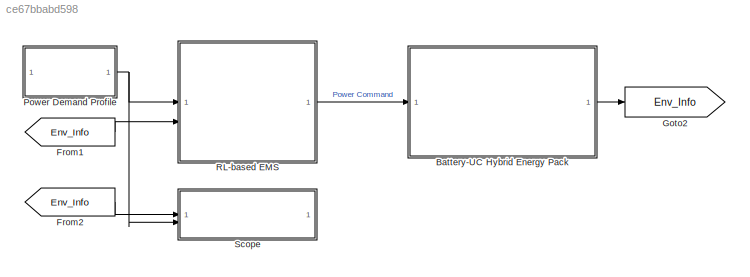
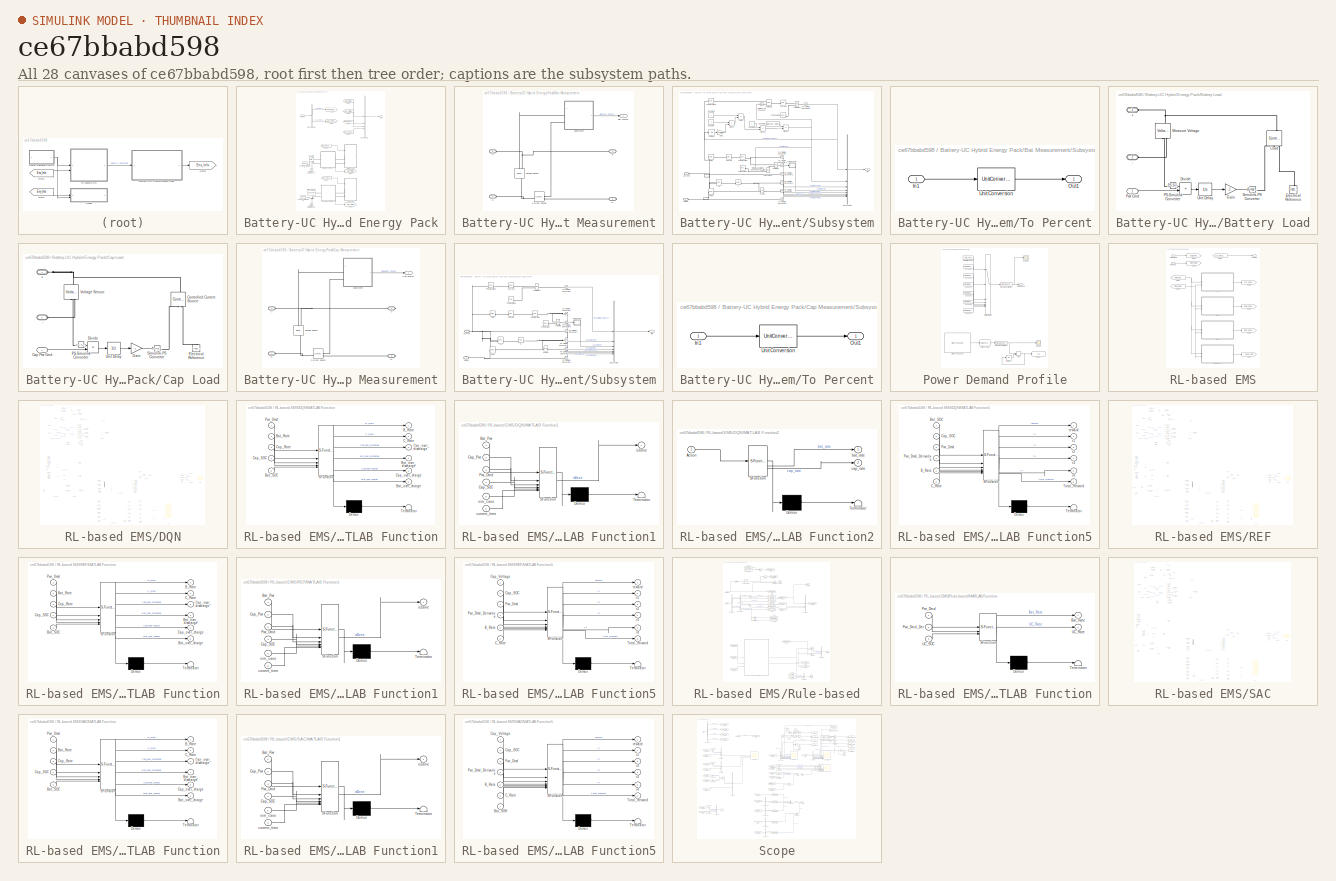
[diagram: thumbnail index - all 28 canvases of the model, root first then tree order]
MODEL slx_ce67bbabd598
KIND model
CONFIG AbsTol = auto
CONFIG EnableMultiTasking = off
CONFIG FixedStep = auto
CONFIG MaxStep = 0.1
CONFIG MinStep = auto
CONFIG RelTol = 1e-3
CONFIG SampleTimeConstraint = Unconstrained
CONFIG SolverName = daessc
CONFIG StartTime = 0.0
CONFIG StopTime = 1800
BLOCK [SubSystem] Battery-UC Hybrid Energy Pack
BLOCK [SubSystem] Battery-UC Hybrid Energy Pack/Bat Measurement
  NameLocation = top
  PortSchema = {"entries":[{"content":{"sides":[{"content":{"connectorIds":["LConn1","LConn2"]},"type":"ConnectorPlacement.EquallySpacedRectSide","uuid":"d922d1f1-019d-451f-8be4-16b01e818775"},{"content":{"connectorIds":["RConn1","RConn2"],"side":"RIGHT"},"type":"ConnectorPlacement.EquallySpacedRectSide","uuid":"6462d40f-4676-4bff-8e25-5b847feb4e24"},{"content":{"side":"TOP"},"type":"ConnectorPlacement.EquallySp...<+395ch>
BLOCK [PMIOPort] Battery-UC Hybrid Energy Pack/Bat Measurement/+1
  Side = Left
BLOCK [PMIOPort] Battery-UC Hybrid Energy Pack/Bat Measurement/+2
  Port = 3
  Side = Right
BLOCK [PMIOPort] Battery-UC Hybrid Energy Pack/Bat Measurement/-1
  Port = 2
  Side = Left
BLOCK [PMIOPort] Battery-UC Hybrid Energy Pack/Bat Measurement/-2
  Port = 4
  Side = Right
BLOCK [Outport] Battery-UC Hybrid Energy Pack/Bat Measurement/Bat Status
BLOCK [Reference] Battery-UC Hybrid Energy Pack/Bat Measurement/Current Sensor  REF=fl_lib/Electrical/Electrical Sensors/Current Sensor
  SourceBlock = fl_lib/Electrical/Electrical Sensors/Current Sensor
  SourceType = Current Sensor
BLOCK [SubSystem] Battery-UC Hybrid Energy Pack/Bat Measurement/Subsystem
BLOCK [BusCreator] Battery-UC Hybrid Energy Pack/Bat Measurement/Subsystem/Bus Creator
  DisplayOption = bar
  InheritFromInputs = on
  Inputs = 8
BLOCK [Reference] Battery-UC Hybrid Energy Pack/Bat Measurement/Subsystem/Charge  REF=fl_lib/Physical Signals/Linear Operators/PS Integrator
  AttributesFormatString = %<x0> [%<x0_unit>]
  SourceBlock = fl_lib/Physical Signals/Linear Operators/PS Integrator
  SourceType = PS Integrator
BLOCK [Reference] Battery-UC Hybrid Energy Pack/Bat Measurement/Subsystem/Charge1  REF=fl_lib/Physical Signals/Linear Operators/PS Integrator
  AttributesFormatString = %<x0> [%<x0_unit>]
  SourceBlock = fl_lib/Physical Signals/Linear Operators/PS Integrator
  SourceType = PS Integrator
BLOCK [Constant] Battery-UC Hybrid Energy Pack/Bat Measurement/Subsystem/Constant
BLOCK [Constant] Battery-UC Hybrid Energy Pack/Bat Measurement/Subsystem/Constant1
BLOCK [Constant] Battery-UC Hybrid Energy Pack/Bat Measurement/Subsystem/Constant2
  Value = Battery.SOH
BLOCK [Constant] Battery-UC Hybrid Energy Pack/Bat Measurement/Subsystem/Constant3
BLOCK [PMIOPort] Battery-UC Hybrid Energy Pack/Bat Measurement/Subsystem/Current
  Port = 2
  Side = Left
BLOCK [Product] Battery-UC Hybrid Energy Pack/Bat Measurement/Subsystem/Divide
  Inputs = */
BLOCK [Reference] Battery-UC Hybrid Energy Pack/Bat Measurement/Subsystem/Gain  REF=fl_lib/Physical Signals/Functions/PS Gain
  AttributesFormatString = %<gain>
  SourceBlock = fl_lib/Physical Signals/Functions/PS Gain
  SourceType = PS Gain
BLOCK [Gain] Battery-UC Hybrid Energy Pack/Bat Measurement/Subsystem/Gain1
  Gain = 0.0005
BLOCK [Reference] Battery-UC Hybrid Energy Pack/Bat Measurement/Subsystem/I^2  REF=fl_lib/Physical Signals/Functions/PS Product
  SourceBlock = fl_lib/Physical Signals/Functions/PS Product
  SourceType = PS Product
BLOCK [Outport] Battery-UC Hybrid Energy Pack/Bat Measurement/Subsystem/Info
BLOCK [Sum] Battery-UC Hybrid Energy Pack/Bat Measurement/Subsystem/Minus
  IconShape = rectangular
BLOCK [Sum] Battery-UC Hybrid Energy Pack/Bat Measurement/Subsystem/Minus1
  IconShape = rectangular
  Inputs = +-
BLOCK [Sum] Battery-UC Hybrid Energy Pack/Bat Measurement/Subsystem/Minus2
  IconShape = rectangular
  Inputs = +-
BLOCK [Reference] Battery-UC Hybrid Energy Pack/Bat Measurement/Subsystem/PS Add  REF=fl_lib/Physical Signals/Functions/PS Add
  SourceBlock = fl_lib/Physical Signals/Functions/PS Add
  SourceType = PS Add
BLOCK [Reference] Battery-UC Hybrid Energy Pack/Bat Measurement/Subsystem/PS Constant  REF=fl_lib/Physical Signals/Sources/PS Constant
  AttributesFormatString = %<constant> [%<constant_unit>]
  NameLocation = left
  SourceBlock = fl_lib/Physical Signals/Sources/PS Constant
  SourceType = PS Constant
BLOCK [Reference] Battery-UC Hybrid Energy Pack/Bat Measurement/Subsystem/PS Constant1  REF=fl_lib/Physical Signals/Sources/PS Constant
  SourceBlock = fl_lib/Physical Signals/Sources/PS Constant
  SourceType = PS Constant
BLOCK [Reference] Battery-UC Hybrid Energy Pack/Bat Measurement/Subsystem/PS Divide  REF=fl_lib/Physical Signals/Functions/PS Divide
  SourceBlock = fl_lib/Physical Signals/Functions/PS Divide
  SourceType = PS Divide
BLOCK [Reference] Battery-UC Hybrid Energy Pack/Bat Measurement/Subsystem/PS Divide1  REF=fl_lib/Physical Signals/Functions/PS Divide
  SourceBlock = fl_lib/Physical Signals/Functions/PS Divide
  SourceType = PS Divide
BLOCK [Reference] Battery-UC Hybrid Energy Pack/Bat Measurement/Subsystem/PS Divide2  REF=fl_lib/Physical Signals/Functions/PS Divide
  SourceBlock = fl_lib/Physical Signals/Functions/PS Divide
  SourceType = PS Divide
BLOCK [Reference] Battery-UC Hybrid Energy Pack/Bat Measurement/Subsystem/PS Product  REF=fl_lib/Physical Signals/Functions/PS Product
  SourceBlock = fl_lib/Physical Signals/Functions/PS Product
  SourceType = PS Product
BLOCK [Reference] Battery-UC Hybrid Energy Pack/Bat Measurement/Subsystem/PS Saturation  REF=fl_lib/Physical Signals/Nonlinear Operators/PS Saturation
  AttributesFormatString = Upper: %<upper_limit>\nLower: %<lower_limit>
  NameLocation = top
  SourceBlock = fl_lib/Physical Signals/Nonlinear Operators/PS Saturation
  SourceType = PS Saturation
BLOCK [Reference] Battery-UC Hybrid Energy Pack/Bat Measurement/Subsystem/PS Saturation2  REF=fl_lib/Physical Signals/Nonlinear Operators/PS Saturation
  SourceBlock = fl_lib/Physical Signals/Nonlinear Operators/PS Saturation
  SourceType = PS Saturation
BLOCK [Reference] Battery-UC Hybrid Energy Pack/Bat Measurement/Subsystem/PS-Simulink Converter  REF=nesl_utility/PS-Simulink
Converter
  AttributesFormatString = %<Unit>
  SourceBlock = nesl_utility/PS-Simulink\nConverter
  SourceType = PS-Simulink\nConverter
BLOCK [Reference] Battery-UC Hybrid Energy Pack/Bat Measurement/Subsystem/PS-Simulink Converter1  REF=nesl_utility/PS-Simulink
Converter
  AttributesFormatString = %<Unit>
  SourceBlock = nesl_utility/PS-Simulink\nConverter
  SourceType = PS-Simulink\nConverter
BLOCK [Reference] Battery-UC Hybrid Energy Pack/Bat Measurement/Subsystem/PS-Simulink Converter2  REF=nesl_utility/PS-Simulink
Converter
  AttributesFormatString = %<Unit>
  SourceBlock = nesl_utility/PS-Simulink\nConverter
  SourceType = PS-Simulink\nConverter
BLOCK [Reference] Battery-UC Hybrid Energy Pack/Bat Measurement/Subsystem/PS-Simulink Converter3  REF=nesl_utility/PS-Simulink
Converter
  AttributesFormatString = %<Unit>
  SourceBlock = nesl_utility/PS-Simulink\nConverter
  SourceType = PS-Simulink\nConverter
BLOCK [Reference] Battery-UC Hybrid Energy Pack/Bat Measurement/Subsystem/PS-Simulink Converter4  REF=nesl_utility/PS-Simulink
Converter
  AttributesFormatString = %<Unit>
  SourceBlock = nesl_utility/PS-Simulink\nConverter
  SourceType = PS-Simulink\nConverter
BLOCK [Reference] Battery-UC Hybrid Energy Pack/Bat Measurement/Subsystem/PS-Simulink Converter5  REF=nesl_utility/PS-Simulink
Converter
  SourceBlock = nesl_utility/PS-Simulink\nConverter
  SourceType = PS-Simulink\nConverter
BLOCK [Reference] Battery-UC Hybrid Energy Pack/Bat Measurement/Subsystem/PS-Simulink Converter6  REF=nesl_utility/PS-Simulink
Converter
  AttributesFormatString = %<Unit>
  SourceBlock = nesl_utility/PS-Simulink\nConverter
  SourceType = PS-Simulink\nConverter
BLOCK [Reference] Battery-UC Hybrid Energy Pack/Bat Measurement/Subsystem/Power  REF=fl_lib/Physical Signals/Functions/PS Product
  SourceBlock = fl_lib/Physical Signals/Functions/PS Product
  SourceType = PS Product
BLOCK [Reference] Battery-UC Hybrid Energy Pack/Bat Measurement/Subsystem/R  REF=fl_lib/Physical Signals/Functions/PS Gain
  AttributesFormatString = %<gain> [%<gain_unit>]
  SourceBlock = fl_lib/Physical Signals/Functions/PS Gain
  SourceType = PS Gain
BLOCK [Reference] Battery-UC Hybrid Energy Pack/Bat Measurement/Subsystem/Simulink-PS Converter  REF=nesl_utility/Simulink-PS
Converter
  SourceBlock = nesl_utility/Simulink-PS\nConverter
  SourceType = Simulink-PS\nConverter
BLOCK [Reference] Battery-UC Hybrid Energy Pack/Bat Measurement/Subsystem/Simulink-PS Converter1  REF=nesl_utility/Simulink-PS
Converter
  SourceBlock = nesl_utility/Simulink-PS\nConverter
  SourceType = Simulink-PS\nConverter
BLOCK [SubSystem] Battery-UC Hybrid Energy Pack/Bat Measurement/Subsystem/To Percent
  ShowPortLabels = none
BLOCK [Inport] Battery-UC Hybrid Energy Pack/Bat Measurement/Subsystem/To Percent/In1
BLOCK [Outport] Battery-UC Hybrid Energy Pack/Bat Measurement/Subsystem/To Percent/Out1
  AttributesFormatString = %<Unit>
  Unit = %
BLOCK [UnitConversion] Battery-UC Hybrid Energy Pack/Bat Measurement/Subsystem/To Percent/Unit Conversion
BLOCK [UnitDelay] Battery-UC Hybrid Energy Pack/Bat Measurement/Subsystem/Unit Delay
  HasFrameUpgradeWarning = on
  SampleTime = -1
BLOCK [PMIOPort] Battery-UC Hybrid Energy Pack/Bat Measurement/Subsystem/Voltage
  Side = Left
BLOCK [Reference] Battery-UC Hybrid Energy Pack/Bat Measurement/Voltage Sensor  REF=fl_lib/Electrical/Electrical Sensors/Voltage Sensor
  NameLocation = right
  SourceBlock = fl_lib/Electrical/Electrical Sensors/Voltage Sensor
  SourceType = Voltage Sensor
BLOCK [SubSystem] Battery-UC Hybrid Energy Pack/Battery Load
  NameLocation = top
BLOCK [PMIOPort] Battery-UC Hybrid Energy Pack/Battery Load/+
  Side = Left
BLOCK [PMIOPort] Battery-UC Hybrid Energy Pack/Battery Load/-
  Port = 2
  Side = Left
BLOCK [Product] Battery-UC Hybrid Energy Pack/Battery Load/Divide
  Inputs = /*
BLOCK [Reference] Battery-UC Hybrid Energy Pack/Battery Load/Electrical Reference  REF=fl_lib/Electrical/Electrical Elements/Electrical Reference
  NameLocation = right
  SourceBlock = fl_lib/Electrical/Electrical Elements/Electrical Reference
  SourceType = Electrical Reference
BLOCK [Gain] Battery-UC Hybrid Energy Pack/Battery Load/Gain
  Gain = -1
BLOCK [Reference] Battery-UC Hybrid Energy Pack/Battery Load/Load  REF=fl_lib/Electrical/Electrical Sources/Controlled Current
Source
  NameLocation = right
  SourceBlock = fl_lib/Electrical/Electrical Sources/Controlled Current\nSource
  SourceType = Controlled Current\nSource
BLOCK [Reference] Battery-UC Hybrid Energy Pack/Battery Load/Measure Voltage  REF=fl_lib/Electrical/Electrical Sensors/Voltage Sensor
  NameLocation = right
  SourceBlock = fl_lib/Electrical/Electrical Sensors/Voltage Sensor
  SourceType = Voltage Sensor
BLOCK [Reference] Battery-UC Hybrid Energy Pack/Battery Load/PS-Simulink Converter  REF=nesl_utility/PS-Simulink
Converter
  SourceBlock = nesl_utility/PS-Simulink\nConverter
  SourceType = PS-Simulink\nConverter
BLOCK [Inport] Battery-UC Hybrid Energy Pack/Battery Load/Pwr Cmd
BLOCK [Reference] Battery-UC Hybrid Energy Pack/Battery Load/Simulink-PS Converter  REF=nesl_utility/Simulink-PS
Converter
  SourceBlock = nesl_utility/Simulink-PS\nConverter
  SourceType = Simulink-PS\nConverter
BLOCK [UnitDelay] Battery-UC Hybrid Energy Pack/Battery Load/Unit Delay
  HasFrameUpgradeWarning = on
  SampleTime = -1
BLOCK [BusCreator] Battery-UC Hybrid Energy Pack/Bus Creator
  DisplayOption = bar
  InheritFromInputs = on
  Inputs = 4
BLOCK [BusSelector] Battery-UC Hybrid Energy Pack/Bus Selector
  OutputSignals = Bat Pwr Cmd,Cap Pwr Cmd
BLOCK [SubSystem] Battery-UC Hybrid Energy Pack/Cap Load
  NameLocation = top
BLOCK [PMIOPort] Battery-UC Hybrid Energy Pack/Cap Load/+
  Side = Left
BLOCK [PMIOPort] Battery-UC Hybrid Energy Pack/Cap Load/-
  Port = 2
  Side = Left
BLOCK [Inport] Battery-UC Hybrid Energy Pack/Cap Load/Cap Pwr Cmd
BLOCK [Reference] Battery-UC Hybrid Energy Pack/Cap Load/Controlled Current Source  REF=fl_lib/Electrical/Electrical Sources/Controlled Current
Source
  NameLocation = right
  SourceBlock = fl_lib/Electrical/Electrical Sources/Controlled Current\nSource
  SourceType = Controlled Current\nSource
BLOCK [Product] Battery-UC Hybrid Energy Pack/Cap Load/Divide
  Inputs = /*
BLOCK [Reference] Battery-UC Hybrid Energy Pack/Cap Load/Electrical Reference  REF=fl_lib/Electrical/Electrical Elements/Electrical Reference
  NameLocation = right
  SourceBlock = fl_lib/Electrical/Electrical Elements/Electrical Reference
  SourceType = Electrical Reference
BLOCK [Gain] Battery-UC Hybrid Energy Pack/Cap Load/Gain
  Gain = -1
BLOCK [Reference] Battery-UC Hybrid Energy Pack/Cap Load/PS-Simulink Converter  REF=nesl_utility/PS-Simulink
Converter
  SourceBlock = nesl_utility/PS-Simulink\nConverter
  SourceType = PS-Simulink\nConverter
BLOCK [Reference] Battery-UC Hybrid Energy Pack/Cap Load/Simulink-PS Converter  REF=nesl_utility/Simulink-PS
Converter
  SourceBlock = nesl_utility/Simulink-PS\nConverter
  SourceType = Simulink-PS\nConverter
BLOCK [UnitDelay] Battery-UC Hybrid Energy Pack/Cap Load/Unit Delay
  HasFrameUpgradeWarning = on
  SampleTime = -1
BLOCK [Reference] Battery-UC Hybrid Energy Pack/Cap Load/Voltage Sensor  REF=fl_lib/Electrical/Electrical Sensors/Voltage Sensor
  NameLocation = right
  SourceBlock = fl_lib/Electrical/Electrical Sensors/Voltage Sensor
  SourceType = Voltage Sensor
BLOCK [SubSystem] Battery-UC Hybrid Energy Pack/Cap Measurement
  NameLocation = top
  PortSchema = {"entries":[{"content":{"sides":[{"content":{"connectorIds":["LConn1","LConn2"]},"type":"ConnectorPlacement.EquallySpacedRectSide","uuid":"d922d1f1-019d-451f-8be4-16b01e818775"},{"content":{"connectorIds":["RConn1","RConn2"],"side":"RIGHT"},"type":"ConnectorPlacement.EquallySpacedRectSide","uuid":"6462d40f-4676-4bff-8e25-5b847feb4e24"},{"content":{"side":"TOP"},"type":"ConnectorPlacement.EquallySp...<+395ch>
BLOCK [PMIOPort] Battery-UC Hybrid Energy Pack/Cap Measurement/+1
  Side = Left
BLOCK [PMIOPort] Battery-UC Hybrid Energy Pack/Cap Measurement/+2
  Port = 3
  Side = Right
BLOCK [PMIOPort] Battery-UC Hybrid Energy Pack/Cap Measurement/-1
  Port = 2
  Side = Left
BLOCK [PMIOPort] Battery-UC Hybrid Energy Pack/Cap Measurement/-2
  Port = 4
  Side = Right
BLOCK [Outport] Battery-UC Hybrid Energy Pack/Cap Measurement/Cap Status
BLOCK [Reference] Battery-UC Hybrid Energy Pack/Cap Measurement/Current Sensor  REF=fl_lib/Electrical/Electrical Sensors/Current Sensor
  SourceBlock = fl_lib/Electrical/Electrical Sensors/Current Sensor
  SourceType = Current Sensor
BLOCK [SubSystem] Battery-UC Hybrid Energy Pack/Cap Measurement/Subsystem
BLOCK [BusCreator] Battery-UC Hybrid Energy Pack/Cap Measurement/Subsystem/Bus Creator
  DisplayOption = bar
  InheritFromInputs = on
  Inputs = 7
BLOCK [Reference] Battery-UC Hybrid Energy Pack/Cap Measurement/Subsystem/Charge  REF=fl_lib/Physical Signals/Linear Operators/PS Integrator
  AttributesFormatString = %<x0> [%<x0_unit>]
  SourceBlock = fl_lib/Physical Signals/Linear Operators/PS Integrator
  SourceType = PS Integrator
BLOCK [Reference] Battery-UC Hybrid Energy Pack/Cap Measurement/Subsystem/Charge1  REF=fl_lib/Physical Signals/Linear Operators/PS Integrator
  AttributesFormatString = %<x0> [%<x0_unit>]
  SourceBlock = fl_lib/Physical Signals/Linear Operators/PS Integrator
  SourceType = PS Integrator
BLOCK [PMIOPort] Battery-UC Hybrid Energy Pack/Cap Measurement/Subsystem/Current
  Port = 2
  Side = Left
BLOCK [Reference] Battery-UC Hybrid Energy Pack/Cap Measurement/Subsystem/Gain  REF=fl_lib/Physical Signals/Functions/PS Gain
  AttributesFormatString = %<gain>
  SourceBlock = fl_lib/Physical Signals/Functions/PS Gain
  SourceType = PS Gain
BLOCK [Reference] Battery-UC Hybrid Energy Pack/Cap Measurement/Subsystem/I^2  REF=fl_lib/Physical Signals/Functions/PS Product
  SourceBlock = fl_lib/Physical Signals/Functions/PS Product
  SourceType = PS Product
BLOCK [Outport] Battery-UC Hybrid Energy Pack/Cap Measurement/Subsystem/Info
BLOCK [Reference] Battery-UC Hybrid Energy Pack/Cap Measurement/Subsystem/PS Add  REF=fl_lib/Physical Signals/Functions/PS Add
  SourceBlock = fl_lib/Physical Signals/Functions/PS Add
  SourceType = PS Add
BLOCK [Reference] Battery-UC Hybrid Energy Pack/Cap Measurement/Subsystem/PS Constant  REF=fl_lib/Physical Signals/Sources/PS Constant
  AttributesFormatString = %<constant> [%<constant_unit>]
  NameLocation = left
  SourceBlock = fl_lib/Physical Signals/Sources/PS Constant
  SourceType = PS Constant
BLOCK [Reference] Battery-UC Hybrid Energy Pack/Cap Measurement/Subsystem/PS Constant1  REF=fl_lib/Physical Signals/Sources/PS Constant
  AttributesFormatString = %<constant> [%<constant_unit>]
  NameLocation = left
  SourceBlock = fl_lib/Physical Signals/Sources/PS Constant
  SourceType = PS Constant
BLOCK [Reference] Battery-UC Hybrid Energy Pack/Cap Measurement/Subsystem/PS Divide  REF=fl_lib/Physical Signals/Functions/PS Divide
  SourceBlock = fl_lib/Physical Signals/Functions/PS Divide
  SourceType = PS Divide
BLOCK [Reference] Battery-UC Hybrid Energy Pack/Cap Measurement/Subsystem/PS Divide2  REF=fl_lib/Physical Signals/Functions/PS Divide
  SourceBlock = fl_lib/Physical Signals/Functions/PS Divide
  SourceType = PS Divide
BLOCK [Reference] Battery-UC Hybrid Energy Pack/Cap Measurement/Subsystem/PS Saturation  REF=fl_lib/Physical Signals/Nonlinear Operators/PS Saturation
  AttributesFormatString = Upper: %<upper_limit>\nLower: %<lower_limit>
  NameLocation = top
  SourceBlock = fl_lib/Physical Signals/Nonlinear Operators/PS Saturation
  SourceType = PS Saturation
BLOCK [Reference] Battery-UC Hybrid Energy Pack/Cap Measurement/Subsystem/PS Saturation2  REF=fl_lib/Physical Signals/Nonlinear Operators/PS Saturation
  SourceBlock = fl_lib/Physical Signals/Nonlinear Operators/PS Saturation
  SourceType = PS Saturation
BLOCK [Reference] Battery-UC Hybrid Energy Pack/Cap Measurement/Subsystem/PS-Simulink Converter  REF=nesl_utility/PS-Simulink
Converter
  AttributesFormatString = %<Unit>
  SourceBlock = nesl_utility/PS-Simulink\nConverter
  SourceType = PS-Simulink\nConverter
BLOCK [Reference] Battery-UC Hybrid Energy Pack/Cap Measurement/Subsystem/PS-Simulink Converter1  REF=nesl_utility/PS-Simulink
Converter
  AttributesFormatString = %<Unit>
  SourceBlock = nesl_utility/PS-Simulink\nConverter
  SourceType = PS-Simulink\nConverter
BLOCK [Reference] Battery-UC Hybrid Energy Pack/Cap Measurement/Subsystem/PS-Simulink Converter2  REF=nesl_utility/PS-Simulink
Converter
  AttributesFormatString = %<Unit>
  SourceBlock = nesl_utility/PS-Simulink\nConverter
  SourceType = PS-Simulink\nConverter
BLOCK [Reference] Battery-UC Hybrid Energy Pack/Cap Measurement/Subsystem/PS-Simulink Converter3  REF=nesl_utility/PS-Simulink
Converter
  AttributesFormatString = %<Unit>
  SourceBlock = nesl_utility/PS-Simulink\nConverter
  SourceType = PS-Simulink\nConverter
BLOCK [Reference] Battery-UC Hybrid Energy Pack/Cap Measurement/Subsystem/PS-Simulink Converter4  REF=nesl_utility/PS-Simulink
Converter
  AttributesFormatString = %<Unit>
  SourceBlock = nesl_utility/PS-Simulink\nConverter
  SourceType = PS-Simulink\nConverter
BLOCK [Reference] Battery-UC Hybrid Energy Pack/Cap Measurement/Subsystem/PS-Simulink Converter5  REF=nesl_utility/PS-Simulink
Converter
  SourceBlock = nesl_utility/PS-Simulink\nConverter
  SourceType = PS-Simulink\nConverter
BLOCK [Reference] Battery-UC Hybrid Energy Pack/Cap Measurement/Subsystem/PS-Simulink Converter6  REF=nesl_utility/PS-Simulink
Converter
  AttributesFormatString = %<Unit>
  SourceBlock = nesl_utility/PS-Simulink\nConverter
  SourceType = PS-Simulink\nConverter
BLOCK [Reference] Battery-UC Hybrid Energy Pack/Cap Measurement/Subsystem/Power  REF=fl_lib/Physical Signals/Functions/PS Product
  SourceBlock = fl_lib/Physical Signals/Functions/PS Product
  SourceType = PS Product
BLOCK [Reference] Battery-UC Hybrid Energy Pack/Cap Measurement/Subsystem/R  REF=fl_lib/Physical Signals/Functions/PS Gain
  AttributesFormatString = %<gain> [%<gain_unit>]
  SourceBlock = fl_lib/Physical Signals/Functions/PS Gain
  SourceType = PS Gain
BLOCK [SubSystem] Battery-UC Hybrid Energy Pack/Cap Measurement/Subsystem/To Percent
  ShowPortLabels = none
BLOCK [Inport] Battery-UC Hybrid Energy Pack/Cap Measurement/Subsystem/To Percent/In1
BLOCK [Outport] Battery-UC Hybrid Energy Pack/Cap Measurement/Subsystem/To Percent/Out1
  AttributesFormatString = %<Unit>
  Unit = %
BLOCK [UnitConversion] Battery-UC Hybrid Energy Pack/Cap Measurement/Subsystem/To Percent/Unit Conversion
BLOCK [PMIOPort] Battery-UC Hybrid Energy Pack/Cap Measurement/Subsystem/Voltage
  Side = Left
BLOCK [Reference] Battery-UC Hybrid Energy Pack/Cap Measurement/Voltage Sensor  REF=fl_lib/Electrical/Electrical Sensors/Voltage Sensor
  NameLocation = right
  SourceBlock = fl_lib/Electrical/Electrical Sensors/Voltage Sensor
  SourceType = Voltage Sensor
BLOCK [Reference] Battery-UC Hybrid Energy Pack/Electrical Reference1  REF=fl_lib/Electrical/Electrical Elements/Electrical Reference
  NameLocation = right
  SourceBlock = fl_lib/Electrical/Electrical Elements/Electrical Reference
  SourceType = Electrical Reference
BLOCK [Reference] Battery-UC Hybrid Energy Pack/Electrical Reference2  REF=fl_lib/Electrical/Electrical Elements/Electrical Reference
  NameLocation = right
  SourceBlock = fl_lib/Electrical/Electrical Elements/Electrical Reference
  SourceType = Electrical Reference
BLOCK [From] Battery-UC Hybrid Energy Pack/From1
  GotoTag = Cap_Pwr_Cmd
BLOCK [From] Battery-UC Hybrid Energy Pack/From2
  GotoTag = Bat_Status
BLOCK [From] Battery-UC Hybrid Energy Pack/From3
  GotoTag = Bat_Pwr_Cmd
BLOCK [From] Battery-UC Hybrid Energy Pack/From4
  GotoTag = Bat_Pwr_Cmd
BLOCK [From] Battery-UC Hybrid Energy Pack/From5
  GotoTag = Cap_Pwr_Cmd
BLOCK [From] Battery-UC Hybrid Energy Pack/From6
  GotoTag = Cap_Status
BLOCK [Goto] Battery-UC Hybrid Energy Pack/Goto
  GotoTag = Bat_Pwr_Cmd
BLOCK [Goto] Battery-UC Hybrid Energy Pack/Goto1
  GotoTag = Cap_Pwr_Cmd
BLOCK [Goto] Battery-UC Hybrid Energy Pack/Goto2
  GotoTag = Bat_Status
BLOCK [Goto] Battery-UC Hybrid Energy Pack/Goto3
  GotoTag = Cap_Status
BLOCK [Reference] Battery-UC Hybrid Energy Pack/HV Battery  REF=batteryecm_lib/Battery
  NameLocation = left
  SourceBlock = batteryecm_lib/Battery
  SourceType = Battery
BLOCK [Outport] Battery-UC Hybrid Energy Pack/Info
BLOCK [Inport] Battery-UC Hybrid Energy Pack/Pwr Cmd
BLOCK [Reference] Battery-UC Hybrid Energy Pack/Solver Configuration  REF=nesl_utility/Solver
Configuration
  SourceBlock = nesl_utility/Solver\nConfiguration
  SourceType = Solver\nConfiguration
BLOCK [Reference] Battery-UC Hybrid Energy Pack/Solver Configuration1  REF=nesl_utility/Solver
Configuration
  SourceBlock = nesl_utility/Solver\nConfiguration
  SourceType = Solver\nConfiguration
BLOCK [Reference] Battery-UC Hybrid Energy Pack/Ultracapacitor  REF=fl_lib/Electrical/Electrical Elements/Capacitor
  NameLocation = left
  SourceBlock = fl_lib/Electrical/Electrical Elements/Capacitor
  SourceType = Capacitor
BLOCK [From] From1
  GotoTag = Env_Info
BLOCK [From] From2
  GotoTag = Env_Info
BLOCK [Goto] Goto2
  GotoTag = Env_Info
BLOCK [SubSystem] Power Demand Profile
BLOCK [FromWorkspace] Power Demand Profile/1022 sec
  Interpolate = off
  OutputAfterFinalValue = Setting to zero
  VariableName = WLTP_Class_1
  ZeroCross = off
BLOCK [FromWorkspace] Power Demand Profile/1369 sec
  Interpolate = off
  OutputAfterFinalValue = Setting to zero
  VariableName = HUDDS
  ZeroCross = off
BLOCK [FromWorkspace] Power Demand Profile/1372 sec
  Interpolate = off
  OutputAfterFinalValue = Setting to zero
  VariableName = FTP72
  ZeroCross = off
BLOCK [FromWorkspace] Power Demand Profile/1477 sec
  Interpolate = off
  OutputAfterFinalValue = Setting to zero
  VariableName = WLTP_Class_2
  ZeroCross = off
BLOCK [FromWorkspace] Power Demand Profile/1800 sec
  Interpolate = off
  OutputAfterFinalValue = Setting to zero
  VariableName = WLTP_Class_3
  ZeroCross = off
BLOCK [FromWorkspace] Power Demand Profile/2474 sec
  Interpolate = off
  OutputAfterFinalValue = Setting to zero
  VariableName = FTP75
  ZeroCross = off
BLOCK [Display] Power Demand Profile/Display
  Decimation = 1
BLOCK [Reference] Power Demand Profile/Drive Cycle Source  REF=autolibshared/Drive Cycle Source
  AttributesFormatString = %<cycleVar> (%<tfinal>)
  LibrarySourceBlock = autolibscenario/Drive Cycle Source
  SourceBlock = autolibshared/Drive Cycle Source
  SourceType = Drive Cycle Source
BLOCK [MinMax] Power Demand Profile/Max
  Function = max
  Inputs = 2
BLOCK [MultiPortSwitch] Power Demand Profile/Multiport Switch
  InputSameDT = off
  Inputs = 6
  SaturateOnIntegerOverflow = off
BLOCK [Outport] Power Demand Profile/Pwr Demand
BLOCK [Scope] Power Demand Profile/Scope
  Floating = off
  NumInputPorts = 1
  ScopeSpecificationString = Simulink.scopes.TimeScopeBlockCfg('CurrentConfiguration', extmgr.ConfigurationSet(extmgr.Configuration('Core','General UI',true),extmgr.Configuration('Core','Source UI',true),extmgr.Configuration('Sources','WiredSimulink',true,'DataLoggingVariableName','Speed_Profile','DataLogging',true,'DataLoggingSaveFormat','StructureWithTime'),extmgr.Configuration('Visuals','Time Domain',true,'SerializedDispla...<+1463ch>
BLOCK [Scope] Power Demand Profile/Scope1
  Floating = off
  NumInputPorts = 1
  ScopeSpecificationString = Simulink.scopes.TimeScopeBlockCfg('CurrentConfiguration', extmgr.ConfigurationSet(extmgr.Configuration('Core','General UI',true),extmgr.Configuration('Core','Source UI',true),extmgr.Configuration('Sources','WiredSimulink',true,'DataLoggingVariableName','Pwr_Dmd','DataLogging',true,'DataLoggingSaveFormat','StructureWithTime'),extmgr.Configuration('Visuals','Time Domain',true,'SerializedDisplays',{s...<+1465ch>
BLOCK [SignalSpecification] Power Demand Profile/Signal Specification
  Unit = W
BLOCK [SignalSpecification] Power Demand Profile/Signal Specification1
  Unit = km/h
BLOCK [Constant] Power Demand Profile/Simulation Case
  Value = sim_case
BLOCK [UnitConversion] Power Demand Profile/Unit Conversion
BLOCK [UnitDelay] Power Demand Profile/Unit Delay
  HasFrameUpgradeWarning = on
  SampleTime = -1
BLOCK [SubSystem] RL-based EMS
BLOCK [SubSystem] RL-based EMS/DQN
  Commented = on
BLOCK [Reference] RL-based EMS/DQN/Agent  REF=rllib/RL Agent
  SourceBlock = rllib/RL Agent
  SourceType = RL Agent
BLOCK [BusCreator] RL-based EMS/DQN/Bus Creator
  DisplayOption = bar
  InheritFromInputs = on
  Inputs = 3
BLOCK [BusCreator] RL-based EMS/DQN/Bus Creator1
  DisplayOption = bar
  InheritFromInputs = on
  Inputs = 2
BLOCK [BusCreator] RL-based EMS/DQN/Bus Creator2
  DisplayOption = bar
  InheritFromInputs = on
  Inputs = 2
BLOCK [BusCreator] RL-based EMS/DQN/Bus Creator3
  DisplayOption = bar
  InheritFromInputs = on
  Inputs = 2
BLOCK [BusCreator] RL-based EMS/DQN/Bus Creator4
  DisplayOption = bar
  InheritFromInputs = on
  Inputs = 2
BLOCK [BusCreator] RL-based EMS/DQN/Bus Creator6
  DisplayOption = bar
  InheritFromInputs = on
  Inputs = 2
BLOCK [BusSelector] RL-based EMS/DQN/Bus Selector
  OutputSignals = Battery Status,Capacitor Status
BLOCK [BusSelector] RL-based EMS/DQN/Bus Selector1
  OutputSignals = HV Battery SOC,HV Battery Power,HV Battery SOH
BLOCK [BusSelector] RL-based EMS/DQN/Bus Selector2
  OutputSignals = Capacitor SOC,Capacitor Power,Capacitor Discharge Cycle
BLOCK [Clock] RL-based EMS/DQN/Clock
BLOCK [Constant] RL-based EMS/DQN/Constant1
  Value = sim_case
BLOCK [Constant] RL-based EMS/DQN/Constant2
  Value = Max_Power
BLOCK [Demux] RL-based EMS/DQN/Demux
  Outputs = 2
BLOCK [Derivative] RL-based EMS/DQN/Derivative
BLOCK [Product] RL-based EMS/DQN/Divide
  Inputs = */
BLOCK [From] RL-based EMS/DQN/From
  GotoTag = Power_Demand
BLOCK [Inport] RL-based EMS/DQN/From Plant
  Port = 2
BLOCK [From] RL-based EMS/DQN/From1
  GotoTag = B_Rate
BLOCK [From] RL-based EMS/DQN/From10
  GotoTag = Bat_Pwr
BLOCK [From] RL-based EMS/DQN/From11
  GotoTag = Cap_Pwr
BLOCK [From] RL-based EMS/DQN/From12
  GotoTag = Power_Demand
BLOCK [From] RL-based EMS/DQN/From13
  GotoTag = isDone
BLOCK [From] RL-based EMS/DQN/From14
  GotoTag = Action
BLOCK [From] RL-based EMS/DQN/From15
  GotoTag = Reward
BLOCK [From] RL-based EMS/DQN/From16
  GotoTag = C_Rate
BLOCK [From] RL-based EMS/DQN/From17
  GotoTag = Bat_SOC
BLOCK [From] RL-based EMS/DQN/From18
  GotoTag = Observation
BLOCK [From] RL-based EMS/DQN/From19
  GotoTag = RL_Pwr_Split
BLOCK [From] RL-based EMS/DQN/From2
  GotoTag = Cap_SOC
BLOCK [From] RL-based EMS/DQN/From20
  GotoTag = Bat_SOC
BLOCK [From] RL-based EMS/DQN/From21
  GotoTag = Pwr_Dmd_Norm
BLOCK [From] RL-based EMS/DQN/From22
  GotoTag = r1
BLOCK [From] RL-based EMS/DQN/From23
  GotoTag = r5
BLOCK [From] RL-based EMS/DQN/From24
  GotoTag = r2
BLOCK [From] RL-based EMS/DQN/From25
  GotoTag = r3
BLOCK [From] RL-based EMS/DQN/From26
  GotoTag = r4
BLOCK [From] RL-based EMS/DQN/From27
  GotoTag = Pwr_Derivative
BLOCK [From] RL-based EMS/DQN/From3
  GotoTag = Power_Demand
BLOCK [From] RL-based EMS/DQN/From31
  GotoTag = B_Rate
BLOCK [From] RL-based EMS/DQN/From32
  GotoTag = C_Rate
BLOCK [From] RL-based EMS/DQN/From4
  GotoTag = RL_Cap_Rate
BLOCK [From] RL-based EMS/DQN/From5
  GotoTag = RL_Bat_Rate
BLOCK [From] RL-based EMS/DQN/From59
  GotoTag = Cap_SOC
BLOCK [From] RL-based EMS/DQN/From6
  GotoTag = Bat_SOC
BLOCK [From] RL-based EMS/DQN/From61
  GotoTag = Power_Demand
BLOCK [From] RL-based EMS/DQN/From7
  GotoTag = Cap_SOC
BLOCK [From] RL-based EMS/DQN/From8
  GotoTag = Cap_SOC
BLOCK [From] RL-based EMS/DQN/From9
  GotoTag = Reward
BLOCK [Gain] RL-based EMS/DQN/Gain
  Gain = 0.01
BLOCK [Gain] RL-based EMS/DQN/Gain1
  Gain = 0.01
BLOCK [Goto] RL-based EMS/DQN/Goto
  GotoTag = Power_Demand
BLOCK [Goto] RL-based EMS/DQN/Goto1
  GotoTag = Bat_SOC
BLOCK [Goto] RL-based EMS/DQN/Goto10
  GotoTag = Bat_over_discharge
BLOCK [Goto] RL-based EMS/DQN/Goto11
  GotoTag = Cap_over_charge
BLOCK [Goto] RL-based EMS/DQN/Goto12
  GotoTag = Bat_over_charge
BLOCK [Goto] RL-based EMS/DQN/Goto13
  GotoTag = Cap_Discharge_Avg
BLOCK [Goto] RL-based EMS/DQN/Goto14
  GotoTag = Bat_SOH
BLOCK [Goto] RL-based EMS/DQN/Goto15
  GotoTag = Cap_Cycle
BLOCK [Goto] RL-based EMS/DQN/Goto16
  GotoTag = Cap_Charge_Avg
BLOCK [Goto] RL-based EMS/DQN/Goto17
  GotoTag = r3
BLOCK [Goto] RL-based EMS/DQN/Goto18
  GotoTag = r4
BLOCK [Goto] RL-based EMS/DQN/Goto19
  GotoTag = Pwr_Dmd_Norm
BLOCK [Goto] RL-based EMS/DQN/Goto2
  GotoTag = Cap_SOC
BLOCK [Goto] RL-based EMS/DQN/Goto20
  GotoTag = r5
BLOCK [Goto] RL-based EMS/DQN/Goto21
  GotoTag = Pwr_Derivative
BLOCK [Goto] RL-based EMS/DQN/Goto24
  GotoTag = r2
BLOCK [Goto] RL-based EMS/DQN/Goto25
  GotoTag = B_Rate
BLOCK [Goto] RL-based EMS/DQN/Goto26
  GotoTag = C_Rate
BLOCK [Goto] RL-based EMS/DQN/Goto28
  GotoTag = Reward
BLOCK [Goto] RL-based EMS/DQN/Goto29
  GotoTag = r1
BLOCK [Goto] RL-based EMS/DQN/Goto3
  GotoTag = Observation
BLOCK [Goto] RL-based EMS/DQN/Goto30
  GotoTag = RL_Bat_Rate
BLOCK [Goto] RL-based EMS/DQN/Goto31
  GotoTag = RL_Cap_Rate
BLOCK [Goto] RL-based EMS/DQN/Goto4
  GotoTag = Bat_Pwr
BLOCK [Goto] RL-based EMS/DQN/Goto5
  GotoTag = Cap_Pwr
BLOCK [Goto] RL-based EMS/DQN/Goto6
  GotoTag = RL_Pwr_Split
BLOCK [Goto] RL-based EMS/DQN/Goto7
  GotoTag = isDone
BLOCK [Goto] RL-based EMS/DQN/Goto8
  GotoTag = Action
BLOCK [Goto] RL-based EMS/DQN/Goto9
  GotoTag = Cap_over_discharge
BLOCK [SubSystem] RL-based EMS/DQN/MATLAB Function
  ErrorFcn = Stateflow.Translate.translate
  LibrarySourceBlock = simulink/User-Defined\nFunctions/MATLAB Function
  PermitHierarchicalResolution = ExplicitOnly
  SFBlockType = MATLAB Function
  TreatAsAtomicUnit = on
BLOCK [Demux] RL-based EMS/DQN/MATLAB Function/ Demux 
  Outputs = 1
BLOCK [S-Function] RL-based EMS/DQN/MATLAB Function/ SFunction 
  EnableBusSupport = on
  FunctionName = sf_sfun
  PortCounts = [5 7]
  SFcnIsStateOwnerBlock = off
  SFunctionDeploymentMode = off
  Tag = Stateflow S-Function 1
BLOCK [Terminator] RL-based EMS/DQN/MATLAB Function/ Terminator 
BLOCK [Outport] RL-based EMS/DQN/MATLAB Function/B_Rate
BLOCK [Inport] RL-based EMS/DQN/MATLAB Function/Bat_Rate
  Port = 2
BLOCK [Inport] RL-based EMS/DQN/MATLAB Function/Bat_SOC
  Port = 5
BLOCK [Outport] RL-based EMS/DQN/MATLAB Function/Bat_over_charge
  Port = 6
BLOCK [Outport] RL-based EMS/DQN/MATLAB Function/Bat_over_discharge
  Port = 4
BLOCK [Outport] RL-based EMS/DQN/MATLAB Function/C_Rate
  Port = 2
BLOCK [Inport] RL-based EMS/DQN/MATLAB Function/Cap_Rate
  Port = 3
BLOCK [Inport] RL-based EMS/DQN/MATLAB Function/Cap_SOC
  Port = 4
BLOCK [Outport] RL-based EMS/DQN/MATLAB Function/Cap_over_charge
  Port = 5
BLOCK [Outport] RL-based EMS/DQN/MATLAB Function/Cap_over_discharge
  Port = 3
BLOCK [Inport] RL-based EMS/DQN/MATLAB Function/Pwr_Dmd
BLOCK [SubSystem] RL-based EMS/DQN/MATLAB Function1
  ErrorFcn = Stateflow.Translate.translate
  LibrarySourceBlock = simulink/User-Defined\nFunctions/MATLAB Function
  PermitHierarchicalResolution = ExplicitOnly
  SFBlockType = MATLAB Function
  TreatAsAtomicUnit = on
BLOCK [Demux] RL-based EMS/DQN/MATLAB Function1/ Demux 
  Outputs = 1
BLOCK [S-Function] RL-based EMS/DQN/MATLAB Function1/ SFunction 
  EnableBusSupport = on
  FunctionName = sf_sfun
  PortCounts = [6 2]
  SFcnIsStateOwnerBlock = off
  SFunctionDeploymentMode = off
  Tag = Stateflow S-Function 2
BLOCK [Terminator] RL-based EMS/DQN/MATLAB Function1/ Terminator 
BLOCK [Inport] RL-based EMS/DQN/MATLAB Function1/Bat_Pwr
BLOCK [Inport] RL-based EMS/DQN/MATLAB Function1/Cap_Pwr
  Port = 2
BLOCK [Inport] RL-based EMS/DQN/MATLAB Function1/Cap_SOC
  Port = 4
BLOCK [Inport] RL-based EMS/DQN/MATLAB Function1/Pwr_Dmd
  Port = 3
BLOCK [Inport] RL-based EMS/DQN/MATLAB Function1/current_time
  Port = 6
BLOCK [Outport] RL-based EMS/DQN/MATLAB Function1/isDone
BLOCK [Inport] RL-based EMS/DQN/MATLAB Function1/sim_case
  Port = 5
BLOCK [SubSystem] RL-based EMS/DQN/MATLAB Function2
  ErrorFcn = Stateflow.Translate.translate
  LibrarySourceBlock = simulink/User-Defined\nFunctions/MATLAB Function
  PermitHierarchicalResolution = ExplicitOnly
  SFBlockType = MATLAB Function
  TreatAsAtomicUnit = on
BLOCK [Demux] RL-based EMS/DQN/MATLAB Function2/ Demux 
  Outputs = 1
BLOCK [S-Function] RL-based EMS/DQN/MATLAB Function2/ SFunction 
  EnableBusSupport = on
  FunctionName = sf_sfun
  PortCounts = [1 3]
  SFcnIsStateOwnerBlock = off
  SFunctionDeploymentMode = off
  Tag = Stateflow S-Function 4
BLOCK [Terminator] RL-based EMS/DQN/MATLAB Function2/ Terminator 
BLOCK [Inport] RL-based EMS/DQN/MATLAB Function2/Action
BLOCK [Outport] RL-based EMS/DQN/MATLAB Function2/bat_rate
BLOCK [Outport] RL-based EMS/DQN/MATLAB Function2/cap_rate
  Port = 2
BLOCK [SubSystem] RL-based EMS/DQN/MATLAB Function5
  ErrorFcn = Stateflow.Translate.translate
  LibrarySourceBlock = simulink/User-Defined\nFunctions/MATLAB Function
  PermitHierarchicalResolution = ExplicitOnly
  SFBlockType = MATLAB Function
  TreatAsAtomicUnit = on
BLOCK [Demux] RL-based EMS/DQN/MATLAB Function5/ Demux 
  Outputs = 1
BLOCK [S-Function] RL-based EMS/DQN/MATLAB Function5/ SFunction 
  EnableBusSupport = on
  FunctionName = sf_sfun
  PortCounts = [6 7]
  SFcnIsStateOwnerBlock = off
  SFunctionDeploymentMode = off
  Tag = Stateflow S-Function 3
BLOCK [Terminator] RL-based EMS/DQN/MATLAB Function5/ Terminator 
BLOCK [Inport] RL-based EMS/DQN/MATLAB Function5/B_Rate
  Port = 5
BLOCK [Inport] RL-based EMS/DQN/MATLAB Function5/Bat_SOC
BLOCK [Inport] RL-based EMS/DQN/MATLAB Function5/C_Rate
  Port = 6
BLOCK [Inport] RL-based EMS/DQN/MATLAB Function5/Cap_SOC
  Port = 2
BLOCK [Inport] RL-based EMS/DQN/MATLAB Function5/Pwr_Dmd
  Port = 3
BLOCK [Inport] RL-based EMS/DQN/MATLAB Function5/Pwr_Dmd_Derivative
  Port = 4
BLOCK [Outport] RL-based EMS/DQN/MATLAB Function5/Total_Reward
  Port = 6
BLOCK [Outport] RL-based EMS/DQN/MATLAB Function5/r1
  Port = 2
BLOCK [Outport] RL-based EMS/DQN/MATLAB Function5/r2
  Port = 3
BLOCK [Outport] RL-based EMS/DQN/MATLAB Function5/r3
  Port = 4
BLOCK [Outport] RL-based EMS/DQN/MATLAB Function5/r4
  Port = 5
BLOCK [Outport] RL-based EMS/DQN/MATLAB Function5/reward
BLOCK [Reference] RL-based EMS/DQN/Moving Average1  REF=dspstat3/Moving
Average
  SourceBlock = dspstat3/Moving\nAverage
  SourceType = dsp.simulink.MovingAverage
BLOCK [Product] RL-based EMS/DQN/Product
BLOCK [Product] RL-based EMS/DQN/Product1
BLOCK [Outport] RL-based EMS/DQN/Pwr Cmd
BLOCK [Scope] RL-based EMS/DQN/Pwr Split
  Floating = off
  NumInputPorts = 2
  ScopeSpecificationString = Simulink.scopes.TimeScopeBlockCfg('CurrentConfiguration', extmgr.ConfigurationSet(extmgr.Configuration('Core','General UI',true),extmgr.Configuration('Core','Source UI',true),extmgr.Configuration('Sources','WiredSimulink',true,'DataLoggingVariableName','ScopeData2'),extmgr.Configuration('Visuals','Time Domain',true,'SerializedDisplays',{struct('MinYLimReal','-0.125','MaxYLimReal','1.125','YLabelRe...<+2101ch>
BLOCK [Saturate] RL-based EMS/DQN/Saturation1
  LowerLimit = 0
  UpperLimit = 200000
BLOCK [Saturate] RL-based EMS/DQN/Saturation2
  LowerLimit = 0
  UpperLimit = 200000
BLOCK [Saturate] RL-based EMS/DQN/Saturation3
  LowerLimit = -200000
  UpperLimit = 0
BLOCK [Scope] RL-based EMS/DQN/Scope
  Floating = off
  NumInputPorts = 1
  ScopeSpecificationString = Simulink.scopes.TimeScopeBlockCfg('CurrentConfiguration', extmgr.ConfigurationSet(extmgr.Configuration('Core','General UI',true),extmgr.Configuration('Core','Source UI',true),extmgr.Configuration('Sources','WiredSimulink',true,'DataLoggingVariableName','ScopeData1'),extmgr.Configuration('Visuals','Time Domain',true,'SerializedDisplays',{struct('MinYLimReal','-75227.23587','MaxYLimReal','84712.6885...<+1447ch>
BLOCK [Scope] RL-based EMS/DQN/Scope1
  Floating = off
  NumInputPorts = 6
  ScopeSpecificationString = Simulink.scopes.TimeScopeBlockCfg('CurrentConfiguration', extmgr.ConfigurationSet(extmgr.Configuration('Core','General UI',true),extmgr.Configuration('Core','Source UI',true),extmgr.Configuration('Sources','WiredSimulink',true,'DataLoggingVariableName','ScopeData1'),extmgr.Configuration('Visuals','Time Domain',true,'SerializedDisplays',{struct('MinYLimReal','0.92694','MaxYLimReal','1.00812','YLabe...<+4908ch>
BLOCK [Scope] RL-based EMS/DQN/Scope4
  Floating = off
  NumInputPorts = 1
  ScopeSpecificationString = Simulink.scopes.TimeScopeBlockCfg('CurrentConfiguration', extmgr.ConfigurationSet(extmgr.Configuration('Core','General UI',true),extmgr.Configuration('Core','Source UI',true),extmgr.Configuration('Sources','WiredSimulink',true,'DataLoggingVariableName','ScopeData4'),extmgr.Configuration('Visuals','Time Domain',true,'SerializedDisplays',{struct('MinYLimReal','-0.75227','MaxYLimReal','0.84713','YLab...<+1420ch>  <repeated x3 — deduplicated; at blocks: Scope4>
BLOCK [Inport] RL-based EMS/DQN/Total Pwr Cmd
BLOCK [UnitDelay] RL-based EMS/DQN/Unit Delay1
  HasFrameUpgradeWarning = on
  SampleTime = -1
BLOCK [Inport] RL-based EMS/From Plant
  Port = 2
BLOCK [From] RL-based EMS/From1
  GotoTag = From_Plant
BLOCK [From] RL-based EMS/From2
  GotoTag = Total_Pwr_Cmd
BLOCK [From] RL-based EMS/From3
  GotoTag = SAC_Pwr_Cmd
BLOCK [Goto] RL-based EMS/Goto1
  GotoTag = From_Plant
BLOCK [Goto] RL-based EMS/Goto2
  Commented = on
  GotoTag = DQN_Pwr_Cmd
BLOCK [Goto] RL-based EMS/Goto3
  Commented = on
  GotoTag = REF_Pwr_Cmd
BLOCK [Goto] RL-based EMS/Goto4
  Commented = on
  GotoTag = RULE_Cmd
BLOCK [Goto] RL-based EMS/Goto5
  GotoTag = SAC_Pwr_Cmd
BLOCK [Goto] RL-based EMS/Goto7
  GotoTag = Total_Pwr_Cmd
BLOCK [Outport] RL-based EMS/Pwr Cmd
BLOCK [SubSystem] RL-based EMS/REF
  Commented = on
BLOCK [Reference] RL-based EMS/REF/Agent  REF=rllib/RL Agent
  SourceBlock = rllib/RL Agent
  SourceType = RL Agent
BLOCK [BusCreator] RL-based EMS/REF/Bus Creator
  DisplayOption = bar
  InheritFromInputs = on
  Inputs = 3
BLOCK [BusCreator] RL-based EMS/REF/Bus Creator1
  DisplayOption = bar
  InheritFromInputs = on
  Inputs = 2
BLOCK [BusCreator] RL-based EMS/REF/Bus Creator2
  DisplayOption = bar
  InheritFromInputs = on
  Inputs = 2
BLOCK [BusCreator] RL-based EMS/REF/Bus Creator3
  DisplayOption = bar
  InheritFromInputs = on
  Inputs = 2
BLOCK [BusCreator] RL-based EMS/REF/Bus Creator4
  DisplayOption = bar
  InheritFromInputs = on
  Inputs = 2
BLOCK [BusCreator] RL-based EMS/REF/Bus Creator6
  DisplayOption = bar
  InheritFromInputs = on
  Inputs = 2
BLOCK [BusSelector] RL-based EMS/REF/Bus Selector
  OutputSignals = Battery Status,Capacitor Status
BLOCK [BusSelector] RL-based EMS/REF/Bus Selector1
  OutputSignals = HV Battery SOC,HV Battery Power,HV Battery SOH
BLOCK [BusSelector] RL-based EMS/REF/Bus Selector2
  OutputSignals = Capacitor SOC,Capacitor Power,Capacitor Discharge Cycle,Capacitor Voltage
BLOCK [Clock] RL-based EMS/REF/Clock
BLOCK [Constant] RL-based EMS/REF/Constant
BLOCK [Constant] RL-based EMS/REF/Constant1
  Value = sim_case
BLOCK [Constant] RL-based EMS/REF/Constant2
  Value = Max_Power
BLOCK [Demux] RL-based EMS/REF/Demux
  Outputs = 2
BLOCK [Derivative] RL-based EMS/REF/Derivative
BLOCK [Product] RL-based EMS/REF/Divide
  Inputs = */
BLOCK [From] RL-based EMS/REF/From
  GotoTag = Power_Demand
BLOCK [Inport] RL-based EMS/REF/From Plant
  Port = 2
BLOCK [From] RL-based EMS/REF/From1
  GotoTag = B_Rate
BLOCK [From] RL-based EMS/REF/From10
  GotoTag = Bat_Pwr
BLOCK [From] RL-based EMS/REF/From11
  GotoTag = Cap_Pwr
BLOCK [From] RL-based EMS/REF/From12
  GotoTag = Power_Demand
BLOCK [From] RL-based EMS/REF/From13
  GotoTag = isDone
BLOCK [From] RL-based EMS/REF/From14
  GotoTag = Action
BLOCK [From] RL-based EMS/REF/From15
  GotoTag = Reward
BLOCK [From] RL-based EMS/REF/From16
  GotoTag = C_Rate
BLOCK [From] RL-based EMS/REF/From17
  GotoTag = Bat_SOC
BLOCK [From] RL-based EMS/REF/From18
  GotoTag = Observation
BLOCK [From] RL-based EMS/REF/From19
  GotoTag = RL_Pwr_Split
BLOCK [From] RL-based EMS/REF/From2
  GotoTag = Cap_SOC
BLOCK [From] RL-based EMS/REF/From21
  GotoTag = Pwr_Dmd_Norm
BLOCK [From] RL-based EMS/REF/From22
  GotoTag = r1
BLOCK [From] RL-based EMS/REF/From23
  GotoTag = r5
BLOCK [From] RL-based EMS/REF/From24
  GotoTag = r2
BLOCK [From] RL-based EMS/REF/From25
  GotoTag = r3
BLOCK [From] RL-based EMS/REF/From26
  GotoTag = r4
BLOCK [From] RL-based EMS/REF/From27
  GotoTag = Pwr_Derivative
BLOCK [From] RL-based EMS/REF/From28
  GotoTag = Cap_Voltage
BLOCK [From] RL-based EMS/REF/From3
  GotoTag = Power_Demand
BLOCK [From] RL-based EMS/REF/From31
  GotoTag = B_Rate
BLOCK [From] RL-based EMS/REF/From32
  GotoTag = C_Rate
BLOCK [From] RL-based EMS/REF/From4
  GotoTag = RL_Cap_Rate
BLOCK [From] RL-based EMS/REF/From5
  GotoTag = RL_Bat_Rate
BLOCK [From] RL-based EMS/REF/From59
  GotoTag = Cap_SOC
BLOCK [From] RL-based EMS/REF/From6
  GotoTag = Bat_SOC
BLOCK [From] RL-based EMS/REF/From61
  GotoTag = Power_Demand
BLOCK [From] RL-based EMS/REF/From7
  GotoTag = Cap_SOC
BLOCK [From] RL-based EMS/REF/From8
  GotoTag = Cap_SOC
BLOCK [From] RL-based EMS/REF/From9
  GotoTag = Reward
BLOCK [Gain] RL-based EMS/REF/Gain
  Gain = 0.01
BLOCK [Gain] RL-based EMS/REF/Gain1
  Gain = 0.01
BLOCK [Goto] RL-based EMS/REF/Goto
  GotoTag = Power_Demand
BLOCK [Goto] RL-based EMS/REF/Goto1
  GotoTag = Bat_SOC
BLOCK [Goto] RL-based EMS/REF/Goto10
  GotoTag = Bat_over_discharge
BLOCK [Goto] RL-based EMS/REF/Goto11
  GotoTag = Cap_over_charge
BLOCK [Goto] RL-based EMS/REF/Goto12
  GotoTag = Bat_over_charge
BLOCK [Goto] RL-based EMS/REF/Goto13
  GotoTag = Cap_Discharge_Avg
BLOCK [Goto] RL-based EMS/REF/Goto14
  GotoTag = Bat_SOH
BLOCK [Goto] RL-based EMS/REF/Goto15
  GotoTag = Cap_Cycle
BLOCK [Goto] RL-based EMS/REF/Goto16
  GotoTag = Cap_Charge_Avg
BLOCK [Goto] RL-based EMS/REF/Goto17
  GotoTag = r3
BLOCK [Goto] RL-based EMS/REF/Goto18
  GotoTag = r4
BLOCK [Goto] RL-based EMS/REF/Goto19
  GotoTag = Pwr_Dmd_Norm
BLOCK [Goto] RL-based EMS/REF/Goto2
  GotoTag = Cap_SOC
BLOCK [Goto] RL-based EMS/REF/Goto20
  GotoTag = r5
BLOCK [Goto] RL-based EMS/REF/Goto21
  GotoTag = Pwr_Derivative
BLOCK [Goto] RL-based EMS/REF/Goto22
  GotoTag = Cap_Voltage
BLOCK [Goto] RL-based EMS/REF/Goto24
  GotoTag = r2
BLOCK [Goto] RL-based EMS/REF/Goto25
  GotoTag = B_Rate
BLOCK [Goto] RL-based EMS/REF/Goto26
  GotoTag = C_Rate
BLOCK [Goto] RL-based EMS/REF/Goto28
  GotoTag = Reward
BLOCK [Goto] RL-based EMS/REF/Goto29
  GotoTag = r1
BLOCK [Goto] RL-based EMS/REF/Goto3
  GotoTag = Observation
BLOCK [Goto] RL-based EMS/REF/Goto30
  GotoTag = RL_Bat_Rate
BLOCK [Goto] RL-based EMS/REF/Goto31
  GotoTag = RL_Cap_Rate
BLOCK [Goto] RL-based EMS/REF/Goto4
  GotoTag = Bat_Pwr
BLOCK [Goto] RL-based EMS/REF/Goto5
  GotoTag = Cap_Pwr
BLOCK [Goto] RL-based EMS/REF/Goto6
  GotoTag = RL_Pwr_Split
BLOCK [Goto] RL-based EMS/REF/Goto7
  GotoTag = isDone
BLOCK [Goto] RL-based EMS/REF/Goto8
  GotoTag = Action
BLOCK [Goto] RL-based EMS/REF/Goto9
  GotoTag = Cap_over_discharge
BLOCK [SubSystem] RL-based EMS/REF/MATLAB Function
  ErrorFcn = Stateflow.Translate.translate
  LibrarySourceBlock = simulink/User-Defined\nFunctions/MATLAB Function
  PermitHierarchicalResolution = ExplicitOnly
  SFBlockType = MATLAB Function
  TreatAsAtomicUnit = on
BLOCK [Demux] RL-based EMS/REF/MATLAB Function/ Demux 
  Outputs = 1
BLOCK [S-Function] RL-based EMS/REF/MATLAB Function/ SFunction 
  EnableBusSupport = on
  FunctionName = sf_sfun
  PortCounts = [5 7]
  SFcnIsStateOwnerBlock = off
  SFunctionDeploymentMode = off
  Tag = Stateflow S-Function 5
BLOCK [Terminator] RL-based EMS/REF/MATLAB Function/ Terminator 
BLOCK [Outport] RL-based EMS/REF/MATLAB Function/B_Rate
BLOCK [Inport] RL-based EMS/REF/MATLAB Function/Bat_Rate
  Port = 2
BLOCK [Inport] RL-based EMS/REF/MATLAB Function/Bat_SOC
  Port = 5
BLOCK [Outport] RL-based EMS/REF/MATLAB Function/Bat_over_charge
  Port = 6
BLOCK [Outport] RL-based EMS/REF/MATLAB Function/Bat_over_discharge
  Port = 4
BLOCK [Outport] RL-based EMS/REF/MATLAB Function/C_Rate
  Port = 2
BLOCK [Inport] RL-based EMS/REF/MATLAB Function/Cap_Rate
  Port = 3
BLOCK [Inport] RL-based EMS/REF/MATLAB Function/Cap_SOC
  Port = 4
BLOCK [Outport] RL-based EMS/REF/MATLAB Function/Cap_over_charge
  Port = 5
BLOCK [Outport] RL-based EMS/REF/MATLAB Function/Cap_over_discharge
  Port = 3
BLOCK [Inport] RL-based EMS/REF/MATLAB Function/Pwr_Dmd
BLOCK [SubSystem] RL-based EMS/REF/MATLAB Function1
  ErrorFcn = Stateflow.Translate.translate
  LibrarySourceBlock = simulink/User-Defined\nFunctions/MATLAB Function
  PermitHierarchicalResolution = ExplicitOnly
  SFBlockType = MATLAB Function
  TreatAsAtomicUnit = on
BLOCK [Demux] RL-based EMS/REF/MATLAB Function1/ Demux 
  Outputs = 1
BLOCK [S-Function] RL-based EMS/REF/MATLAB Function1/ SFunction 
  EnableBusSupport = on
  FunctionName = sf_sfun
  PortCounts = [6 2]
  SFcnIsStateOwnerBlock = off
  SFunctionDeploymentMode = off
  Tag = Stateflow S-Function 7
BLOCK [Terminator] RL-based EMS/REF/MATLAB Function1/ Terminator 
BLOCK [Inport] RL-based EMS/REF/MATLAB Function1/Bat_Pwr
BLOCK [Inport] RL-based EMS/REF/MATLAB Function1/Cap_Pwr
  Port = 2
BLOCK [Inport] RL-based EMS/REF/MATLAB Function1/Cap_SOC
  Port = 4
BLOCK [Inport] RL-based EMS/REF/MATLAB Function1/Pwr_Dmd
  Port = 3
BLOCK [Inport] RL-based EMS/REF/MATLAB Function1/current_time
  Port = 6
BLOCK [Outport] RL-based EMS/REF/MATLAB Function1/isDone
BLOCK [Inport] RL-based EMS/REF/MATLAB Function1/sim_case
  Port = 5
BLOCK [SubSystem] RL-based EMS/REF/MATLAB Function5
  ErrorFcn = Stateflow.Translate.translate
  LibrarySourceBlock = simulink/User-Defined\nFunctions/MATLAB Function
  PermitHierarchicalResolution = ExplicitOnly
  SFBlockType = MATLAB Function
  TreatAsAtomicUnit = on
BLOCK [Demux] RL-based EMS/REF/MATLAB Function5/ Demux 
  Outputs = 1
BLOCK [S-Function] RL-based EMS/REF/MATLAB Function5/ SFunction 
  EnableBusSupport = on
  FunctionName = sf_sfun
  PortCounts = [6 7]
  SFcnIsStateOwnerBlock = off
  SFunctionDeploymentMode = off
  Tag = Stateflow S-Function 8
BLOCK [Terminator] RL-based EMS/REF/MATLAB Function5/ Terminator 
BLOCK [Inport] RL-based EMS/REF/MATLAB Function5/B_Rate
  Port = 5
BLOCK [Inport] RL-based EMS/REF/MATLAB Function5/C_Rate
  Port = 6
BLOCK [Inport] RL-based EMS/REF/MATLAB Function5/Cap_SOC
  Port = 2
BLOCK [Inport] RL-based EMS/REF/MATLAB Function5/Cap_Voltage
BLOCK [Inport] RL-based EMS/REF/MATLAB Function5/Pwr_Dmd
  Port = 3
BLOCK [Inport] RL-based EMS/REF/MATLAB Function5/Pwr_Dmd_Derivative
  Port = 4
BLOCK [Outport] RL-based EMS/REF/MATLAB Function5/Total_Reward
  Port = 6
BLOCK [Outport] RL-based EMS/REF/MATLAB Function5/r1
  Port = 2
BLOCK [Outport] RL-based EMS/REF/MATLAB Function5/r2
  Port = 3
BLOCK [Outport] RL-based EMS/REF/MATLAB Function5/r3
  Port = 4
BLOCK [Outport] RL-based EMS/REF/MATLAB Function5/r4
  Port = 5
BLOCK [Outport] RL-based EMS/REF/MATLAB Function5/reward
BLOCK [Sum] RL-based EMS/REF/Minus
  IconShape = rectangular
  Inputs = +-
BLOCK [Reference] RL-based EMS/REF/Moving Average1  REF=dspstat3/Moving
Average
  SourceBlock = dspstat3/Moving\nAverage
  SourceType = dsp.simulink.MovingAverage
BLOCK [Product] RL-based EMS/REF/Product
BLOCK [Product] RL-based EMS/REF/Product1
BLOCK [Outport] RL-based EMS/REF/Pwr Cmd
BLOCK [Scope] RL-based EMS/REF/Pwr Split
  Floating = off
  NumInputPorts = 2
  ScopeSpecificationString = Simulink.scopes.TimeScopeBlockCfg('CurrentConfiguration', extmgr.ConfigurationSet(extmgr.Configuration('Core','General UI',true),extmgr.Configuration('Core','Source UI',true),extmgr.Configuration('Sources','WiredSimulink',true,'DataLoggingVariableName','ScopeData2'),extmgr.Configuration('Visuals','Time Domain',true,'SerializedDisplays',{struct('MinYLimReal','-0.123','MaxYLimReal','1.123','YLabelRe...<+2097ch>
BLOCK [Saturate] RL-based EMS/REF/Saturation1
  LowerLimit = 0
  UpperLimit = 200000
BLOCK [Saturate] RL-based EMS/REF/Saturation2
  LowerLimit = 0
  UpperLimit = 200000
BLOCK [Saturate] RL-based EMS/REF/Saturation3
  LowerLimit = -200000
  UpperLimit = 0
BLOCK [Scope] RL-based EMS/REF/Scope
  Floating = off
  NumInputPorts = 1
  ScopeSpecificationString = Simulink.scopes.TimeScopeBlockCfg('CurrentConfiguration', extmgr.ConfigurationSet(extmgr.Configuration('Core','General UI',true),extmgr.Configuration('Core','Source UI',true),extmgr.Configuration('Sources','WiredSimulink',true,'DataLoggingVariableName','ScopeData1'),extmgr.Configuration('Visuals','Time Domain',true,'SerializedDisplays',{struct('MinYLimReal','-75227.23587','MaxYLimReal','84712.6885...<+1418ch>
BLOCK [Scope] RL-based EMS/REF/Scope1
  Floating = off
  NumInputPorts = 6
  ScopeSpecificationString = Simulink.scopes.TimeScopeBlockCfg('CurrentConfiguration', extmgr.ConfigurationSet(extmgr.Configuration('Core','General UI',true),extmgr.Configuration('Core','Source UI',true),extmgr.Configuration('Sources','WiredSimulink',true,'DataLoggingVariableName','ScopeData1'),extmgr.Configuration('Visuals','Time Domain',true,'SerializedDisplays',{struct('MinYLimReal','0.73813','MaxYLimReal','1.0291','YLabel...<+4906ch>
BLOCK [Scope] RL-based EMS/REF/Scope4
  Floating = off
  NumInputPorts = 1
BLOCK [Inport] RL-based EMS/REF/Total Pwr Cmd
BLOCK [UnitDelay] RL-based EMS/REF/Unit Delay1
  HasFrameUpgradeWarning = on
  SampleTime = -1
BLOCK [SubSystem] RL-based EMS/Rule-based
  Commented = on
BLOCK [BusCreator] RL-based EMS/Rule-based/Bus Creator
  DisplayOption = bar
  InheritFromInputs = on
  Inputs = 3
BLOCK [BusCreator] RL-based EMS/Rule-based/Bus Creator1
  DisplayOption = bar
  InheritFromInputs = on
  Inputs = 2
BLOCK [BusCreator] RL-based EMS/Rule-based/Bus Creator2
  DisplayOption = bar
  InheritFromInputs = on
  Inputs = 2
BLOCK [BusCreator] RL-based EMS/Rule-based/Bus Creator3
  DisplayOption = bar
  InheritFromInputs = on
  Inputs = 2
BLOCK [BusSelector] RL-based EMS/Rule-based/Bus Selector
  OutputSignals = Battery Status,Capacitor Status
BLOCK [BusSelector] RL-based EMS/Rule-based/Bus Selector1
  OutputSignals = HV Battery SOC,HV Battery Power,HV Battery SOH
BLOCK [BusSelector] RL-based EMS/Rule-based/Bus Selector2
  OutputSignals = Capacitor SOC,Capacitor Power,Capacitor Discharge Cycle
BLOCK [Constant] RL-based EMS/Rule-based/Constant2
  Value = Max_Power
BLOCK [Derivative] RL-based EMS/Rule-based/Derivative
BLOCK [Product] RL-based EMS/Rule-based/Divide
  Inputs = */
BLOCK [From] RL-based EMS/Rule-based/From
  GotoTag = Power_Demand
BLOCK [Inport] RL-based EMS/Rule-based/From Plant
  Port = 2
BLOCK [From] RL-based EMS/Rule-based/From1
  GotoTag = Power_Demand
BLOCK [From] RL-based EMS/Rule-based/From17
  GotoTag = Bat_SOC
BLOCK [From] RL-based EMS/Rule-based/From2
  GotoTag = Cap_SOC
BLOCK [From] RL-based EMS/Rule-based/From21
  GotoTag = Pwr_Dmd_Norm
BLOCK [From] RL-based EMS/Rule-based/From3
  GotoTag = Power_Demand
BLOCK [From] RL-based EMS/Rule-based/From4
  GotoTag = Pwr_Derivative
BLOCK [From] RL-based EMS/Rule-based/From5
  GotoTag = Cap_SOC
BLOCK [From] RL-based EMS/Rule-based/From6
  GotoTag = B_Rate
BLOCK [From] RL-based EMS/Rule-based/From7
  GotoTag = C_Rate
BLOCK [Gain] RL-based EMS/Rule-based/Gain
  Gain = 0.01
BLOCK [Gain] RL-based EMS/Rule-based/Gain1
  Gain = 0.01
BLOCK [Goto] RL-based EMS/Rule-based/Goto
  GotoTag = Power_Demand
BLOCK [Goto] RL-based EMS/Rule-based/Goto1
  GotoTag = Bat_SOC
BLOCK [Goto] RL-based EMS/Rule-based/Goto13
  GotoTag = Cap_Discharge_Avg
BLOCK [Goto] RL-based EMS/Rule-based/Goto14
  GotoTag = Bat_SOH
BLOCK [Goto] RL-based EMS/Rule-based/Goto15
  GotoTag = Cap_Cycle
BLOCK [Goto] RL-based EMS/Rule-based/Goto16
  GotoTag = Cap_Charge_Avg
BLOCK [Goto] RL-based EMS/Rule-based/Goto19
  GotoTag = Pwr_Dmd_Norm
BLOCK [Goto] RL-based EMS/Rule-based/Goto2
  GotoTag = Cap_SOC
BLOCK [Goto] RL-based EMS/Rule-based/Goto21
  GotoTag = Pwr_Derivative
BLOCK [Goto] RL-based EMS/Rule-based/Goto25
  GotoTag = B_Rate
BLOCK [Goto] RL-based EMS/Rule-based/Goto26
  GotoTag = C_Rate
BLOCK [Goto] RL-based EMS/Rule-based/Goto3
  GotoTag = Observation
BLOCK [Goto] RL-based EMS/Rule-based/Goto4
  GotoTag = Bat_Pwr
BLOCK [Goto] RL-based EMS/Rule-based/Goto5
  GotoTag = Cap_Pwr
BLOCK [SubSystem] RL-based EMS/Rule-based/MATLAB Function
  ErrorFcn = Stateflow.Translate.translate
  LibrarySourceBlock = simulink/User-Defined\nFunctions/MATLAB Function
  PermitHierarchicalResolution = ExplicitOnly
  SFBlockType = MATLAB Function
  TreatAsAtomicUnit = on
BLOCK [Demux] RL-based EMS/Rule-based/MATLAB Function/ Demux 
  Outputs = 1
BLOCK [S-Function] RL-based EMS/Rule-based/MATLAB Function/ SFunction 
  EnableBusSupport = on
  FunctionName = sf_sfun
  PortCounts = [3 3]
  SFcnIsStateOwnerBlock = off
  SFunctionDeploymentMode = off
  Tag = Stateflow S-Function 9
BLOCK [Terminator] RL-based EMS/Rule-based/MATLAB Function/ Terminator 
BLOCK [Outport] RL-based EMS/Rule-based/MATLAB Function/Bat_Rate
BLOCK [Inport] RL-based EMS/Rule-based/MATLAB Function/Pwr_Dmd
BLOCK [Inport] RL-based EMS/Rule-based/MATLAB Function/Pwr_Dmd_Der
  Port = 2
BLOCK [Outport] RL-based EMS/Rule-based/MATLAB Function/UC_Rate
  Port = 2
BLOCK [Inport] RL-based EMS/Rule-based/MATLAB Function/UC_SOC
  Port = 3
BLOCK [Reference] RL-based EMS/Rule-based/Moving Average1  REF=dspstat3/Moving
Average
  SourceBlock = dspstat3/Moving\nAverage
  SourceType = dsp.simulink.MovingAverage
BLOCK [Product] RL-based EMS/Rule-based/Product
BLOCK [Product] RL-based EMS/Rule-based/Product1
BLOCK [Outport] RL-based EMS/Rule-based/Pwr Cmd
BLOCK [Saturate] RL-based EMS/Rule-based/Saturation1
  LowerLimit = 0
  UpperLimit = 200000
BLOCK [Saturate] RL-based EMS/Rule-based/Saturation2
  LowerLimit = 0
  UpperLimit = 200000
BLOCK [Saturate] RL-based EMS/Rule-based/Saturation3
  LowerLimit = -200000
  UpperLimit = 0
BLOCK [Scope] RL-based EMS/Rule-based/Scope
  Floating = off
  NumInputPorts = 1
  ScopeSpecificationString = Simulink.scopes.TimeScopeBlockCfg('CurrentConfiguration', extmgr.ConfigurationSet(extmgr.Configuration('Core','General UI',true),extmgr.Configuration('Core','Source UI',true),extmgr.Configuration('Sources','WiredSimulink',true,'DataLoggingVariableName','ScopeData1'),extmgr.Configuration('Visuals','Time Domain',true,'SerializedDisplays',{struct('MinYLimReal','-75227.23587','MaxYLimReal','84712.6885...<+1418ch>
BLOCK [Scope] RL-based EMS/Rule-based/Scope1
  Floating = off
  NumInputPorts = 1
  ScopeSpecificationString = Simulink.scopes.TimeScopeBlockCfg('CurrentConfiguration', extmgr.ConfigurationSet(extmgr.Configuration('Core','General UI',true),extmgr.Configuration('Core','Source UI',true),extmgr.Configuration('Sources','WiredSimulink',true,'DataLoggingVariableName','ScopeData1'),extmgr.Configuration('Visuals','Time Domain',true,'SerializedDisplays',{struct('MinYLimReal','-0.125','MaxYLimReal','1.125','YLabelRe...<+1396ch>
BLOCK [Scope] RL-based EMS/Rule-based/Scope4
  Floating = off
  NumInputPorts = 1
BLOCK [Inport] RL-based EMS/Rule-based/Total Pwr Cmd
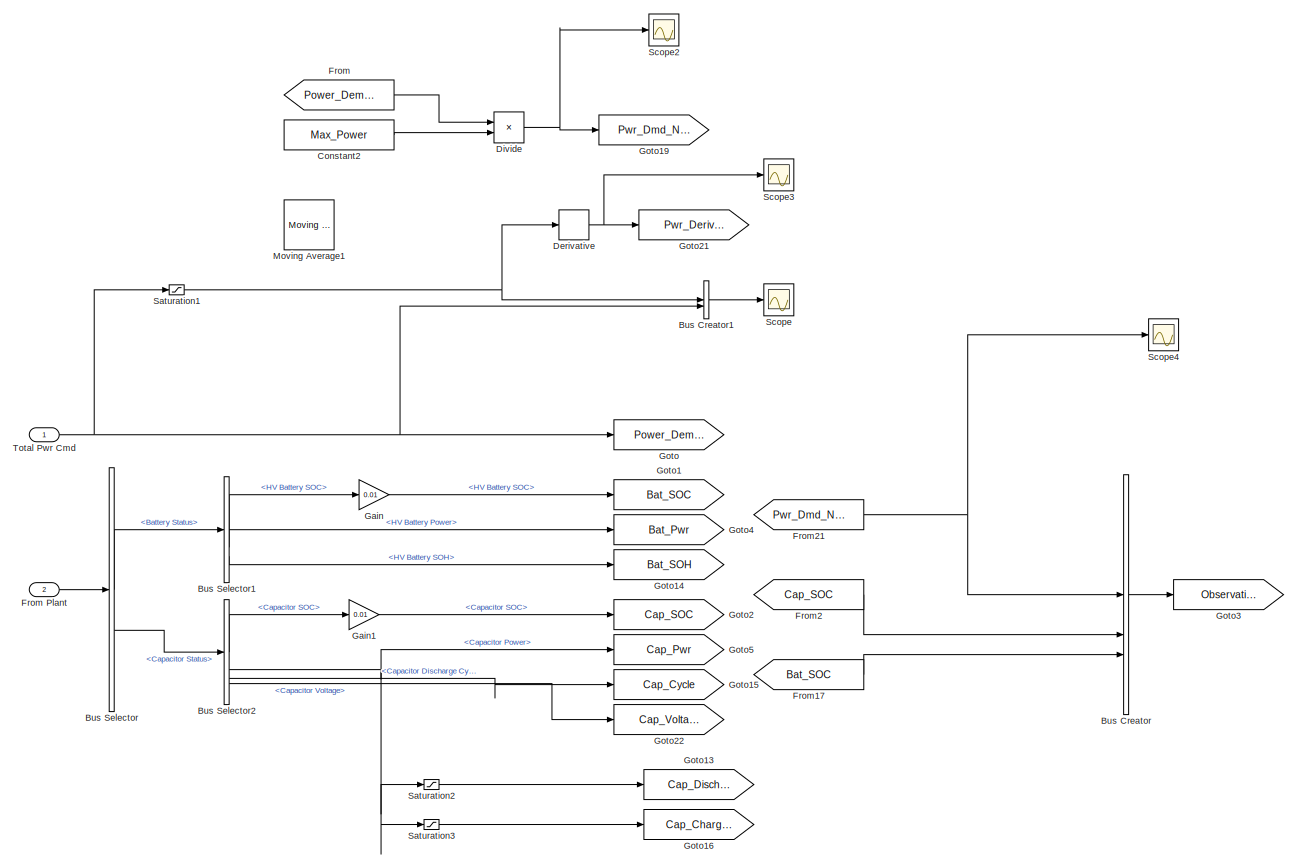
[diagram: RL-based EMS/SAC - part 1/6, top left region]
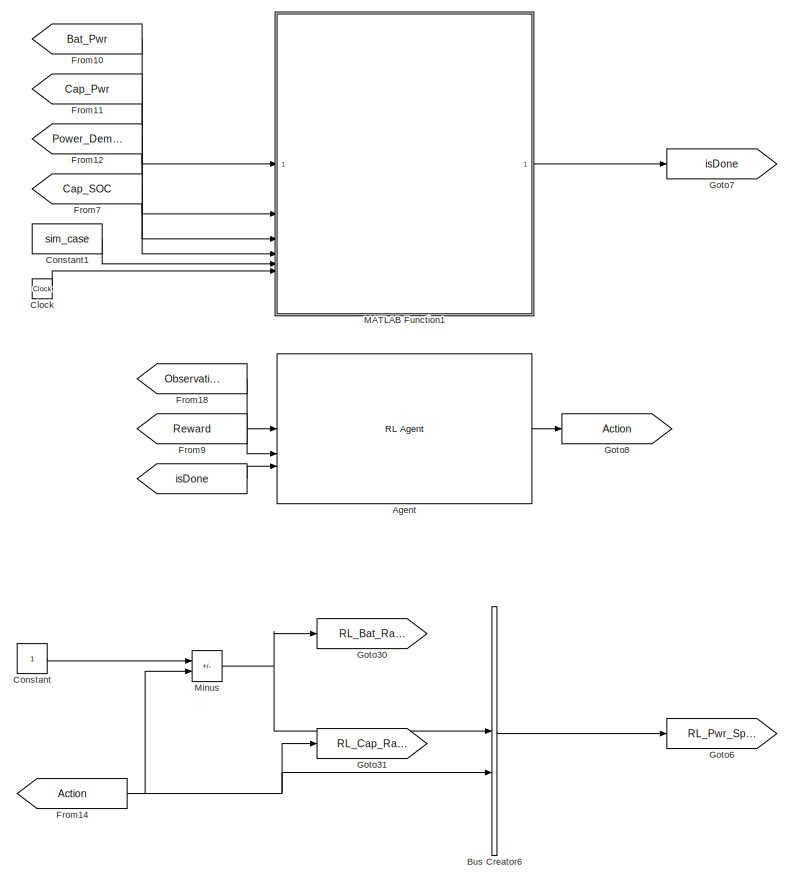
[diagram: RL-based EMS/SAC - part 2/6, middle left region]
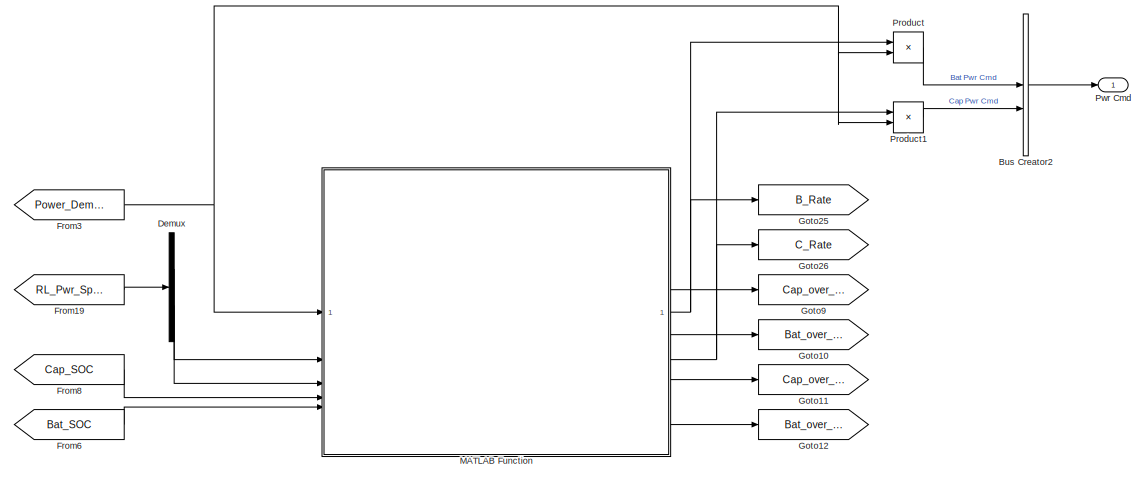
[diagram: RL-based EMS/SAC - part 3/6, central region]
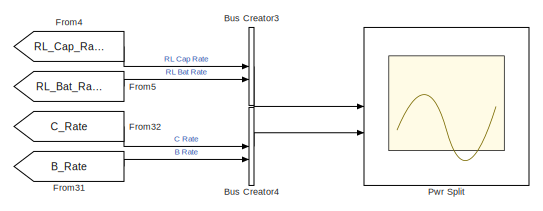
[diagram: RL-based EMS/SAC - part 4/6, middle right region]
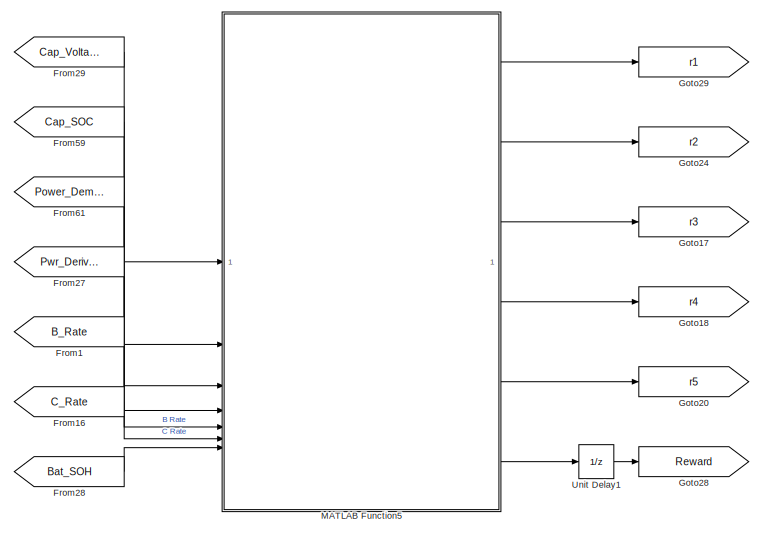
[diagram: RL-based EMS/SAC - part 5/6, bottom center region]
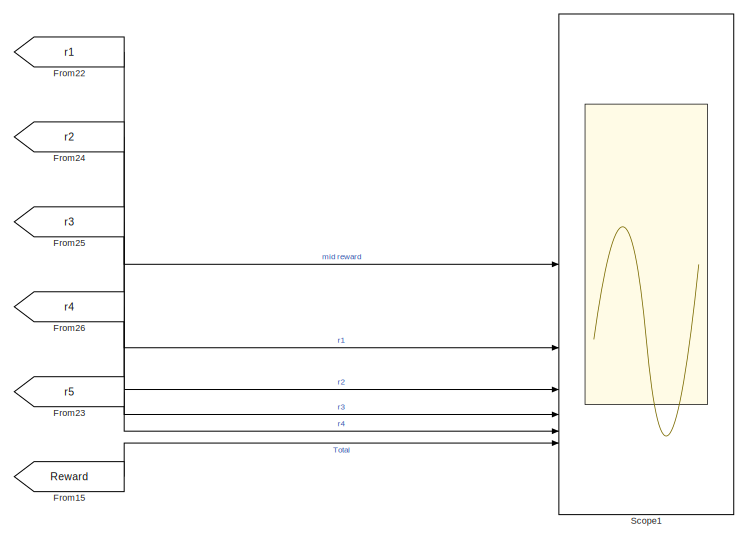
[diagram: RL-based EMS/SAC - part 6/6, bottom right region]
BLOCK [SubSystem] RL-based EMS/SAC
BLOCK [From] RL-based EMS/SAC/ 
  GotoTag = isDone
BLOCK [Reference] RL-based EMS/SAC/Agent  REF=rllib/RL Agent
  SourceBlock = rllib/RL Agent
  SourceType = RL Agent
BLOCK [BusCreator] RL-based EMS/SAC/Bus Creator
  DisplayOption = bar
  InheritFromInputs = on
  Inputs = 3
BLOCK [BusCreator] RL-based EMS/SAC/Bus Creator1
  DisplayOption = bar
  InheritFromInputs = on
  Inputs = 2
BLOCK [BusCreator] RL-based EMS/SAC/Bus Creator2
  DisplayOption = bar
  InheritFromInputs = on
  Inputs = 2
BLOCK [BusCreator] RL-based EMS/SAC/Bus Creator3
  DisplayOption = bar
  InheritFromInputs = on
  Inputs = 2
BLOCK [BusCreator] RL-based EMS/SAC/Bus Creator4
  DisplayOption = bar
  InheritFromInputs = on
  Inputs = 2
BLOCK [BusCreator] RL-based EMS/SAC/Bus Creator6
  DisplayOption = bar
  InheritFromInputs = on
  Inputs = 2
BLOCK [BusSelector] RL-based EMS/SAC/Bus Selector
  OutputSignals = Battery Status,Capacitor Status
BLOCK [BusSelector] RL-based EMS/SAC/Bus Selector1
  OutputSignals = HV Battery SOC,HV Battery Power,HV Battery SOH
BLOCK [BusSelector] RL-based EMS/SAC/Bus Selector2
  OutputSignals = Capacitor SOC,Capacitor Power,Capacitor Discharge Cycle,Capacitor Voltage
BLOCK [Clock] RL-based EMS/SAC/Clock
BLOCK [Constant] RL-based EMS/SAC/Constant
BLOCK [Constant] RL-based EMS/SAC/Constant1
  Value = sim_case
BLOCK [Constant] RL-based EMS/SAC/Constant2
  Value = Max_Power
BLOCK [Demux] RL-based EMS/SAC/Demux
  Outputs = 2
BLOCK [Derivative] RL-based EMS/SAC/Derivative
BLOCK [Product] RL-based EMS/SAC/Divide
  Inputs = */
BLOCK [From] RL-based EMS/SAC/From
  GotoTag = Power_Demand
BLOCK [Inport] RL-based EMS/SAC/From Plant
  Port = 2
BLOCK [From] RL-based EMS/SAC/From1
  GotoTag = B_Rate
BLOCK [From] RL-based EMS/SAC/From10
  GotoTag = Bat_Pwr
BLOCK [From] RL-based EMS/SAC/From11
  GotoTag = Cap_Pwr
BLOCK [From] RL-based EMS/SAC/From12
  GotoTag = Power_Demand
BLOCK [From] RL-based EMS/SAC/From14
  GotoTag = Action
BLOCK [From] RL-based EMS/SAC/From15
  GotoTag = Reward
BLOCK [From] RL-based EMS/SAC/From16
  GotoTag = C_Rate
BLOCK [From] RL-based EMS/SAC/From17
  GotoTag = Bat_SOC
BLOCK [From] RL-based EMS/SAC/From18
  GotoTag = Observation
BLOCK [From] RL-based EMS/SAC/From19
  GotoTag = RL_Pwr_Split
BLOCK [From] RL-based EMS/SAC/From2
  GotoTag = Cap_SOC
BLOCK [From] RL-based EMS/SAC/From21
  GotoTag = Pwr_Dmd_Norm
BLOCK [From] RL-based EMS/SAC/From22
  GotoTag = r1
BLOCK [From] RL-based EMS/SAC/From23
  GotoTag = r5
BLOCK [From] RL-based EMS/SAC/From24
  GotoTag = r2
BLOCK [From] RL-based EMS/SAC/From25
  GotoTag = r3
BLOCK [From] RL-based EMS/SAC/From26
  GotoTag = r4
BLOCK [From] RL-based EMS/SAC/From27
  GotoTag = Pwr_Derivative
BLOCK [From] RL-based EMS/SAC/From28
  GotoTag = Bat_SOH
BLOCK [From] RL-based EMS/SAC/From29
  GotoTag = Cap_Voltage
BLOCK [From] RL-based EMS/SAC/From3
  GotoTag = Power_Demand
BLOCK [From] RL-based EMS/SAC/From31
  GotoTag = B_Rate
BLOCK [From] RL-based EMS/SAC/From32
  GotoTag = C_Rate
BLOCK [From] RL-based EMS/SAC/From4
  GotoTag = RL_Cap_Rate
BLOCK [From] RL-based EMS/SAC/From5
  GotoTag = RL_Bat_Rate
BLOCK [From] RL-based EMS/SAC/From59
  GotoTag = Cap_SOC
BLOCK [From] RL-based EMS/SAC/From6
  GotoTag = Bat_SOC
BLOCK [From] RL-based EMS/SAC/From61
  GotoTag = Power_Demand
BLOCK [From] RL-based EMS/SAC/From7
  GotoTag = Cap_SOC
BLOCK [From] RL-based EMS/SAC/From8
  GotoTag = Cap_SOC
BLOCK [From] RL-based EMS/SAC/From9
  GotoTag = Reward
BLOCK [Gain] RL-based EMS/SAC/Gain
  Gain = 0.01
BLOCK [Gain] RL-based EMS/SAC/Gain1
  Gain = 0.01
BLOCK [Goto] RL-based EMS/SAC/Goto
  GotoTag = Power_Demand
BLOCK [Goto] RL-based EMS/SAC/Goto1
  GotoTag = Bat_SOC
BLOCK [Goto] RL-based EMS/SAC/Goto10
  GotoTag = Bat_over_discharge
BLOCK [Goto] RL-based EMS/SAC/Goto11
  GotoTag = Cap_over_charge
BLOCK [Goto] RL-based EMS/SAC/Goto12
  GotoTag = Bat_over_charge
BLOCK [Goto] RL-based EMS/SAC/Goto13
  GotoTag = Cap_Discharge_Avg
BLOCK [Goto] RL-based EMS/SAC/Goto14
  GotoTag = Bat_SOH
BLOCK [Goto] RL-based EMS/SAC/Goto15
  GotoTag = Cap_Cycle
BLOCK [Goto] RL-based EMS/SAC/Goto16
  GotoTag = Cap_Charge_Avg
BLOCK [Goto] RL-based EMS/SAC/Goto17
  GotoTag = r3
BLOCK [Goto] RL-based EMS/SAC/Goto18
  GotoTag = r4
BLOCK [Goto] RL-based EMS/SAC/Goto19
  GotoTag = Pwr_Dmd_Norm
BLOCK [Goto] RL-based EMS/SAC/Goto2
  GotoTag = Cap_SOC
BLOCK [Goto] RL-based EMS/SAC/Goto20
  GotoTag = r5
BLOCK [Goto] RL-based EMS/SAC/Goto21
  GotoTag = Pwr_Derivative
BLOCK [Goto] RL-based EMS/SAC/Goto22
  GotoTag = Cap_Voltage
BLOCK [Goto] RL-based EMS/SAC/Goto24
  GotoTag = r2
BLOCK [Goto] RL-based EMS/SAC/Goto25
  GotoTag = B_Rate
BLOCK [Goto] RL-based EMS/SAC/Goto26
  GotoTag = C_Rate
BLOCK [Goto] RL-based EMS/SAC/Goto28
  GotoTag = Reward
BLOCK [Goto] RL-based EMS/SAC/Goto29
  GotoTag = r1
BLOCK [Goto] RL-based EMS/SAC/Goto3
  GotoTag = Observation
BLOCK [Goto] RL-based EMS/SAC/Goto30
  GotoTag = RL_Bat_Rate
BLOCK [Goto] RL-based EMS/SAC/Goto31
  GotoTag = RL_Cap_Rate
BLOCK [Goto] RL-based EMS/SAC/Goto4
  GotoTag = Bat_Pwr
BLOCK [Goto] RL-based EMS/SAC/Goto5
  GotoTag = Cap_Pwr
BLOCK [Goto] RL-based EMS/SAC/Goto6
  GotoTag = RL_Pwr_Split
BLOCK [Goto] RL-based EMS/SAC/Goto7
  GotoTag = isDone
BLOCK [Goto] RL-based EMS/SAC/Goto8
  GotoTag = Action
BLOCK [Goto] RL-based EMS/SAC/Goto9
  GotoTag = Cap_over_discharge
BLOCK [SubSystem] RL-based EMS/SAC/MATLAB Function
  ErrorFcn = Stateflow.Translate.translate
  LibrarySourceBlock = simulink/User-Defined\nFunctions/MATLAB Function
  PermitHierarchicalResolution = ExplicitOnly
  SFBlockType = MATLAB Function
  TreatAsAtomicUnit = on
BLOCK [Demux] RL-based EMS/SAC/MATLAB Function/ Demux 
  Outputs = 1
BLOCK [S-Function] RL-based EMS/SAC/MATLAB Function/ SFunction 
  EnableBusSupport = on
  FunctionName = sf_sfun
  PortCounts = [5 7]
  SFcnIsStateOwnerBlock = off
  SFunctionDeploymentMode = off
  Tag = Stateflow S-Function 6
BLOCK [Terminator] RL-based EMS/SAC/MATLAB Function/ Terminator 
BLOCK [Outport] RL-based EMS/SAC/MATLAB Function/B_Rate
BLOCK [Inport] RL-based EMS/SAC/MATLAB Function/Bat_Rate
  Port = 2
BLOCK [Inport] RL-based EMS/SAC/MATLAB Function/Bat_SOC
  Port = 5
BLOCK [Outport] RL-based EMS/SAC/MATLAB Function/Bat_over_charge
  Port = 6
BLOCK [Outport] RL-based EMS/SAC/MATLAB Function/Bat_over_discharge
  Port = 4
BLOCK [Outport] RL-based EMS/SAC/MATLAB Function/C_Rate
  Port = 2
BLOCK [Inport] RL-based EMS/SAC/MATLAB Function/Cap_Rate
  Port = 3
BLOCK [Inport] RL-based EMS/SAC/MATLAB Function/Cap_SOC
  Port = 4
BLOCK [Outport] RL-based EMS/SAC/MATLAB Function/Cap_over_charge
  Port = 5
BLOCK [Outport] RL-based EMS/SAC/MATLAB Function/Cap_over_discharge
  Port = 3
BLOCK [Inport] RL-based EMS/SAC/MATLAB Function/Pwr_Dmd
BLOCK [SubSystem] RL-based EMS/SAC/MATLAB Function1
  ErrorFcn = Stateflow.Translate.translate
  LibrarySourceBlock = simulink/User-Defined\nFunctions/MATLAB Function
  PermitHierarchicalResolution = ExplicitOnly
  SFBlockType = MATLAB Function
  TreatAsAtomicUnit = on
BLOCK [Demux] RL-based EMS/SAC/MATLAB Function1/ Demux 
  Outputs = 1
BLOCK [S-Function] RL-based EMS/SAC/MATLAB Function1/ SFunction 
  EnableBusSupport = on
  FunctionName = sf_sfun
  PortCounts = [6 2]
  SFcnIsStateOwnerBlock = off
  SFunctionDeploymentMode = off
  Tag = Stateflow S-Function 12
BLOCK [Terminator] RL-based EMS/SAC/MATLAB Function1/ Terminator 
BLOCK [Inport] RL-based EMS/SAC/MATLAB Function1/Bat_Pwr
BLOCK [Inport] RL-based EMS/SAC/MATLAB Function1/Cap_Pwr
  Port = 2
BLOCK [Inport] RL-based EMS/SAC/MATLAB Function1/Cap_SOC
  Port = 4
BLOCK [Inport] RL-based EMS/SAC/MATLAB Function1/Pwr_Dmd
  Port = 3
BLOCK [Inport] RL-based EMS/SAC/MATLAB Function1/current_time
  Port = 6
BLOCK [Outport] RL-based EMS/SAC/MATLAB Function1/isDone
BLOCK [Inport] RL-based EMS/SAC/MATLAB Function1/sim_case
  Port = 5
BLOCK [SubSystem] RL-based EMS/SAC/MATLAB Function5
  ErrorFcn = Stateflow.Translate.translate
  LibrarySourceBlock = simulink/User-Defined\nFunctions/MATLAB Function
  PermitHierarchicalResolution = ExplicitOnly
  SFBlockType = MATLAB Function
  TreatAsAtomicUnit = on
BLOCK [Demux] RL-based EMS/SAC/MATLAB Function5/ Demux 
  Outputs = 1
BLOCK [S-Function] RL-based EMS/SAC/MATLAB Function5/ SFunction 
  EnableBusSupport = on
  FunctionName = sf_sfun
  PortCounts = [7 7]
  SFcnIsStateOwnerBlock = off
  SFunctionDeploymentMode = off
  Tag = Stateflow S-Function 13
BLOCK [Terminator] RL-based EMS/SAC/MATLAB Function5/ Terminator 
BLOCK [Inport] RL-based EMS/SAC/MATLAB Function5/B_Rate
  Port = 5
BLOCK [Inport] RL-based EMS/SAC/MATLAB Function5/Bat_SOH
  Port = 7
BLOCK [Inport] RL-based EMS/SAC/MATLAB Function5/C_Rate
  Port = 6
BLOCK [Inport] RL-based EMS/SAC/MATLAB Function5/Cap_SOC
  Port = 2
BLOCK [Inport] RL-based EMS/SAC/MATLAB Function5/Cap_Voltage
BLOCK [Inport] RL-based EMS/SAC/MATLAB Function5/Pwr_Dmd
  Port = 3
BLOCK [Inport] RL-based EMS/SAC/MATLAB Function5/Pwr_Dmd_Derivative
  Port = 4
BLOCK [Outport] RL-based EMS/SAC/MATLAB Function5/Total_Reward
  Port = 6
BLOCK [Outport] RL-based EMS/SAC/MATLAB Function5/r1
  Port = 2
BLOCK [Outport] RL-based EMS/SAC/MATLAB Function5/r2
  Port = 3
BLOCK [Outport] RL-based EMS/SAC/MATLAB Function5/r3
  Port = 4
BLOCK [Outport] RL-based EMS/SAC/MATLAB Function5/r4
  Port = 5
BLOCK [Outport] RL-based EMS/SAC/MATLAB Function5/reward
BLOCK [Sum] RL-based EMS/SAC/Minus
  IconShape = rectangular
  Inputs = +-
BLOCK [Reference] RL-based EMS/SAC/Moving Average1  REF=dspstat3/Moving
Average
  Commented = on
  SourceBlock = dspstat3/Moving\nAverage
  SourceType = dsp.simulink.MovingAverage
BLOCK [Product] RL-based EMS/SAC/Product
BLOCK [Product] RL-based EMS/SAC/Product1
BLOCK [Outport] RL-based EMS/SAC/Pwr Cmd
BLOCK [Scope] RL-based EMS/SAC/Pwr Split
  Floating = off
  NumInputPorts = 2
  ScopeSpecificationString = Simulink.scopes.TimeScopeBlockCfg('CurrentConfiguration', extmgr.ConfigurationSet(extmgr.Configuration('Core','General UI',true),extmgr.Configuration('Core','Source UI',true),extmgr.Configuration('Sources','WiredSimulink',true,'DataLoggingVariableName','ScopeData2'),extmgr.Configuration('Visuals','Time Domain',true,'SerializedDisplays',{struct('MinYLimReal','-0.12394','MaxYLimReal','1.12394','YLab...<+2113ch>
BLOCK [Saturate] RL-based EMS/SAC/Saturation1
  LowerLimit = 0
  UpperLimit = 200000
BLOCK [Saturate] RL-based EMS/SAC/Saturation2
  LowerLimit = 0
  UpperLimit = 200000
BLOCK [Saturate] RL-based EMS/SAC/Saturation3
  LowerLimit = -200000
  UpperLimit = 0
BLOCK [Scope] RL-based EMS/SAC/Scope
  Floating = off
  NumInputPorts = 1
  ScopeSpecificationString = Simulink.scopes.TimeScopeBlockCfg('CurrentConfiguration', extmgr.ConfigurationSet(extmgr.Configuration('Core','General UI',true),extmgr.Configuration('Core','Source UI',true),extmgr.Configuration('Sources','WiredSimulink',true,'DataLoggingVariableName','ScopeData1'),extmgr.Configuration('Visuals','Time Domain',true,'SerializedDisplays',{struct('MinYLimReal','-64050.79358','MaxYLimReal','73857.4384...<+1490ch>
BLOCK [Scope] RL-based EMS/SAC/Scope1
  Floating = off
  NumInputPorts = 6
  ScopeSpecificationString = Simulink.scopes.TimeScopeBlockCfg('CurrentConfiguration', extmgr.ConfigurationSet(extmgr.Configuration('Core','General UI',true),extmgr.Configuration('Core','Source UI',true),extmgr.Configuration('Sources','WiredSimulink',true,'DataLoggingVariableName','ScopeData1'),extmgr.Configuration('Visuals','Time Domain',true,'SerializedDisplays',{struct('MinYLimReal','0.73734','MaxYLimReal','1.02918','YLabe...<+4908ch>
BLOCK [Scope] RL-based EMS/SAC/Scope2
  Floating = off
  NumInputPorts = 1
  ScopeSpecificationString = Simulink.scopes.TimeScopeBlockCfg('CurrentConfiguration', extmgr.ConfigurationSet(extmgr.Configuration('Core','General UI',true),extmgr.Configuration('Core','Source UI',true),extmgr.Configuration('Sources','WiredSimulink',true,'DataLoggingVariableName','ScopeData1'),extmgr.Configuration('Visuals','Time Domain',true,'SerializedDisplays',{struct('MinYLimReal','-0.64051','MaxYLimReal','0.73857','YLab...<+1420ch>
BLOCK [Scope] RL-based EMS/SAC/Scope3
  Floating = off
  NumInputPorts = 1
  ScopeSpecificationString = Simulink.scopes.TimeScopeBlockCfg('CurrentConfiguration', extmgr.ConfigurationSet(extmgr.Configuration('Core','General UI',true),extmgr.Configuration('Core','Source UI',true),extmgr.Configuration('Sources','WiredSimulink',true,'DataLoggingVariableName','ScopeData2'),extmgr.Configuration('Visuals','Time Domain',true,'SerializedDisplays',{struct('MinYLimReal','-754542010050400.25','MaxYLimReal','348...<+1521ch>
BLOCK [Scope] RL-based EMS/SAC/Scope4
  Floating = off
  NumInputPorts = 1
  ScopeSpecificationString = Simulink.scopes.TimeScopeBlockCfg('CurrentConfiguration', extmgr.ConfigurationSet(extmgr.Configuration('Core','General UI',true),extmgr.Configuration('Core','Source UI',true),extmgr.Configuration('Sources','WiredSimulink',true,'DataLoggingVariableName','ScopeData4'),extmgr.Configuration('Visuals','Time Domain',true,'SerializedDisplays',{struct('MinYLimReal','-0.64051','MaxYLimReal','0.73857','YLab...<+1420ch>
BLOCK [Inport] RL-based EMS/SAC/Total Pwr Cmd
BLOCK [UnitDelay] RL-based EMS/SAC/Unit Delay1
  HasFrameUpgradeWarning = on
  SampleTime = -1
BLOCK [Inport] RL-based EMS/Total Pwr Cmd
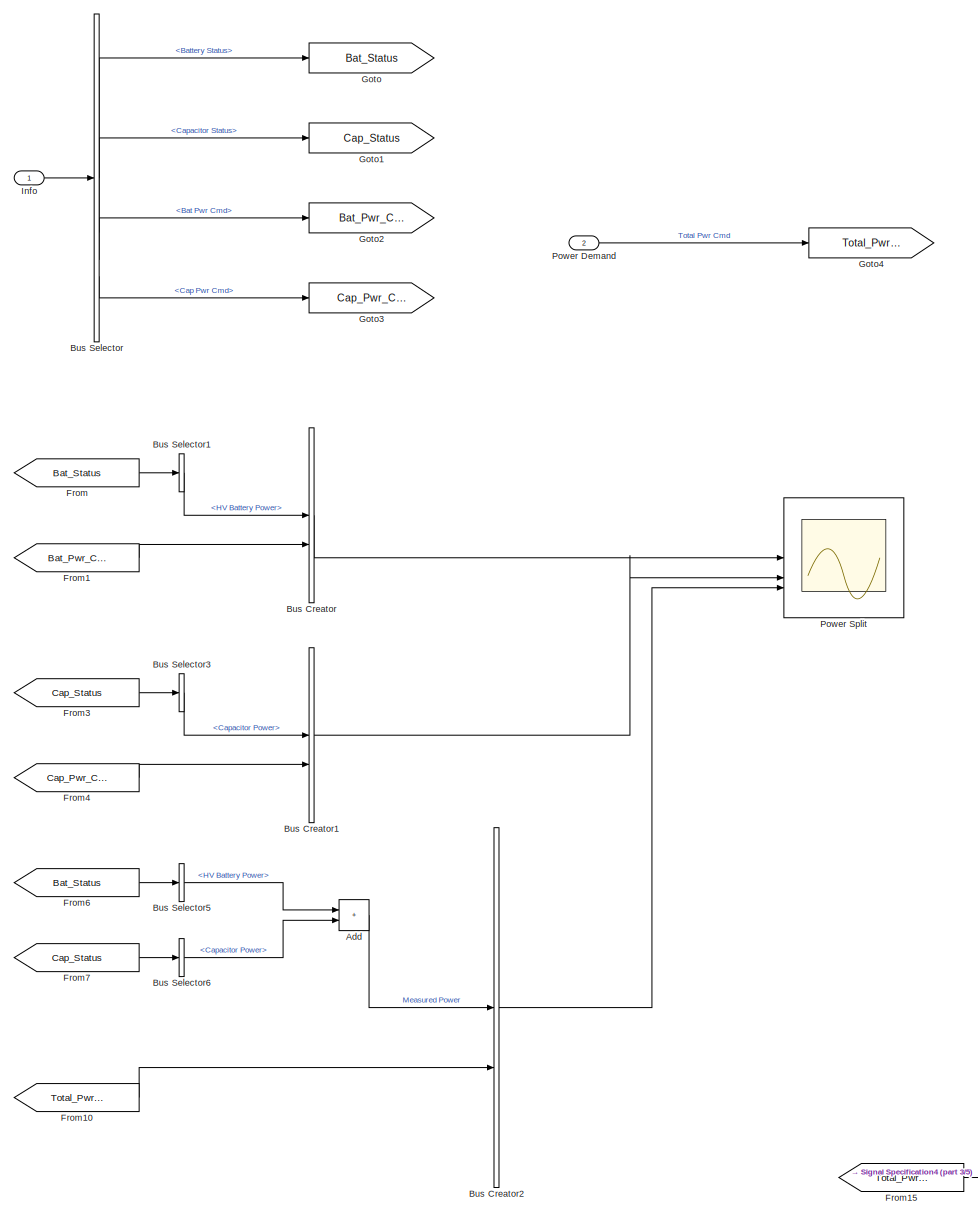
[diagram: Scope - part 1/5, top left region]
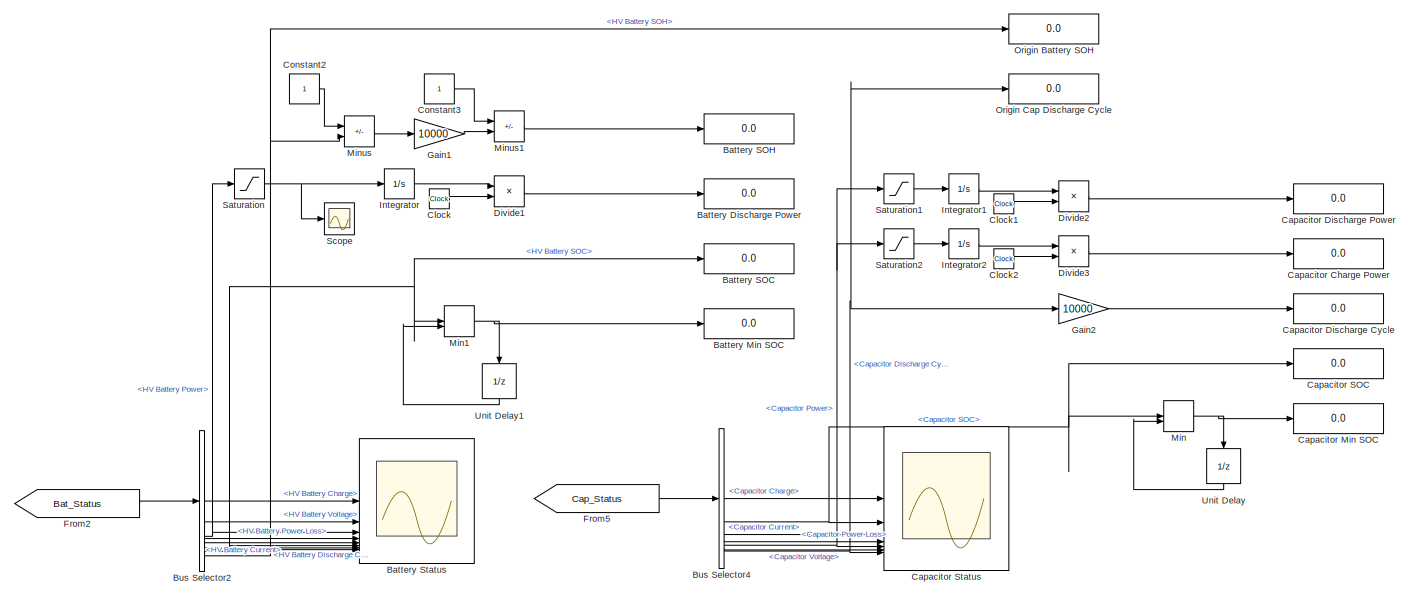
[diagram: Scope - part 2/5, top right region]
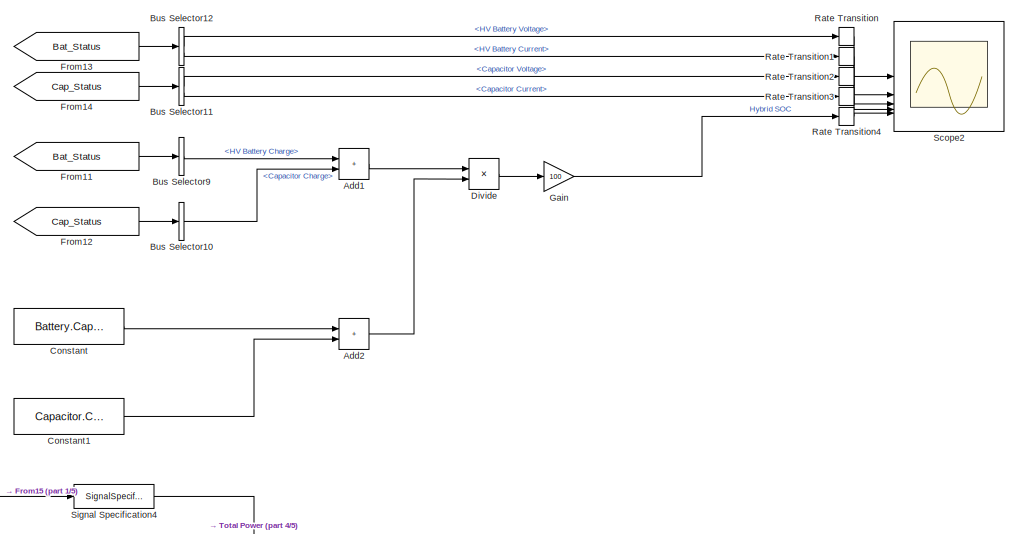
[diagram: Scope - part 3/5, central region]
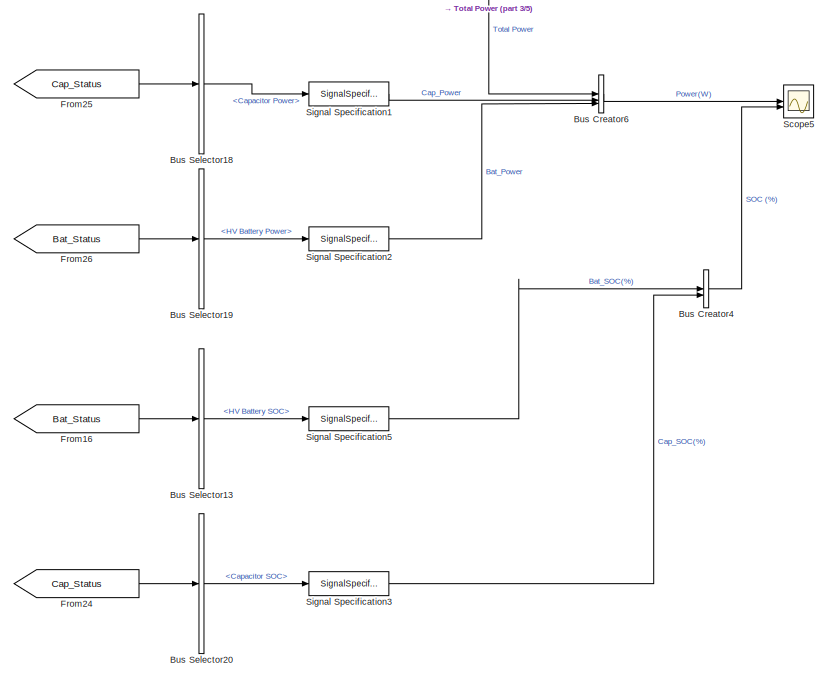
[diagram: Scope - part 4/5, bottom center region]
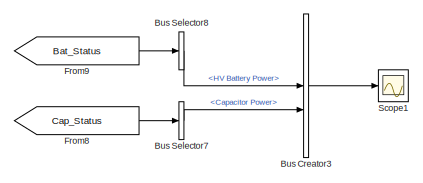
[diagram: Scope - part 5/5, bottom left region]
BLOCK [SubSystem] Scope
BLOCK [Sum] Scope/Add
  IconShape = rectangular
BLOCK [Sum] Scope/Add1
  IconShape = rectangular
BLOCK [Sum] Scope/Add2
  IconShape = rectangular
BLOCK [Display] Scope/Battery Discharge Power
  Decimation = 1
BLOCK [Display] Scope/Battery Min SOC
  Decimation = 1
BLOCK [Display] Scope/Battery SOC
  Decimation = 1
BLOCK [Display] Scope/Battery SOH
  Decimation = 1
BLOCK [Scope] Scope/Battery Status
  Floating = off
  NumInputPorts = 8
  ScopeSpecificationString = Simulink.scopes.TimeScopeBlockCfg('CurrentConfiguration', extmgr.ConfigurationSet(extmgr.Configuration('Core','General UI',true),extmgr.Configuration('Core','Source UI',true),extmgr.Configuration('Sources','WiredSimulink',true,'DataLoggingVariableName','bat_info','DataLogging',true,'DataLoggingSaveFormat','StructureWithTime'),extmgr.Configuration('Visuals','Time Domain',true,'SerializedDisplays',{...<+6374ch>
BLOCK [BusCreator] Scope/Bus Creator
  DisplayOption = bar
  InheritFromInputs = on
  Inputs = 2
BLOCK [BusCreator] Scope/Bus Creator1
  DisplayOption = bar
  InheritFromInputs = on
  Inputs = 2
BLOCK [BusCreator] Scope/Bus Creator2
  DisplayOption = bar
  InheritFromInputs = on
  Inputs = 2
BLOCK [BusCreator] Scope/Bus Creator3
  DisplayOption = bar
  InheritFromInputs = on
  Inputs = 2
BLOCK [BusCreator] Scope/Bus Creator4
  DisplayOption = bar
  InheritFromInputs = on
  Inputs = 2
BLOCK [BusCreator] Scope/Bus Creator6
  DisplayOption = bar
  InheritFromInputs = on
  Inputs = 3
BLOCK [BusSelector] Scope/Bus Selector
  OutputSignals = Battery Status,Capacitor Status,Bat Pwr Cmd,Cap Pwr Cmd
BLOCK [BusSelector] Scope/Bus Selector1
  OutputSignals = HV Battery Power
BLOCK [BusSelector] Scope/Bus Selector10
  OutputSignals = Capacitor Charge
BLOCK [BusSelector] Scope/Bus Selector11
  OutputSignals = Capacitor Voltage,Capacitor Current
BLOCK [BusSelector] Scope/Bus Selector12
  OutputSignals = HV Battery Voltage,HV Battery Current
BLOCK [BusSelector] Scope/Bus Selector13
  OutputSignals = HV Battery SOC
BLOCK [BusSelector] Scope/Bus Selector18
  OutputSignals = Capacitor Power
BLOCK [BusSelector] Scope/Bus Selector19
  OutputSignals = HV Battery Power
BLOCK [BusSelector] Scope/Bus Selector2
  OutputSignals = HV Battery Charge,HV Battery Voltage,HV Battery Power,HV Battery Power Loss,HV Battery Current,HV Battery SOC,HV Battery Discharge Cycle,HV Battery SOH
BLOCK [BusSelector] Scope/Bus Selector20
  OutputSignals = Capacitor SOC
BLOCK [BusSelector] Scope/Bus Selector3
  OutputSignals = Capacitor Power
BLOCK [BusSelector] Scope/Bus Selector4
  OutputSignals = Capacitor Charge,Capacitor SOC,Capacitor Current,Capacitor Power Loss,Capacitor Power,Capacitor Voltage,Capacitor Discharge Cycle
BLOCK [BusSelector] Scope/Bus Selector5
  OutputSignals = HV Battery Power
BLOCK [BusSelector] Scope/Bus Selector6
  OutputSignals = Capacitor Power
BLOCK [BusSelector] Scope/Bus Selector7
  OutputSignals = Capacitor Power
BLOCK [BusSelector] Scope/Bus Selector8
  OutputSignals = HV Battery Power
BLOCK [BusSelector] Scope/Bus Selector9
  OutputSignals = HV Battery Charge
BLOCK [Display] Scope/Capacitor Charge Power
  Decimation = 1
BLOCK [Display] Scope/Capacitor Discharge Cycle
  Decimation = 1
BLOCK [Display] Scope/Capacitor Discharge Power
  Decimation = 1
BLOCK [Display] Scope/Capacitor Min SOC
  Decimation = 1
BLOCK [Display] Scope/Capacitor SOC
  Decimation = 1
BLOCK [Scope] Scope/Capacitor Status
  Floating = off
  NumInputPorts = 7
  ScopeSpecificationString = Simulink.scopes.TimeScopeBlockCfg('CurrentConfiguration', extmgr.ConfigurationSet(extmgr.Configuration('Core','General UI',true),extmgr.Configuration('Core','Source UI',true),extmgr.Configuration('Sources','WiredSimulink',true,'DataLoggingVariableName','cap_info','DataLogging',true,'DataLoggingSaveFormat','StructureWithTime'),extmgr.Configuration('Visuals','Time Domain',true,'SerializedDisplays',{...<+6360ch>
BLOCK [Clock] Scope/Clock
BLOCK [Clock] Scope/Clock1
BLOCK [Clock] Scope/Clock2
BLOCK [Constant] Scope/Constant
  Value = Battery.Capacity
BLOCK [Constant] Scope/Constant1
  Value = Capacitor.Capacity
BLOCK [Constant] Scope/Constant2
BLOCK [Constant] Scope/Constant3
BLOCK [Product] Scope/Divide
  Inputs = */
BLOCK [Product] Scope/Divide1
  Inputs = */
BLOCK [Product] Scope/Divide2
  Inputs = */
BLOCK [Product] Scope/Divide3
  Inputs = */
BLOCK [From] Scope/From
  GotoTag = Bat_Status
BLOCK [From] Scope/From1
  GotoTag = Bat_Pwr_Cmd
BLOCK [From] Scope/From10
  GotoTag = Total_Pwr_Cmd
BLOCK [From] Scope/From11
  GotoTag = Bat_Status
BLOCK [From] Scope/From12
  GotoTag = Cap_Status
BLOCK [From] Scope/From13
  GotoTag = Bat_Status
BLOCK [From] Scope/From14
  GotoTag = Cap_Status
BLOCK [From] Scope/From15
  GotoTag = Total_Pwr_Cmd
BLOCK [From] Scope/From16
  GotoTag = Bat_Status
BLOCK [From] Scope/From2
  GotoTag = Bat_Status
BLOCK [From] Scope/From24
  GotoTag = Cap_Status
BLOCK [From] Scope/From25
  GotoTag = Cap_Status
BLOCK [From] Scope/From26
  GotoTag = Bat_Status
BLOCK [From] Scope/From3
  GotoTag = Cap_Status
BLOCK [From] Scope/From4
  GotoTag = Cap_Pwr_Cmd
BLOCK [From] Scope/From5
  GotoTag = Cap_Status
BLOCK [From] Scope/From6
  GotoTag = Bat_Status
BLOCK [From] Scope/From7
  GotoTag = Cap_Status
BLOCK [From] Scope/From8
  GotoTag = Cap_Status
BLOCK [From] Scope/From9
  GotoTag = Bat_Status
BLOCK [Gain] Scope/Gain
  Gain = 100
BLOCK [Gain] Scope/Gain1
  Gain = 10000
BLOCK [Gain] Scope/Gain2
  Gain = 10000
BLOCK [Goto] Scope/Goto
  GotoTag = Bat_Status
BLOCK [Goto] Scope/Goto1
  GotoTag = Cap_Status
BLOCK [Goto] Scope/Goto2
  GotoTag = Bat_Pwr_Cmd
BLOCK [Goto] Scope/Goto3
  GotoTag = Cap_Pwr_Cmd
BLOCK [Goto] Scope/Goto4
  GotoTag = Total_Pwr_Cmd
BLOCK [Inport] Scope/Info
BLOCK [Integrator] Scope/Integrator
BLOCK [Integrator] Scope/Integrator1
BLOCK [Integrator] Scope/Integrator2
BLOCK [MinMax] Scope/Min
  Inputs = 2
BLOCK [MinMax] Scope/Min1
  Inputs = 2
BLOCK [Sum] Scope/Minus
  IconShape = rectangular
  Inputs = +-
BLOCK [Sum] Scope/Minus1
  IconShape = rectangular
  Inputs = +-
BLOCK [Display] Scope/Origin Battery SOH
  Decimation = 1
BLOCK [Display] Scope/Origin Cap Discharge Cycle
  Decimation = 1
BLOCK [Inport] Scope/Power Demand
  Port = 2
BLOCK [Scope] Scope/Power Split
  Floating = off
  NumInputPorts = 3
  ScopeSpecificationString = Simulink.scopes.TimeScopeBlockCfg('CurrentConfiguration', extmgr.ConfigurationSet(extmgr.Configuration('Core','General UI',true),extmgr.Configuration('Core','Source UI',true),extmgr.Configuration('Sources','WiredSimulink',true),extmgr.Configuration('Visuals','Time Domain',true,'SerializedDisplays',{struct('MinYLimReal','-41965.35545','MaxYLimReal','43531.45748','YLabelReal','','MinYLimMag','   0.0...<+2949ch>
BLOCK [RateTransition] Scope/Rate Transition
  OutPortSampleTime = 0.5
BLOCK [RateTransition] Scope/Rate Transition1
  OutPortSampleTime = 0.5
BLOCK [RateTransition] Scope/Rate Transition2
  OutPortSampleTime = 0.5
BLOCK [RateTransition] Scope/Rate Transition3
  OutPortSampleTime = 0.5
BLOCK [RateTransition] Scope/Rate Transition4
  OutPortSampleTime = 0.5
BLOCK [Saturate] Scope/Saturation
  LowerLimit = 0
  UpperLimit = 200000
BLOCK [Saturate] Scope/Saturation1
  LowerLimit = 0
  UpperLimit = 200000
BLOCK [Saturate] Scope/Saturation2
  LowerLimit = -200000
  UpperLimit = 0
BLOCK [Scope] Scope/Scope
  Floating = off
  NumInputPorts = 1
  ScopeSpecificationString = Simulink.scopes.TimeScopeBlockCfg('CurrentConfiguration', extmgr.ConfigurationSet(extmgr.Configuration('Core','General UI',true),extmgr.Configuration('Core','Source UI',true),extmgr.Configuration('Sources','WiredSimulink',true,'DataLoggingVariableName','Bat_Power','DataLogging',true,'DataLoggingSaveFormat','StructureWithTime'),extmgr.Configuration('Visuals','Time Domain',true,'SerializedDisplays',...<+1512ch>
BLOCK [Scope] Scope/Scope1
  Floating = off
  NumInputPorts = 1
  ScopeSpecificationString = Simulink.scopes.TimeScopeBlockCfg('CurrentConfiguration', extmgr.ConfigurationSet(extmgr.Configuration('Core','General UI',true),extmgr.Configuration('Core','Source UI',true),extmgr.Configuration('Sources','WiredSimulink',true,'DataLoggingVariableName','ScopeData1'),extmgr.Configuration('Visuals','Time Domain',true,'SerializedDisplays',{struct('MinYLimReal','-45649.16718','MaxYLimReal','42845.5692...<+1526ch>
BLOCK [Scope] Scope/Scope2
  Floating = off
  NumInputPorts = 5
  ScopeSpecificationString = Simulink.scopes.TimeScopeBlockCfg('CurrentConfiguration', extmgr.ConfigurationSet(extmgr.Configuration('Core','General UI',true),extmgr.Configuration('Core','Source UI',true),extmgr.Configuration('Sources','WiredSimulink',true,'DataLoggingVariableName','HSOC','DataLogging',true,'DataLoggingSaveFormat','StructureWithTime'),extmgr.Configuration('Visuals','Time Domain',true,'SerializedDisplays',{stru...<+4903ch>
BLOCK [Scope] Scope/Scope5
  Floating = off
  NumInputPorts = 2
  ScopeSpecificationString = Simulink.scopes.TimeScopeBlockCfg('CurrentConfiguration', extmgr.ConfigurationSet(extmgr.Configuration('Core','General UI',true),extmgr.Configuration('Core','Source UI',true),extmgr.Configuration('Sources','WiredSimulink',true,'DataLoggingVariableName','pwr_compair','DataLogging',true,'DataLoggingSaveFormat','StructureWithTime'),extmgr.Configuration('Visuals','Time Domain',true,'SerializedDisplays...<+2176ch>
BLOCK [SignalSpecification] Scope/Signal Specification1
  Unit = W
BLOCK [SignalSpecification] Scope/Signal Specification2
  Unit = W
BLOCK [SignalSpecification] Scope/Signal Specification3
  Unit = %
BLOCK [SignalSpecification] Scope/Signal Specification4
  Unit = W
BLOCK [SignalSpecification] Scope/Signal Specification5
  Unit = %
BLOCK [UnitDelay] Scope/Unit Delay
  HasFrameUpgradeWarning = on
  InitialCondition = 100
  NameLocation = left
  SampleTime = -1
BLOCK [UnitDelay] Scope/Unit Delay1
  HasFrameUpgradeWarning = on
  InitialCondition = 100
  NameLocation = left
  SampleTime = -1
LINE Battery-UC Hybrid Energy Pack/Bat Measurement/Subsystem/Bus Creator:1 -> Battery-UC Hybrid Energy Pack/Bat Measurement/Subsystem/Info:1
LINE Battery-UC Hybrid Energy Pack/Bat Measurement/Subsystem/Constant1:1 -> Battery-UC Hybrid Energy Pack/Bat Measurement/Subsystem/Divide:1
LINE Battery-UC Hybrid Energy Pack/Bat Measurement/Subsystem/Constant2:1 -> Battery-UC Hybrid Energy Pack/Bat Measurement/Subsystem/Minus2:1
LINE Battery-UC Hybrid Energy Pack/Bat Measurement/Subsystem/Constant3:1 -> Battery-UC Hybrid Energy Pack/Bat Measurement/Subsystem/Minus1:1
LINE Battery-UC Hybrid Energy Pack/Bat Measurement/Subsystem/Constant:1 -> Battery-UC Hybrid Energy Pack/Bat Measurement/Subsystem/Minus:1
LINE Battery-UC Hybrid Energy Pack/Bat Measurement/Subsystem/Divide:1 -> Battery-UC Hybrid Energy Pack/Bat Measurement/Subsystem/Minus1:2
LINE Battery-UC Hybrid Energy Pack/Bat Measurement/Subsystem/Gain1:1 -> Battery-UC Hybrid Energy Pack/Bat Measurement/Subsystem/Minus:2
LINE Battery-UC Hybrid Energy Pack/Bat Measurement/Subsystem/Minus1:1 -> Battery-UC Hybrid Energy Pack/Bat Measurement/Subsystem/Minus2:2
NET Battery-UC Hybrid Energy Pack/Bat Measurement/Subsystem/Minus2:1 -> Battery-UC Hybrid Energy Pack/Bat Measurement/Subsystem/Bus Creator:2, Battery-UC Hybrid Energy Pack/Bat Measurement/Subsystem/Simulink-PS Converter1:1, Battery-UC Hybrid Energy Pack/Bat Measurement/Subsystem/Simulink-PS Converter:1
LINE Battery-UC Hybrid Energy Pack/Bat Measurement/Subsystem/Minus:1 -> Battery-UC Hybrid Energy Pack/Bat Measurement/Subsystem/Divide:2
LINE Battery-UC Hybrid Energy Pack/Bat Measurement/Subsystem/PS-Simulink Converter1:1 -> Battery-UC Hybrid Energy Pack/Bat Measurement/Subsystem/Bus Creator:3
LINE Battery-UC Hybrid Energy Pack/Bat Measurement/Subsystem/PS-Simulink Converter2:1 -> Battery-UC Hybrid Energy Pack/Bat Measurement/Subsystem/Bus Creator:5
LINE Battery-UC Hybrid Energy Pack/Bat Measurement/Subsystem/PS-Simulink Converter3:1 -> Battery-UC Hybrid Energy Pack/Bat Measurement/Subsystem/Bus Creator:8
LINE Battery-UC Hybrid Energy Pack/Bat Measurement/Subsystem/PS-Simulink Converter4:1 -> Battery-UC Hybrid Energy Pack/Bat Measurement/Subsystem/Bus Creator:6
NET Battery-UC Hybrid Energy Pack/Bat Measurement/Subsystem/PS-Simulink Converter5:1 -> Battery-UC Hybrid Energy Pack/Bat Measurement/Subsystem/Bus Creator:1, Battery-UC Hybrid Energy Pack/Bat Measurement/Subsystem/Unit Delay:1
LINE Battery-UC Hybrid Energy Pack/Bat Measurement/Subsystem/PS-Simulink Converter6:1 -> Battery-UC Hybrid Energy Pack/Bat Measurement/Subsystem/To Percent:1
LINE Battery-UC Hybrid Energy Pack/Bat Measurement/Subsystem/PS-Simulink Converter:1 -> Battery-UC Hybrid Energy Pack/Bat Measurement/Subsystem/Bus Creator:7
LINE Battery-UC Hybrid Energy Pack/Bat Measurement/Subsystem/To Percent/In1:1 -> Battery-UC Hybrid Energy Pack/Bat Measurement/Subsystem/To Percent/Unit Conversion:1
LINE Battery-UC Hybrid Energy Pack/Bat Measurement/Subsystem/To Percent/Unit Conversion:1 -> Battery-UC Hybrid Energy Pack/Bat Measurement/Subsystem/To Percent/Out1:1
LINE Battery-UC Hybrid Energy Pack/Bat Measurement/Subsystem/To Percent:1 -> Battery-UC Hybrid Energy Pack/Bat Measurement/Subsystem/Bus Creator:4
LINE Battery-UC Hybrid Energy Pack/Bat Measurement/Subsystem/Unit Delay:1 -> Battery-UC Hybrid Energy Pack/Bat Measurement/Subsystem/Gain1:1
LINE Battery-UC Hybrid Energy Pack/Bat Measurement/Subsystem:1 -> Battery-UC Hybrid Energy Pack/Bat Measurement/Bat Status:1
LINE Battery-UC Hybrid Energy Pack/Bat Measurement:1 -> Battery-UC Hybrid Energy Pack/Goto2:1
LINE Battery-UC Hybrid Energy Pack/Battery Load/Divide:1 -> Battery-UC Hybrid Energy Pack/Battery Load/Unit Delay:1
LINE Battery-UC Hybrid Energy Pack/Battery Load/Gain:1 -> Battery-UC Hybrid Energy Pack/Battery Load/Simulink-PS Converter:1
LINE Battery-UC Hybrid Energy Pack/Battery Load/PS-Simulink Converter:1 -> Battery-UC Hybrid Energy Pack/Battery Load/Divide:1
LINE Battery-UC Hybrid Energy Pack/Battery Load/Pwr Cmd:1 -> Battery-UC Hybrid Energy Pack/Battery Load/Divide:2
LINE Battery-UC Hybrid Energy Pack/Battery Load/Unit Delay:1 -> Battery-UC Hybrid Energy Pack/Battery Load/Gain:1
LINE Battery-UC Hybrid Energy Pack/Bus Creator:1 -> Battery-UC Hybrid Energy Pack/Info:1
LINE Battery-UC Hybrid Energy Pack/Bus Selector:1 -> Battery-UC Hybrid Energy Pack/Goto:1
LINE Battery-UC Hybrid Energy Pack/Bus Selector:2 -> Battery-UC Hybrid Energy Pack/Goto1:1
LINE Battery-UC Hybrid Energy Pack/Cap Load/Cap Pwr Cmd:1 -> Battery-UC Hybrid Energy Pack/Cap Load/Divide:2
LINE Battery-UC Hybrid Energy Pack/Cap Load/Divide:1 -> Battery-UC Hybrid Energy Pack/Cap Load/Unit Delay:1
LINE Battery-UC Hybrid Energy Pack/Cap Load/Gain:1 -> Battery-UC Hybrid Energy Pack/Cap Load/Simulink-PS Converter:1
LINE Battery-UC Hybrid Energy Pack/Cap Load/PS-Simulink Converter:1 -> Battery-UC Hybrid Energy Pack/Cap Load/Divide:1
LINE Battery-UC Hybrid Energy Pack/Cap Load/Unit Delay:1 -> Battery-UC Hybrid Energy Pack/Cap Load/Gain:1
LINE Battery-UC Hybrid Energy Pack/Cap Measurement/Subsystem/Bus Creator:1 -> Battery-UC Hybrid Energy Pack/Cap Measurement/Subsystem/Info:1
LINE Battery-UC Hybrid Energy Pack/Cap Measurement/Subsystem/PS-Simulink Converter1:1 -> Battery-UC Hybrid Energy Pack/Cap Measurement/Subsystem/Bus Creator:2
LINE Battery-UC Hybrid Energy Pack/Cap Measurement/Subsystem/PS-Simulink Converter2:1 -> Battery-UC Hybrid Energy Pack/Cap Measurement/Subsystem/Bus Creator:4
LINE Battery-UC Hybrid Energy Pack/Cap Measurement/Subsystem/PS-Simulink Converter3:1 -> Battery-UC Hybrid Energy Pack/Cap Measurement/Subsystem/Bus Creator:7
LINE Battery-UC Hybrid Energy Pack/Cap Measurement/Subsystem/PS-Simulink Converter4:1 -> Battery-UC Hybrid Energy Pack/Cap Measurement/Subsystem/Bus Creator:5
LINE Battery-UC Hybrid Energy Pack/Cap Measurement/Subsystem/PS-Simulink Converter5:1 -> Battery-UC Hybrid Energy Pack/Cap Measurement/Subsystem/Bus Creator:1
LINE Battery-UC Hybrid Energy Pack/Cap Measurement/Subsystem/PS-Simulink Converter6:1 -> Battery-UC Hybrid Energy Pack/Cap Measurement/Subsystem/To Percent:1
LINE Battery-UC Hybrid Energy Pack/Cap Measurement/Subsystem/PS-Simulink Converter:1 -> Battery-UC Hybrid Energy Pack/Cap Measurement/Subsystem/Bus Creator:6
LINE Battery-UC Hybrid Energy Pack/Cap Measurement/Subsystem/To Percent/In1:1 -> Battery-UC Hybrid Energy Pack/Cap Measurement/Subsystem/To Percent/Unit Conversion:1
LINE Battery-UC Hybrid Energy Pack/Cap Measurement/Subsystem/To Percent/Unit Conversion:1 -> Battery-UC Hybrid Energy Pack/Cap Measurement/Subsystem/To Percent/Out1:1
LINE Battery-UC Hybrid Energy Pack/Cap Measurement/Subsystem/To Percent:1 -> Battery-UC Hybrid Energy Pack/Cap Measurement/Subsystem/Bus Creator:3
LINE Battery-UC Hybrid Energy Pack/Cap Measurement/Subsystem:1 -> Battery-UC Hybrid Energy Pack/Cap Measurement/Cap Status:1
LINE Battery-UC Hybrid Energy Pack/Cap Measurement:1 -> Battery-UC Hybrid Energy Pack/Goto3:1
LINE Battery-UC Hybrid Energy Pack/From1:1 -> Battery-UC Hybrid Energy Pack/Cap Load:1
LINE Battery-UC Hybrid Energy Pack/From2:1 -> Battery-UC Hybrid Energy Pack/Bus Creator:1
LINE Battery-UC Hybrid Energy Pack/From3:1 -> Battery-UC Hybrid Energy Pack/Battery Load:1
LINE Battery-UC Hybrid Energy Pack/From4:1 -> Battery-UC Hybrid Energy Pack/Bus Creator:3
LINE Battery-UC Hybrid Energy Pack/From5:1 -> Battery-UC Hybrid Energy Pack/Bus Creator:4
LINE Battery-UC Hybrid Energy Pack/From6:1 -> Battery-UC Hybrid Energy Pack/Bus Creator:2
LINE Battery-UC Hybrid Energy Pack/Pwr Cmd:1 -> Battery-UC Hybrid Energy Pack/Bus Selector:1
LINE Battery-UC Hybrid Energy Pack:1 -> Goto2:1
LINE From1:1 -> RL-based EMS:2
LINE From2:1 -> Scope:1
LINE Power Demand Profile/1022 sec:1 -> Power Demand Profile/Multiport Switch:5
LINE Power Demand Profile/1369 sec:1 -> Power Demand Profile/Multiport Switch:4
LINE Power Demand Profile/1372 sec:1 -> Power Demand Profile/Multiport Switch:3
LINE Power Demand Profile/1477 sec:1 -> Power Demand Profile/Multiport Switch:6
LINE Power Demand Profile/1800 sec:1 -> Power Demand Profile/Multiport Switch:7
LINE Power Demand Profile/2474 sec:1 -> Power Demand Profile/Multiport Switch:2
LINE Power Demand Profile/Drive Cycle Source:1 -> Power Demand Profile/Unit Conversion:1
NET Power Demand Profile/Max:1 -> Power Demand Profile/Display:1, Power Demand Profile/Unit Delay:1
LINE Power Demand Profile/Multiport Switch:1 -> Power Demand Profile/Signal Specification:1
NET Power Demand Profile/Signal Specification1:1 -> Power Demand Profile/Max:1, Power Demand Profile/Scope:1
NET Power Demand Profile/Signal Specification:1 -> Power Demand Profile/Pwr Demand:1, Power Demand Profile/Scope1:1
LINE Power Demand Profile/Simulation Case:1 -> Power Demand Profile/Multiport Switch:1
LINE Power Demand Profile/Unit Conversion:1 -> Power Demand Profile/Signal Specification1:1
LINE Power Demand Profile/Unit Delay:1 -> Power Demand Profile/Max:2
NET Power Demand Profile:1 -> RL-based EMS:1, Scope:2
LINE RL-based EMS/DQN/Agent:1 -> RL-based EMS/DQN/Goto8:1
LINE RL-based EMS/DQN/Bus Creator1:1 -> RL-based EMS/DQN/Scope:1
LINE RL-based EMS/DQN/Bus Creator2:1 -> RL-based EMS/DQN/Pwr Cmd:1
LINE RL-based EMS/DQN/Bus Creator3:1 -> RL-based EMS/DQN/Pwr Split:1
LINE RL-based EMS/DQN/Bus Creator4:1 -> RL-based EMS/DQN/Pwr Split:2
LINE RL-based EMS/DQN/Bus Creator6:1 -> RL-based EMS/DQN/Goto6:1
LINE RL-based EMS/DQN/Bus Creator:1 -> RL-based EMS/DQN/Goto3:1
LINE RL-based EMS/DQN/Bus Selector1:1 -> RL-based EMS/DQN/Gain:1
LINE RL-based EMS/DQN/Bus Selector1:2 -> RL-based EMS/DQN/Goto4:1
LINE RL-based EMS/DQN/Bus Selector1:3 -> RL-based EMS/DQN/Goto14:1
LINE RL-based EMS/DQN/Bus Selector2:1 -> RL-based EMS/DQN/Gain1:1
NET RL-based EMS/DQN/Bus Selector2:2 -> RL-based EMS/DQN/Goto5:1, RL-based EMS/DQN/Saturation2:1, RL-based EMS/DQN/Saturation3:1
LINE RL-based EMS/DQN/Bus Selector2:3 -> RL-based EMS/DQN/Goto15:1
LINE RL-based EMS/DQN/Bus Selector:1 -> RL-based EMS/DQN/Bus Selector1:1
LINE RL-based EMS/DQN/Bus Selector:2 -> RL-based EMS/DQN/Bus Selector2:1
LINE RL-based EMS/DQN/Clock:1 -> RL-based EMS/DQN/MATLAB Function1:6
LINE RL-based EMS/DQN/Constant1:1 -> RL-based EMS/DQN/MATLAB Function1:5
LINE RL-based EMS/DQN/Constant2:1 -> RL-based EMS/DQN/Divide:2
LINE RL-based EMS/DQN/Demux:1 -> RL-based EMS/DQN/MATLAB Function:2
LINE RL-based EMS/DQN/Demux:2 -> RL-based EMS/DQN/MATLAB Function:3
LINE RL-based EMS/DQN/Derivative:1 -> RL-based EMS/DQN/Goto21:1
LINE RL-based EMS/DQN/Divide:1 -> RL-based EMS/DQN/Goto19:1
LINE RL-based EMS/DQN/From Plant:1 -> RL-based EMS/DQN/Bus Selector:1
LINE RL-based EMS/DQN/From10:1 -> RL-based EMS/DQN/MATLAB Function1:1
LINE RL-based EMS/DQN/From11:1 -> RL-based EMS/DQN/MATLAB Function1:2
LINE RL-based EMS/DQN/From12:1 -> RL-based EMS/DQN/MATLAB Function1:3
LINE RL-based EMS/DQN/From13:1 -> RL-based EMS/DQN/Agent:3
LINE RL-based EMS/DQN/From14:1 -> RL-based EMS/DQN/MATLAB Function2:1
LINE RL-based EMS/DQN/From15:1 -> RL-based EMS/DQN/Scope1:6
LINE RL-based EMS/DQN/From16:1 -> RL-based EMS/DQN/MATLAB Function5:6
LINE RL-based EMS/DQN/From17:1 -> RL-based EMS/DQN/Bus Creator:3
LINE RL-based EMS/DQN/From18:1 -> RL-based EMS/DQN/Agent:1
LINE RL-based EMS/DQN/From19:1 -> RL-based EMS/DQN/Demux:1
LINE RL-based EMS/DQN/From1:1 -> RL-based EMS/DQN/MATLAB Function5:5
LINE RL-based EMS/DQN/From20:1 -> RL-based EMS/DQN/MATLAB Function5:1
NET RL-based EMS/DQN/From21:1 -> RL-based EMS/DQN/Bus Creator:1, RL-based EMS/DQN/Scope4:1
LINE RL-based EMS/DQN/From22:1 -> RL-based EMS/DQN/Scope1:1
LINE RL-based EMS/DQN/From23:1 -> RL-based EMS/DQN/Scope1:5
LINE RL-based EMS/DQN/From24:1 -> RL-based EMS/DQN/Scope1:2
LINE RL-based EMS/DQN/From25:1 -> RL-based EMS/DQN/Scope1:3
LINE RL-based EMS/DQN/From26:1 -> RL-based EMS/DQN/Scope1:4
LINE RL-based EMS/DQN/From27:1 -> RL-based EMS/DQN/MATLAB Function5:4
LINE RL-based EMS/DQN/From2:1 -> RL-based EMS/DQN/Bus Creator:2
LINE RL-based EMS/DQN/From31:1 -> RL-based EMS/DQN/Bus Creator4:2
LINE RL-based EMS/DQN/From32:1 -> RL-based EMS/DQN/Bus Creator4:1
NET RL-based EMS/DQN/From3:1 -> RL-based EMS/DQN/MATLAB Function:1, RL-based EMS/DQN/Product1:2, RL-based EMS/DQN/Product:2
LINE RL-based EMS/DQN/From4:1 -> RL-based EMS/DQN/Bus Creator3:1
LINE RL-based EMS/DQN/From59:1 -> RL-based EMS/DQN/MATLAB Function5:2
LINE RL-based EMS/DQN/From5:1 -> RL-based EMS/DQN/Bus Creator3:2
LINE RL-based EMS/DQN/From61:1 -> RL-based EMS/DQN/MATLAB Function5:3
LINE RL-based EMS/DQN/From6:1 -> RL-based EMS/DQN/MATLAB Function:5
LINE RL-based EMS/DQN/From7:1 -> RL-based EMS/DQN/MATLAB Function1:4
LINE RL-based EMS/DQN/From8:1 -> RL-based EMS/DQN/MATLAB Function:4
LINE RL-based EMS/DQN/From9:1 -> RL-based EMS/DQN/Agent:2
LINE RL-based EMS/DQN/From:1 -> RL-based EMS/DQN/Divide:1
LINE RL-based EMS/DQN/Gain1:1 -> RL-based EMS/DQN/Goto2:1
LINE RL-based EMS/DQN/Gain:1 -> RL-based EMS/DQN/Goto1:1
LINE RL-based EMS/DQN/MATLAB Function1:1 -> RL-based EMS/DQN/Goto7:1
NET RL-based EMS/DQN/MATLAB Function2:1 -> RL-based EMS/DQN/Bus Creator6:1, RL-based EMS/DQN/Goto30:1
NET RL-based EMS/DQN/MATLAB Function2:2 -> RL-based EMS/DQN/Bus Creator6:2, RL-based EMS/DQN/Goto31:1
LINE RL-based EMS/DQN/MATLAB Function5:1 -> RL-based EMS/DQN/Goto29:1
LINE RL-based EMS/DQN/MATLAB Function5:2 -> RL-based EMS/DQN/Goto24:1
LINE RL-based EMS/DQN/MATLAB Function5:3 -> RL-based EMS/DQN/Goto17:1
LINE RL-based EMS/DQN/MATLAB Function5:4 -> RL-based EMS/DQN/Goto18:1
LINE RL-based EMS/DQN/MATLAB Function5:5 -> RL-based EMS/DQN/Goto20:1
LINE RL-based EMS/DQN/MATLAB Function5:6 -> RL-based EMS/DQN/Unit Delay1:1
NET RL-based EMS/DQN/MATLAB Function:1 -> RL-based EMS/DQN/Goto25:1, RL-based EMS/DQN/Product:1
NET RL-based EMS/DQN/MATLAB Function:2 -> RL-based EMS/DQN/Goto26:1, RL-based EMS/DQN/Product1:1
LINE RL-based EMS/DQN/MATLAB Function:3 -> RL-based EMS/DQN/Goto9:1
LINE RL-based EMS/DQN/MATLAB Function:4 -> RL-based EMS/DQN/Goto10:1
LINE RL-based EMS/DQN/MATLAB Function:5 -> RL-based EMS/DQN/Goto11:1
LINE RL-based EMS/DQN/MATLAB Function:6 -> RL-based EMS/DQN/Goto12:1
NET RL-based EMS/DQN/Moving Average1:1 -> RL-based EMS/DQN/Bus Creator1:1, RL-based EMS/DQN/Derivative:1
LINE RL-based EMS/DQN/Product1:1 -> RL-based EMS/DQN/Bus Creator2:2
LINE RL-based EMS/DQN/Product:1 -> RL-based EMS/DQN/Bus Creator2:1
LINE RL-based EMS/DQN/Saturation1:1 -> RL-based EMS/DQN/Moving Average1:1
LINE RL-based EMS/DQN/Saturation2:1 -> RL-based EMS/DQN/Goto13:1
LINE RL-based EMS/DQN/Saturation3:1 -> RL-based EMS/DQN/Goto16:1
NET RL-based EMS/DQN/Total Pwr Cmd:1 -> RL-based EMS/DQN/Bus Creator1:2, RL-based EMS/DQN/Goto:1, RL-based EMS/DQN/Saturation1:1
LINE RL-based EMS/DQN/Unit Delay1:1 -> RL-based EMS/DQN/Goto28:1
LINE RL-based EMS/DQN:1 -> RL-based EMS/Goto2:1
LINE RL-based EMS/From Plant:1 -> RL-based EMS/Goto1:1
NET RL-based EMS/From1:1 -> RL-based EMS/DQN:2, RL-based EMS/REF:2, RL-based EMS/Rule-based:2, RL-based EMS/SAC:2
NET RL-based EMS/From2:1 -> RL-based EMS/DQN:1, RL-based EMS/REF:1, RL-based EMS/Rule-based:1, RL-based EMS/SAC:1
LINE RL-based EMS/From3:1 -> RL-based EMS/Pwr Cmd:1
LINE RL-based EMS/REF/Agent:1 -> RL-based EMS/REF/Goto8:1
LINE RL-based EMS/REF/Bus Creator1:1 -> RL-based EMS/REF/Scope:1
LINE RL-based EMS/REF/Bus Creator2:1 -> RL-based EMS/REF/Pwr Cmd:1
LINE RL-based EMS/REF/Bus Creator3:1 -> RL-based EMS/REF/Pwr Split:1
LINE RL-based EMS/REF/Bus Creator4:1 -> RL-based EMS/REF/Pwr Split:2
LINE RL-based EMS/REF/Bus Creator6:1 -> RL-based EMS/REF/Goto6:1
LINE RL-based EMS/REF/Bus Creator:1 -> RL-based EMS/REF/Goto3:1
LINE RL-based EMS/REF/Bus Selector1:1 -> RL-based EMS/REF/Gain:1
LINE RL-based EMS/REF/Bus Selector1:2 -> RL-based EMS/REF/Goto4:1
LINE RL-based EMS/REF/Bus Selector1:3 -> RL-based EMS/REF/Goto14:1
LINE RL-based EMS/REF/Bus Selector2:1 -> RL-based EMS/REF/Gain1:1
NET RL-based EMS/REF/Bus Selector2:2 -> RL-based EMS/REF/Goto5:1, RL-based EMS/REF/Saturation2:1, RL-based EMS/REF/Saturation3:1
LINE RL-based EMS/REF/Bus Selector2:3 -> RL-based EMS/REF/Goto15:1
LINE RL-based EMS/REF/Bus Selector2:4 -> RL-based EMS/REF/Goto22:1
LINE RL-based EMS/REF/Bus Selector:1 -> RL-based EMS/REF/Bus Selector1:1
LINE RL-based EMS/REF/Bus Selector:2 -> RL-based EMS/REF/Bus Selector2:1
LINE RL-based EMS/REF/Clock:1 -> RL-based EMS/REF/MATLAB Function1:6
LINE RL-based EMS/REF/Constant1:1 -> RL-based EMS/REF/MATLAB Function1:5
LINE RL-based EMS/REF/Constant2:1 -> RL-based EMS/REF/Divide:2
LINE RL-based EMS/REF/Constant:1 -> RL-based EMS/REF/Minus:1
LINE RL-based EMS/REF/Demux:1 -> RL-based EMS/REF/MATLAB Function:2
LINE RL-based EMS/REF/Demux:2 -> RL-based EMS/REF/MATLAB Function:3
LINE RL-based EMS/REF/Derivative:1 -> RL-based EMS/REF/Goto21:1
LINE RL-based EMS/REF/Divide:1 -> RL-based EMS/REF/Goto19:1
LINE RL-based EMS/REF/From Plant:1 -> RL-based EMS/REF/Bus Selector:1
LINE RL-based EMS/REF/From10:1 -> RL-based EMS/REF/MATLAB Function1:1
LINE RL-based EMS/REF/From11:1 -> RL-based EMS/REF/MATLAB Function1:2
LINE RL-based EMS/REF/From12:1 -> RL-based EMS/REF/MATLAB Function1:3
LINE RL-based EMS/REF/From13:1 -> RL-based EMS/REF/Agent:3
NET RL-based EMS/REF/From14:1 -> RL-based EMS/REF/Bus Creator6:2, RL-based EMS/REF/Goto31:1, RL-based EMS/REF/Minus:2
LINE RL-based EMS/REF/From15:1 -> RL-based EMS/REF/Scope1:6
LINE RL-based EMS/REF/From16:1 -> RL-based EMS/REF/MATLAB Function5:6
LINE RL-based EMS/REF/From17:1 -> RL-based EMS/REF/Bus Creator:3
LINE RL-based EMS/REF/From18:1 -> RL-based EMS/REF/Agent:1
LINE RL-based EMS/REF/From19:1 -> RL-based EMS/REF/Demux:1
LINE RL-based EMS/REF/From1:1 -> RL-based EMS/REF/MATLAB Function5:5
NET RL-based EMS/REF/From21:1 -> RL-based EMS/REF/Bus Creator:1, RL-based EMS/REF/Scope4:1
LINE RL-based EMS/REF/From22:1 -> RL-based EMS/REF/Scope1:1
LINE RL-based EMS/REF/From23:1 -> RL-based EMS/REF/Scope1:5
LINE RL-based EMS/REF/From24:1 -> RL-based EMS/REF/Scope1:2
LINE RL-based EMS/REF/From25:1 -> RL-based EMS/REF/Scope1:3
LINE RL-based EMS/REF/From26:1 -> RL-based EMS/REF/Scope1:4
LINE RL-based EMS/REF/From27:1 -> RL-based EMS/REF/MATLAB Function5:4
LINE RL-based EMS/REF/From28:1 -> RL-based EMS/REF/MATLAB Function5:1
LINE RL-based EMS/REF/From2:1 -> RL-based EMS/REF/Bus Creator:2
LINE RL-based EMS/REF/From31:1 -> RL-based EMS/REF/Bus Creator4:2
LINE RL-based EMS/REF/From32:1 -> RL-based EMS/REF/Bus Creator4:1
NET RL-based EMS/REF/From3:1 -> RL-based EMS/REF/MATLAB Function:1, RL-based EMS/REF/Product1:2, RL-based EMS/REF/Product:2
LINE RL-based EMS/REF/From4:1 -> RL-based EMS/REF/Bus Creator3:1
LINE RL-based EMS/REF/From59:1 -> RL-based EMS/REF/MATLAB Function5:2
LINE RL-based EMS/REF/From5:1 -> RL-based EMS/REF/Bus Creator3:2
LINE RL-based EMS/REF/From61:1 -> RL-based EMS/REF/MATLAB Function5:3
LINE RL-based EMS/REF/From6:1 -> RL-based EMS/REF/MATLAB Function:5
LINE RL-based EMS/REF/From7:1 -> RL-based EMS/REF/MATLAB Function1:4
LINE RL-based EMS/REF/From8:1 -> RL-based EMS/REF/MATLAB Function:4
LINE RL-based EMS/REF/From9:1 -> RL-based EMS/REF/Agent:2
LINE RL-based EMS/REF/From:1 -> RL-based EMS/REF/Divide:1
LINE RL-based EMS/REF/Gain1:1 -> RL-based EMS/REF/Goto2:1
LINE RL-based EMS/REF/Gain:1 -> RL-based EMS/REF/Goto1:1
LINE RL-based EMS/REF/MATLAB Function1:1 -> RL-based EMS/REF/Goto7:1
LINE RL-based EMS/REF/MATLAB Function5:1 -> RL-based EMS/REF/Goto29:1
LINE RL-based EMS/REF/MATLAB Function5:2 -> RL-based EMS/REF/Goto24:1
LINE RL-based EMS/REF/MATLAB Function5:3 -> RL-based EMS/REF/Goto17:1
LINE RL-based EMS/REF/MATLAB Function5:4 -> RL-based EMS/REF/Goto18:1
LINE RL-based EMS/REF/MATLAB Function5:5 -> RL-based EMS/REF/Goto20:1
LINE RL-based EMS/REF/MATLAB Function5:6 -> RL-based EMS/REF/Unit Delay1:1
NET RL-based EMS/REF/MATLAB Function:1 -> RL-based EMS/REF/Goto25:1, RL-based EMS/REF/Product:1
NET RL-based EMS/REF/MATLAB Function:2 -> RL-based EMS/REF/Goto26:1, RL-based EMS/REF/Product1:1
LINE RL-based EMS/REF/MATLAB Function:3 -> RL-based EMS/REF/Goto9:1
LINE RL-based EMS/REF/MATLAB Function:4 -> RL-based EMS/REF/Goto10:1
LINE RL-based EMS/REF/MATLAB Function:5 -> RL-based EMS/REF/Goto11:1
LINE RL-based EMS/REF/MATLAB Function:6 -> RL-based EMS/REF/Goto12:1
NET RL-based EMS/REF/Minus:1 -> RL-based EMS/REF/Bus Creator6:1, RL-based EMS/REF/Goto30:1
NET RL-based EMS/REF/Moving Average1:1 -> RL-based EMS/REF/Bus Creator1:1, RL-based EMS/REF/Derivative:1
LINE RL-based EMS/REF/Product1:1 -> RL-based EMS/REF/Bus Creator2:2
LINE RL-based EMS/REF/Product:1 -> RL-based EMS/REF/Bus Creator2:1
LINE RL-based EMS/REF/Saturation1:1 -> RL-based EMS/REF/Moving Average1:1
LINE RL-based EMS/REF/Saturation2:1 -> RL-based EMS/REF/Goto13:1
LINE RL-based EMS/REF/Saturation3:1 -> RL-based EMS/REF/Goto16:1
NET RL-based EMS/REF/Total Pwr Cmd:1 -> RL-based EMS/REF/Bus Creator1:2, RL-based EMS/REF/Goto:1, RL-based EMS/REF/Saturation1:1
LINE RL-based EMS/REF/Unit Delay1:1 -> RL-based EMS/REF/Goto28:1
LINE RL-based EMS/REF:1 -> RL-based EMS/Goto3:1
LINE RL-based EMS/Rule-based/Bus Creator1:1 -> RL-based EMS/Rule-based/Scope:1
LINE RL-based EMS/Rule-based/Bus Creator2:1 -> RL-based EMS/Rule-based/Pwr Cmd:1
LINE RL-based EMS/Rule-based/Bus Creator3:1 -> RL-based EMS/Rule-based/Scope1:1
LINE RL-based EMS/Rule-based/Bus Creator:1 -> RL-based EMS/Rule-based/Goto3:1
LINE RL-based EMS/Rule-based/Bus Selector1:1 -> RL-based EMS/Rule-based/Gain:1
LINE RL-based EMS/Rule-based/Bus Selector1:2 -> RL-based EMS/Rule-based/Goto4:1
LINE RL-based EMS/Rule-based/Bus Selector1:3 -> RL-based EMS/Rule-based/Goto14:1
LINE RL-based EMS/Rule-based/Bus Selector2:1 -> RL-based EMS/Rule-based/Gain1:1
NET RL-based EMS/Rule-based/Bus Selector2:2 -> RL-based EMS/Rule-based/Goto5:1, RL-based EMS/Rule-based/Saturation2:1, RL-based EMS/Rule-based/Saturation3:1
LINE RL-based EMS/Rule-based/Bus Selector2:3 -> RL-based EMS/Rule-based/Goto15:1
LINE RL-based EMS/Rule-based/Bus Selector:1 -> RL-based EMS/Rule-based/Bus Selector1:1
LINE RL-based EMS/Rule-based/Bus Selector:2 -> RL-based EMS/Rule-based/Bus Selector2:1
LINE RL-based EMS/Rule-based/Constant2:1 -> RL-based EMS/Rule-based/Divide:2
LINE RL-based EMS/Rule-based/Derivative:1 -> RL-based EMS/Rule-based/Goto21:1
LINE RL-based EMS/Rule-based/Divide:1 -> RL-based EMS/Rule-based/Goto19:1
LINE RL-based EMS/Rule-based/From Plant:1 -> RL-based EMS/Rule-based/Bus Selector:1
LINE RL-based EMS/Rule-based/From17:1 -> RL-based EMS/Rule-based/Bus Creator:3
LINE RL-based EMS/Rule-based/From1:1 -> RL-based EMS/Rule-based/MATLAB Function:1
NET RL-based EMS/Rule-based/From21:1 -> RL-based EMS/Rule-based/Bus Creator:1, RL-based EMS/Rule-based/Scope4:1
LINE RL-based EMS/Rule-based/From2:1 -> RL-based EMS/Rule-based/Bus Creator:2
NET RL-based EMS/Rule-based/From3:1 -> RL-based EMS/Rule-based/Product1:2, RL-based EMS/Rule-based/Product:2
LINE RL-based EMS/Rule-based/From4:1 -> RL-based EMS/Rule-based/MATLAB Function:2
LINE RL-based EMS/Rule-based/From5:1 -> RL-based EMS/Rule-based/MATLAB Function:3
LINE RL-based EMS/Rule-based/From6:1 -> RL-based EMS/Rule-based/Bus Creator3:1
LINE RL-based EMS/Rule-based/From7:1 -> RL-based EMS/Rule-based/Bus Creator3:2
LINE RL-based EMS/Rule-based/From:1 -> RL-based EMS/Rule-based/Divide:1
LINE RL-based EMS/Rule-based/Gain1:1 -> RL-based EMS/Rule-based/Goto2:1
LINE RL-based EMS/Rule-based/Gain:1 -> RL-based EMS/Rule-based/Goto1:1
NET RL-based EMS/Rule-based/MATLAB Function:1 -> RL-based EMS/Rule-based/Goto25:1, RL-based EMS/Rule-based/Product:1
NET RL-based EMS/Rule-based/MATLAB Function:2 -> RL-based EMS/Rule-based/Goto26:1, RL-based EMS/Rule-based/Product1:1
NET RL-based EMS/Rule-based/Moving Average1:1 -> RL-based EMS/Rule-based/Bus Creator1:1, RL-based EMS/Rule-based/Derivative:1
LINE RL-based EMS/Rule-based/Product1:1 -> RL-based EMS/Rule-based/Bus Creator2:2
LINE RL-based EMS/Rule-based/Product:1 -> RL-based EMS/Rule-based/Bus Creator2:1
LINE RL-based EMS/Rule-based/Saturation1:1 -> RL-based EMS/Rule-based/Moving Average1:1
LINE RL-based EMS/Rule-based/Saturation2:1 -> RL-based EMS/Rule-based/Goto13:1
LINE RL-based EMS/Rule-based/Saturation3:1 -> RL-based EMS/Rule-based/Goto16:1
NET RL-based EMS/Rule-based/Total Pwr Cmd:1 -> RL-based EMS/Rule-based/Bus Creator1:2, RL-based EMS/Rule-based/Goto:1, RL-based EMS/Rule-based/Saturation1:1
LINE RL-based EMS/Rule-based:1 -> RL-based EMS/Goto4:1
LINE RL-based EMS/SAC/ :1 -> RL-based EMS/SAC/Agent:3
LINE RL-based EMS/SAC/Agent:1 -> RL-based EMS/SAC/Goto8:1
LINE RL-based EMS/SAC/Bus Creator1:1 -> RL-based EMS/SAC/Scope:1
LINE RL-based EMS/SAC/Bus Creator2:1 -> RL-based EMS/SAC/Pwr Cmd:1
LINE RL-based EMS/SAC/Bus Creator3:1 -> RL-based EMS/SAC/Pwr Split:1
LINE RL-based EMS/SAC/Bus Creator4:1 -> RL-based EMS/SAC/Pwr Split:2
LINE RL-based EMS/SAC/Bus Creator6:1 -> RL-based EMS/SAC/Goto6:1
LINE RL-based EMS/SAC/Bus Creator:1 -> RL-based EMS/SAC/Goto3:1
LINE RL-based EMS/SAC/Bus Selector1:1 -> RL-based EMS/SAC/Gain:1
LINE RL-based EMS/SAC/Bus Selector1:2 -> RL-based EMS/SAC/Goto4:1
LINE RL-based EMS/SAC/Bus Selector1:3 -> RL-based EMS/SAC/Goto14:1
LINE RL-based EMS/SAC/Bus Selector2:1 -> RL-based EMS/SAC/Gain1:1
NET RL-based EMS/SAC/Bus Selector2:2 -> RL-based EMS/SAC/Goto5:1, RL-based EMS/SAC/Saturation2:1, RL-based EMS/SAC/Saturation3:1
LINE RL-based EMS/SAC/Bus Selector2:3 -> RL-based EMS/SAC/Goto15:1
LINE RL-based EMS/SAC/Bus Selector2:4 -> RL-based EMS/SAC/Goto22:1
LINE RL-based EMS/SAC/Bus Selector:1 -> RL-based EMS/SAC/Bus Selector1:1
LINE RL-based EMS/SAC/Bus Selector:2 -> RL-based EMS/SAC/Bus Selector2:1
LINE RL-based EMS/SAC/Clock:1 -> RL-based EMS/SAC/MATLAB Function1:6
LINE RL-based EMS/SAC/Constant1:1 -> RL-based EMS/SAC/MATLAB Function1:5
LINE RL-based EMS/SAC/Constant2:1 -> RL-based EMS/SAC/Divide:2
LINE RL-based EMS/SAC/Constant:1 -> RL-based EMS/SAC/Minus:1
LINE RL-based EMS/SAC/Demux:1 -> RL-based EMS/SAC/MATLAB Function:2
LINE RL-based EMS/SAC/Demux:2 -> RL-based EMS/SAC/MATLAB Function:3
NET RL-based EMS/SAC/Derivative:1 -> RL-based EMS/SAC/Goto21:1, RL-based EMS/SAC/Scope3:1
NET RL-based EMS/SAC/Divide:1 -> RL-based EMS/SAC/Goto19:1, RL-based EMS/SAC/Scope2:1
LINE RL-based EMS/SAC/From Plant:1 -> RL-based EMS/SAC/Bus Selector:1
LINE RL-based EMS/SAC/From10:1 -> RL-based EMS/SAC/MATLAB Function1:1
LINE RL-based EMS/SAC/From11:1 -> RL-based EMS/SAC/MATLAB Function1:2
LINE RL-based EMS/SAC/From12:1 -> RL-based EMS/SAC/MATLAB Function1:3
NET RL-based EMS/SAC/From14:1 -> RL-based EMS/SAC/Bus Creator6:2, RL-based EMS/SAC/Goto31:1, RL-based EMS/SAC/Minus:2
LINE RL-based EMS/SAC/From15:1 -> RL-based EMS/SAC/Scope1:6
LINE RL-based EMS/SAC/From16:1 -> RL-based EMS/SAC/MATLAB Function5:6
LINE RL-based EMS/SAC/From17:1 -> RL-based EMS/SAC/Bus Creator:3
LINE RL-based EMS/SAC/From18:1 -> RL-based EMS/SAC/Agent:1
LINE RL-based EMS/SAC/From19:1 -> RL-based EMS/SAC/Demux:1
LINE RL-based EMS/SAC/From1:1 -> RL-based EMS/SAC/MATLAB Function5:5
NET RL-based EMS/SAC/From21:1 -> RL-based EMS/SAC/Bus Creator:1, RL-based EMS/SAC/Scope4:1
LINE RL-based EMS/SAC/From22:1 -> RL-based EMS/SAC/Scope1:1
LINE RL-based EMS/SAC/From23:1 -> RL-based EMS/SAC/Scope1:5
LINE RL-based EMS/SAC/From24:1 -> RL-based EMS/SAC/Scope1:2
LINE RL-based EMS/SAC/From25:1 -> RL-based EMS/SAC/Scope1:3
LINE RL-based EMS/SAC/From26:1 -> RL-based EMS/SAC/Scope1:4
LINE RL-based EMS/SAC/From27:1 -> RL-based EMS/SAC/MATLAB Function5:4
LINE RL-based EMS/SAC/From28:1 -> RL-based EMS/SAC/MATLAB Function5:7
LINE RL-based EMS/SAC/From29:1 -> RL-based EMS/SAC/MATLAB Function5:1
LINE RL-based EMS/SAC/From2:1 -> RL-based EMS/SAC/Bus Creator:2
LINE RL-based EMS/SAC/From31:1 -> RL-based EMS/SAC/Bus Creator4:2
LINE RL-based EMS/SAC/From32:1 -> RL-based EMS/SAC/Bus Creator4:1
NET RL-based EMS/SAC/From3:1 -> RL-based EMS/SAC/MATLAB Function:1, RL-based EMS/SAC/Product1:2, RL-based EMS/SAC/Product:2
LINE RL-based EMS/SAC/From4:1 -> RL-based EMS/SAC/Bus Creator3:1
LINE RL-based EMS/SAC/From59:1 -> RL-based EMS/SAC/MATLAB Function5:2
LINE RL-based EMS/SAC/From5:1 -> RL-based EMS/SAC/Bus Creator3:2
LINE RL-based EMS/SAC/From61:1 -> RL-based EMS/SAC/MATLAB Function5:3
LINE RL-based EMS/SAC/From6:1 -> RL-based EMS/SAC/MATLAB Function:5
LINE RL-based EMS/SAC/From7:1 -> RL-based EMS/SAC/MATLAB Function1:4
LINE RL-based EMS/SAC/From8:1 -> RL-based EMS/SAC/MATLAB Function:4
LINE RL-based EMS/SAC/From9:1 -> RL-based EMS/SAC/Agent:2
LINE RL-based EMS/SAC/From:1 -> RL-based EMS/SAC/Divide:1
LINE RL-based EMS/SAC/Gain1:1 -> RL-based EMS/SAC/Goto2:1
LINE RL-based EMS/SAC/Gain:1 -> RL-based EMS/SAC/Goto1:1
LINE RL-based EMS/SAC/MATLAB Function1:1 -> RL-based EMS/SAC/Goto7:1
LINE RL-based EMS/SAC/MATLAB Function5:1 -> RL-based EMS/SAC/Goto29:1
LINE RL-based EMS/SAC/MATLAB Function5:2 -> RL-based EMS/SAC/Goto24:1
LINE RL-based EMS/SAC/MATLAB Function5:3 -> RL-based EMS/SAC/Goto17:1
LINE RL-based EMS/SAC/MATLAB Function5:4 -> RL-based EMS/SAC/Goto18:1
LINE RL-based EMS/SAC/MATLAB Function5:5 -> RL-based EMS/SAC/Goto20:1
LINE RL-based EMS/SAC/MATLAB Function5:6 -> RL-based EMS/SAC/Unit Delay1:1
NET RL-based EMS/SAC/MATLAB Function:1 -> RL-based EMS/SAC/Goto25:1, RL-based EMS/SAC/Product:1
NET RL-based EMS/SAC/MATLAB Function:2 -> RL-based EMS/SAC/Goto26:1, RL-based EMS/SAC/Product1:1
LINE RL-based EMS/SAC/MATLAB Function:3 -> RL-based EMS/SAC/Goto9:1
LINE RL-based EMS/SAC/MATLAB Function:4 -> RL-based EMS/SAC/Goto10:1
LINE RL-based EMS/SAC/MATLAB Function:5 -> RL-based EMS/SAC/Goto11:1
LINE RL-based EMS/SAC/MATLAB Function:6 -> RL-based EMS/SAC/Goto12:1
NET RL-based EMS/SAC/Minus:1 -> RL-based EMS/SAC/Bus Creator6:1, RL-based EMS/SAC/Goto30:1
LINE RL-based EMS/SAC/Product1:1 -> RL-based EMS/SAC/Bus Creator2:2
LINE RL-based EMS/SAC/Product:1 -> RL-based EMS/SAC/Bus Creator2:1
NET RL-based EMS/SAC/Saturation1:1 -> RL-based EMS/SAC/Bus Creator1:1, RL-based EMS/SAC/Derivative:1
LINE RL-based EMS/SAC/Saturation2:1 -> RL-based EMS/SAC/Goto13:1
LINE RL-based EMS/SAC/Saturation3:1 -> RL-based EMS/SAC/Goto16:1
NET RL-based EMS/SAC/Total Pwr Cmd:1 -> RL-based EMS/SAC/Bus Creator1:2, RL-based EMS/SAC/Goto:1, RL-based EMS/SAC/Saturation1:1
LINE RL-based EMS/SAC/Unit Delay1:1 -> RL-based EMS/SAC/Goto28:1
LINE RL-based EMS/SAC:1 -> RL-based EMS/Goto5:1
LINE RL-based EMS/Total Pwr Cmd:1 -> RL-based EMS/Goto7:1
LINE RL-based EMS:1 -> Battery-UC Hybrid Energy Pack:1
LINE Scope/Add1:1 -> Scope/Divide:1
LINE Scope/Add2:1 -> Scope/Divide:2
LINE Scope/Add:1 -> Scope/Bus Creator2:1
LINE Scope/Bus Creator1:1 -> Scope/Power Split:2
LINE Scope/Bus Creator2:1 -> Scope/Power Split:3
LINE Scope/Bus Creator3:1 -> Scope/Scope1:1
LINE Scope/Bus Creator4:1 -> Scope/Scope5:2
LINE Scope/Bus Creator6:1 -> Scope/Scope5:1
LINE Scope/Bus Creator:1 -> Scope/Power Split:1
LINE Scope/Bus Selector10:1 -> Scope/Add1:2
LINE Scope/Bus Selector11:1 -> Scope/Rate Transition2:1
LINE Scope/Bus Selector11:2 -> Scope/Rate Transition3:1
LINE Scope/Bus Selector12:1 -> Scope/Rate Transition:1
LINE Scope/Bus Selector12:2 -> Scope/Rate Transition1:1
LINE Scope/Bus Selector13:1 -> Scope/Signal Specification5:1
LINE Scope/Bus Selector18:1 -> Scope/Signal Specification1:1
LINE Scope/Bus Selector19:1 -> Scope/Signal Specification2:1
LINE Scope/Bus Selector1:1 -> Scope/Bus Creator:1
LINE Scope/Bus Selector20:1 -> Scope/Signal Specification3:1
LINE Scope/Bus Selector2:1 -> Scope/Battery Status:1
LINE Scope/Bus Selector2:2 -> Scope/Battery Status:2
NET Scope/Bus Selector2:3 -> Scope/Battery Status:3, Scope/Saturation:1
LINE Scope/Bus Selector2:4 -> Scope/Battery Status:4
LINE Scope/Bus Selector2:5 -> Scope/Battery Status:5
NET Scope/Bus Selector2:6 -> Scope/Battery SOC:1, Scope/Battery Status:6, Scope/Min1:1
LINE Scope/Bus Selector2:7 -> Scope/Battery Status:7
NET Scope/Bus Selector2:8 -> Scope/Battery Status:8, Scope/Minus:2, Scope/Origin Battery SOH:1
LINE Scope/Bus Selector3:1 -> Scope/Bus Creator1:1
LINE Scope/Bus Selector4:1 -> Scope/Capacitor Status:1
NET Scope/Bus Selector4:2 -> Scope/Capacitor SOC:1, Scope/Capacitor Status:2, Scope/Min:1
LINE Scope/Bus Selector4:3 -> Scope/Capacitor Status:3
LINE Scope/Bus Selector4:4 -> Scope/Capacitor Status:4
NET Scope/Bus Selector4:5 -> Scope/Capacitor Status:5, Scope/Saturation1:1, Scope/Saturation2:1
LINE Scope/Bus Selector4:6 -> Scope/Capacitor Status:6
NET Scope/Bus Selector4:7 -> Scope/Capacitor Status:7, Scope/Gain2:1, Scope/Origin Cap Discharge Cycle:1
LINE Scope/Bus Selector5:1 -> Scope/Add:1
LINE Scope/Bus Selector6:1 -> Scope/Add:2
LINE Scope/Bus Selector7:1 -> Scope/Bus Creator3:2
LINE Scope/Bus Selector8:1 -> Scope/Bus Creator3:1
LINE Scope/Bus Selector9:1 -> Scope/Add1:1
LINE Scope/Bus Selector:1 -> Scope/Goto:1
LINE Scope/Bus Selector:2 -> Scope/Goto1:1
LINE Scope/Bus Selector:3 -> Scope/Goto2:1
LINE Scope/Bus Selector:4 -> Scope/Goto3:1
LINE Scope/Clock1:1 -> Scope/Divide2:2
LINE Scope/Clock2:1 -> Scope/Divide3:2
LINE Scope/Clock:1 -> Scope/Divide1:2
LINE Scope/Constant1:1 -> Scope/Add2:2
LINE Scope/Constant2:1 -> Scope/Minus:1
LINE Scope/Constant3:1 -> Scope/Minus1:1
LINE Scope/Constant:1 -> Scope/Add2:1
LINE Scope/Divide1:1 -> Scope/Battery Discharge Power:1
LINE Scope/Divide2:1 -> Scope/Capacitor Discharge Power:1
LINE Scope/Divide3:1 -> Scope/Capacitor Charge Power:1
LINE Scope/Divide:1 -> Scope/Gain:1
LINE Scope/From10:1 -> Scope/Bus Creator2:2
LINE Scope/From11:1 -> Scope/Bus Selector9:1
LINE Scope/From12:1 -> Scope/Bus Selector10:1
LINE Scope/From13:1 -> Scope/Bus Selector12:1
LINE Scope/From14:1 -> Scope/Bus Selector11:1
LINE Scope/From15:1 -> Scope/Signal Specification4:1
LINE Scope/From16:1 -> Scope/Bus Selector13:1
LINE Scope/From1:1 -> Scope/Bus Creator:2
LINE Scope/From24:1 -> Scope/Bus Selector20:1
LINE Scope/From25:1 -> Scope/Bus Selector18:1
LINE Scope/From26:1 -> Scope/Bus Selector19:1
LINE Scope/From2:1 -> Scope/Bus Selector2:1
LINE Scope/From3:1 -> Scope/Bus Selector3:1
LINE Scope/From4:1 -> Scope/Bus Creator1:2
LINE Scope/From5:1 -> Scope/Bus Selector4:1
LINE Scope/From6:1 -> Scope/Bus Selector5:1
LINE Scope/From7:1 -> Scope/Bus Selector6:1
LINE Scope/From8:1 -> Scope/Bus Selector7:1
LINE Scope/From9:1 -> Scope/Bus Selector8:1
LINE Scope/From:1 -> Scope/Bus Selector1:1
LINE Scope/Gain1:1 -> Scope/Minus1:2
LINE Scope/Gain2:1 -> Scope/Capacitor Discharge Cycle:1
LINE Scope/Gain:1 -> Scope/Rate Transition4:1
LINE Scope/Info:1 -> Scope/Bus Selector:1
LINE Scope/Integrator1:1 -> Scope/Divide2:1
LINE Scope/Integrator2:1 -> Scope/Divide3:1
LINE Scope/Integrator:1 -> Scope/Divide1:1
NET Scope/Min1:1 -> Scope/Battery Min SOC:1, Scope/Unit Delay1:1
NET Scope/Min:1 -> Scope/Capacitor Min SOC:1, Scope/Unit Delay:1
LINE Scope/Minus1:1 -> Scope/Battery SOH:1
LINE Scope/Minus:1 -> Scope/Gain1:1
LINE Scope/Power Demand:1 -> Scope/Goto4:1
LINE Scope/Rate Transition1:1 -> Scope/Scope2:2
LINE Scope/Rate Transition2:1 -> Scope/Scope2:3
LINE Scope/Rate Transition3:1 -> Scope/Scope2:4
LINE Scope/Rate Transition4:1 -> Scope/Scope2:5
LINE Scope/Rate Transition:1 -> Scope/Scope2:1
LINE Scope/Saturation1:1 -> Scope/Integrator1:1
LINE Scope/Saturation2:1 -> Scope/Integrator2:1
NET Scope/Saturation:1 -> Scope/Integrator:1, Scope/Scope:1
LINE Scope/Signal Specification1:1 -> Scope/Bus Creator6:2
LINE Scope/Signal Specification2:1 -> Scope/Bus Creator6:3
LINE Scope/Signal Specification3:1 -> Scope/Bus Creator4:2
LINE Scope/Signal Specification4:1 -> Scope/Bus Creator6:1
LINE Scope/Signal Specification5:1 -> Scope/Bus Creator4:1
LINE Scope/Unit Delay1:1 -> Scope/Min1:2
LINE Scope/Unit Delay:1 -> Scope/Min:2
PNET net1: Battery-UC Hybrid Energy Pack/Bat Measurement/+1:RConn1 -- Battery-UC Hybrid Energy Pack/Bat Measurement/Current Sensor:LConn1 -- Battery-UC Hybrid Energy Pack/Bat Measurement/Voltage Sensor:LConn1
PLINE Battery-UC Hybrid Energy Pack/Bat Measurement/+2:RConn1 -- Battery-UC Hybrid Energy Pack/Bat Measurement/Current Sensor:RConn2
PNET net2: Battery-UC Hybrid Energy Pack/Bat Measurement/-1:RConn1 -- Battery-UC Hybrid Energy Pack/Bat Measurement/-2:RConn1 -- Battery-UC Hybrid Energy Pack/Bat Measurement/Voltage Sensor:RConn2
PLINE Battery-UC Hybrid Energy Pack/Bat Measurement/Current Sensor:RConn1 -- Battery-UC Hybrid Energy Pack/Bat Measurement/Subsystem:LConn2
PLINE Battery-UC Hybrid Energy Pack/Bat Measurement/Subsystem/Charge1:LConn1 -- Battery-UC Hybrid Energy Pack/Bat Measurement/Subsystem/PS Divide1:RConn1
PLINE Battery-UC Hybrid Energy Pack/Bat Measurement/Subsystem/Charge1:RConn1 -- Battery-UC Hybrid Energy Pack/Bat Measurement/Subsystem/PS Divide2:LConn1
PLINE Battery-UC Hybrid Energy Pack/Bat Measurement/Subsystem/Charge:LConn1 -- Battery-UC Hybrid Energy Pack/Bat Measurement/Subsystem/Gain:RConn1
PLINE Battery-UC Hybrid Energy Pack/Bat Measurement/Subsystem/Charge:RConn1 -- Battery-UC Hybrid Energy Pack/Bat Measurement/Subsystem/PS Saturation:LConn1
PNET net3: Battery-UC Hybrid Energy Pack/Bat Measurement/Subsystem/Current:RConn1 -- Battery-UC Hybrid Energy Pack/Bat Measurement/Subsystem/Gain:LConn1 -- Battery-UC Hybrid Energy Pack/Bat Measurement/Subsystem/I^2:LConn1 -- Battery-UC Hybrid Energy Pack/Bat Measurement/Subsystem/I^2:LConn2 -- Battery-UC Hybrid Energy Pack/Bat Measurement/Subsystem/PS Saturation2:LConn1 -- Battery-UC Hybrid Energy Pack/Bat Measurement/Subsystem/PS-Simulink Converter2:LConn1 -- Battery-UC Hybrid Energy Pack/Bat Measurement/Subsystem/Power:LConn2
PLINE Battery-UC Hybrid Energy Pack/Bat Measurement/Subsystem/I^2:RConn1 -- Battery-UC Hybrid Energy Pack/Bat Measurement/Subsystem/R:LConn1
PNET net4: Battery-UC Hybrid Energy Pack/Bat Measurement/Subsystem/PS Add:LConn1 -- Battery-UC Hybrid Energy Pack/Bat Measurement/Subsystem/PS-Simulink Converter4:LConn1 -- Battery-UC Hybrid Energy Pack/Bat Measurement/Subsystem/R:RConn1
PLINE Battery-UC Hybrid Energy Pack/Bat Measurement/Subsystem/PS Add:LConn2 -- Battery-UC Hybrid Energy Pack/Bat Measurement/Subsystem/Power:RConn1
PLINE Battery-UC Hybrid Energy Pack/Bat Measurement/Subsystem/PS Add:RConn1 -- Battery-UC Hybrid Energy Pack/Bat Measurement/Subsystem/PS-Simulink Converter:LConn1
PLINE Battery-UC Hybrid Energy Pack/Bat Measurement/Subsystem/PS Constant1:RConn1 -- Battery-UC Hybrid Energy Pack/Bat Measurement/Subsystem/PS Divide2:LConn2
PLINE Battery-UC Hybrid Energy Pack/Bat Measurement/Subsystem/PS Constant:RConn1 -- Battery-UC Hybrid Energy Pack/Bat Measurement/Subsystem/PS Product:LConn2
PLINE Battery-UC Hybrid Energy Pack/Bat Measurement/Subsystem/PS Divide1:LConn1 -- Battery-UC Hybrid Energy Pack/Bat Measurement/Subsystem/PS Saturation2:RConn1
PLINE Battery-UC Hybrid Energy Pack/Bat Measurement/Subsystem/PS Divide1:LConn2 -- Battery-UC Hybrid Energy Pack/Bat Measurement/Subsystem/Simulink-PS Converter:RConn1
PLINE Battery-UC Hybrid Energy Pack/Bat Measurement/Subsystem/PS Divide2:RConn1 -- Battery-UC Hybrid Energy Pack/Bat Measurement/Subsystem/PS-Simulink Converter5:LConn1
PNET net5: Battery-UC Hybrid Energy Pack/Bat Measurement/Subsystem/PS Divide:LConn1 -- Battery-UC Hybrid Energy Pack/Bat Measurement/Subsystem/PS Saturation:RConn1 -- Battery-UC Hybrid Energy Pack/Bat Measurement/Subsystem/PS-Simulink Converter1:LConn1
PLINE Battery-UC Hybrid Energy Pack/Bat Measurement/Subsystem/PS Divide:LConn2 -- Battery-UC Hybrid Energy Pack/Bat Measurement/Subsystem/PS Product:RConn1
PLINE Battery-UC Hybrid Energy Pack/Bat Measurement/Subsystem/PS Divide:RConn1 -- Battery-UC Hybrid Energy Pack/Bat Measurement/Subsystem/PS-Simulink Converter6:LConn1
PLINE Battery-UC Hybrid Energy Pack/Bat Measurement/Subsystem/PS Product:LConn1 -- Battery-UC Hybrid Energy Pack/Bat Measurement/Subsystem/Simulink-PS Converter1:RConn1
PNET net6: Battery-UC Hybrid Energy Pack/Bat Measurement/Subsystem/PS-Simulink Converter3:LConn1 -- Battery-UC Hybrid Energy Pack/Bat Measurement/Subsystem/Power:LConn1 -- Battery-UC Hybrid Energy Pack/Bat Measurement/Subsystem/Voltage:RConn1
PLINE Battery-UC Hybrid Energy Pack/Bat Measurement/Subsystem:LConn1 -- Battery-UC Hybrid Energy Pack/Bat Measurement/Voltage Sensor:RConn1
PLINE Battery-UC Hybrid Energy Pack/Bat Measurement:LConn1 -- Battery-UC Hybrid Energy Pack/HV Battery:LConn1
PNET net7: Battery-UC Hybrid Energy Pack/Bat Measurement:LConn2 -- Battery-UC Hybrid Energy Pack/Electrical Reference1:LConn1 -- Battery-UC Hybrid Energy Pack/HV Battery:RConn1 -- Battery-UC Hybrid Energy Pack/Solver Configuration:RConn1
PLINE Battery-UC Hybrid Energy Pack/Bat Measurement:RConn1 -- Battery-UC Hybrid Energy Pack/Battery Load:LConn1
PLINE Battery-UC Hybrid Energy Pack/Bat Measurement:RConn2 -- Battery-UC Hybrid Energy Pack/Battery Load:LConn2
PNET net8: Battery-UC Hybrid Energy Pack/Battery Load/+:RConn1 -- Battery-UC Hybrid Energy Pack/Battery Load/Load:LConn1 -- Battery-UC Hybrid Energy Pack/Battery Load/Measure Voltage:LConn1
PLINE Battery-UC Hybrid Energy Pack/Battery Load/-:RConn1 -- Battery-UC Hybrid Energy Pack/Battery Load/Measure Voltage:RConn2
PLINE Battery-UC Hybrid Energy Pack/Battery Load/Electrical Reference:LConn1 -- Battery-UC Hybrid Energy Pack/Battery Load/Load:RConn2
PLINE Battery-UC Hybrid Energy Pack/Battery Load/Load:RConn1 -- Battery-UC Hybrid Energy Pack/Battery Load/Simulink-PS Converter:RConn1
PLINE Battery-UC Hybrid Energy Pack/Battery Load/Measure Voltage:RConn1 -- Battery-UC Hybrid Energy Pack/Battery Load/PS-Simulink Converter:LConn1
PNET net9: Battery-UC Hybrid Energy Pack/Cap Load/+:RConn1 -- Battery-UC Hybrid Energy Pack/Cap Load/Controlled Current Source:LConn1 -- Battery-UC Hybrid Energy Pack/Cap Load/Voltage Sensor:LConn1
PLINE Battery-UC Hybrid Energy Pack/Cap Load/-:RConn1 -- Battery-UC Hybrid Energy Pack/Cap Load/Voltage Sensor:RConn2
PLINE Battery-UC Hybrid Energy Pack/Cap Load/Controlled Current Source:RConn1 -- Battery-UC Hybrid Energy Pack/Cap Load/Simulink-PS Converter:RConn1
PLINE Battery-UC Hybrid Energy Pack/Cap Load/Controlled Current Source:RConn2 -- Battery-UC Hybrid Energy Pack/Cap Load/Electrical Reference:LConn1
PLINE Battery-UC Hybrid Energy Pack/Cap Load/PS-Simulink Converter:LConn1 -- Battery-UC Hybrid Energy Pack/Cap Load/Voltage Sensor:RConn1
PLINE Battery-UC Hybrid Energy Pack/Cap Load:LConn1 -- Battery-UC Hybrid Energy Pack/Cap Measurement:RConn1
PLINE Battery-UC Hybrid Energy Pack/Cap Load:LConn2 -- Battery-UC Hybrid Energy Pack/Cap Measurement:RConn2
PNET net10: Battery-UC Hybrid Energy Pack/Cap Measurement/+1:RConn1 -- Battery-UC Hybrid Energy Pack/Cap Measurement/Current Sensor:LConn1 -- Battery-UC Hybrid Energy Pack/Cap Measurement/Voltage Sensor:LConn1
PLINE Battery-UC Hybrid Energy Pack/Cap Measurement/+2:RConn1 -- Battery-UC Hybrid Energy Pack/Cap Measurement/Current Sensor:RConn2
PNET net11: Battery-UC Hybrid Energy Pack/Cap Measurement/-1:RConn1 -- Battery-UC Hybrid Energy Pack/Cap Measurement/-2:RConn1 -- Battery-UC Hybrid Energy Pack/Cap Measurement/Voltage Sensor:RConn2
PLINE Battery-UC Hybrid Energy Pack/Cap Measurement/Current Sensor:RConn1 -- Battery-UC Hybrid Energy Pack/Cap Measurement/Subsystem:LConn2
PLINE Battery-UC Hybrid Energy Pack/Cap Measurement/Subsystem/Charge1:LConn1 -- Battery-UC Hybrid Energy Pack/Cap Measurement/Subsystem/PS Saturation2:RConn1
PLINE Battery-UC Hybrid Energy Pack/Cap Measurement/Subsystem/Charge1:RConn1 -- Battery-UC Hybrid Energy Pack/Cap Measurement/Subsystem/PS Divide2:LConn1
PLINE Battery-UC Hybrid Energy Pack/Cap Measurement/Subsystem/Charge:LConn1 -- Battery-UC Hybrid Energy Pack/Cap Measurement/Subsystem/Gain:RConn1
PLINE Battery-UC Hybrid Energy Pack/Cap Measurement/Subsystem/Charge:RConn1 -- Battery-UC Hybrid Energy Pack/Cap Measurement/Subsystem/PS Saturation:LConn1
PNET net12: Battery-UC Hybrid Energy Pack/Cap Measurement/Subsystem/Current:RConn1 -- Battery-UC Hybrid Energy Pack/Cap Measurement/Subsystem/Gain:LConn1 -- Battery-UC Hybrid Energy Pack/Cap Measurement/Subsystem/I^2:LConn1 -- Battery-UC Hybrid Energy Pack/Cap Measurement/Subsystem/I^2:LConn2 -- Battery-UC Hybrid Energy Pack/Cap Measurement/Subsystem/PS Saturation2:LConn1 -- Battery-UC Hybrid Energy Pack/Cap Measurement/Subsystem/PS-Simulink Converter2:LConn1 -- Battery-UC Hybrid Energy Pack/Cap Measurement/Subsystem/Power:LConn2
PLINE Battery-UC Hybrid Energy Pack/Cap Measurement/Subsystem/I^2:RConn1 -- Battery-UC Hybrid Energy Pack/Cap Measurement/Subsystem/R:LConn1
PNET net13: Battery-UC Hybrid Energy Pack/Cap Measurement/Subsystem/PS Add:LConn1 -- Battery-UC Hybrid Energy Pack/Cap Measurement/Subsystem/PS-Simulink Converter4:LConn1 -- Battery-UC Hybrid Energy Pack/Cap Measurement/Subsystem/R:RConn1
PLINE Battery-UC Hybrid Energy Pack/Cap Measurement/Subsystem/PS Add:LConn2 -- Battery-UC Hybrid Energy Pack/Cap Measurement/Subsystem/Power:RConn1
PLINE Battery-UC Hybrid Energy Pack/Cap Measurement/Subsystem/PS Add:RConn1 -- Battery-UC Hybrid Energy Pack/Cap Measurement/Subsystem/PS-Simulink Converter:LConn1
PLINE Battery-UC Hybrid Energy Pack/Cap Measurement/Subsystem/PS Constant1:RConn1 -- Battery-UC Hybrid Energy Pack/Cap Measurement/Subsystem/PS Divide2:LConn2
PLINE Battery-UC Hybrid Energy Pack/Cap Measurement/Subsystem/PS Constant:RConn1 -- Battery-UC Hybrid Energy Pack/Cap Measurement/Subsystem/PS Divide:LConn2
PLINE Battery-UC Hybrid Energy Pack/Cap Measurement/Subsystem/PS Divide2:RConn1 -- Battery-UC Hybrid Energy Pack/Cap Measurement/Subsystem/PS-Simulink Converter5:LConn1
PNET net14: Battery-UC Hybrid Energy Pack/Cap Measurement/Subsystem/PS Divide:LConn1 -- Battery-UC Hybrid Energy Pack/Cap Measurement/Subsystem/PS Saturation:RConn1 -- Battery-UC Hybrid Energy Pack/Cap Measurement/Subsystem/PS-Simulink Converter1:LConn1
PLINE Battery-UC Hybrid Energy Pack/Cap Measurement/Subsystem/PS Divide:RConn1 -- Battery-UC Hybrid Energy Pack/Cap Measurement/Subsystem/PS-Simulink Converter6:LConn1
PNET net15: Battery-UC Hybrid Energy Pack/Cap Measurement/Subsystem/PS-Simulink Converter3:LConn1 -- Battery-UC Hybrid Energy Pack/Cap Measurement/Subsystem/Power:LConn1 -- Battery-UC Hybrid Energy Pack/Cap Measurement/Subsystem/Voltage:RConn1
PLINE Battery-UC Hybrid Energy Pack/Cap Measurement/Subsystem:LConn1 -- Battery-UC Hybrid Energy Pack/Cap Measurement/Voltage Sensor:RConn1
PLINE Battery-UC Hybrid Energy Pack/Cap Measurement:LConn1 -- Battery-UC Hybrid Energy Pack/Ultracapacitor:LConn1
PNET net16: Battery-UC Hybrid Energy Pack/Cap Measurement:LConn2 -- Battery-UC Hybrid Energy Pack/Electrical Reference2:LConn1 -- Battery-UC Hybrid Energy Pack/Solver Configuration1:RConn1 -- Battery-UC Hybrid Energy Pack/Ultracapacitor:RConn1
note: NET lines group one-source signal fan-out (src -> all destinations, sorted); 1:1 wires keep LINE; PNET lines group multi-terminal physical nets as a canonical sorted terminal list (undirected conserving connections); 2-terminal nets keep the pairwise PLINE form
CHART RL-based EMS/SAC/MATLAB Function states=1 transitions=1
  STATE_LABEL 'eML_blk_kernel()'
  STATE_LABEL 'SCRIPT:\nfunction [B_Rate, C_Rate, Cap_over_discharge, Bat_over_discharge, Cap_over_charge, Bat_over_charge] = filter(Pwr_Dmd, Bat_Rate, Cap_Rate, Cap_SOC, Bat_SOC)\n\nB_Rate = Bat_Rate;\nC_Rate = Cap_Rate;\n\nBat_over_discharge = 0;\nBat_over_charge = 0;\n\nCap_over_discharge = 0;\nCap_over_charge = 0;\n\n%{\nif (Pwr_Dmd >= 0 && Cap_SOC <= 0.5)\n\n    C_Rate = 0;\n    Cap_over_discharge = Cap_Rate;\n\nend\n\nif (Pwr...<+264ch>'  <repeated x3 — deduplicated; at blocks: MATLAB Function>
CHART RL-based EMS/REF/MATLAB Function1 states=1 transitions=1
  STATE_LABEL 'eML_blk_kernel()'
  STATE_LABEL 'SCRIPT:\nfunction isDone = check(Bat_Pwr, Cap_Pwr, Pwr_Dmd, Cap_SOC, sim_case, current_time)\n\n\nflag = 0;\n\n\nif Cap_SOC < 0.2\n    flag = 1;\nend\n\n\nif sim_case == 2\n    if current_time > 1372\n        flag = 1;\n    end\n\nelseif sim_case == 3\n    if current_time > 1369\n        flag = 1;\n    end\n\nelseif sim_case == 4\n    if current_time > 1022\n        flag = 1;\n    end\n\nelseif sim_case == 5\n    if current_...<+133ch>'  <repeated x3 — deduplicated; at blocks: MATLAB Function1>
CHART RL-based EMS/REF/MATLAB Function5 states=1 transitions=1
  STATE_LABEL 'eML_blk_kernel()'
  STATE_LABEL 'SCRIPT:\nfunction [reward, r1, r2, r3, r4, Total_Reward] = cal_reward(Cap_Voltage, Cap_SOC, Pwr_Dmd, Pwr_Dmd_Derivative, B_Rate, C_Rate)\n\nr1 = 0;\nr2 = 0;\nr3 = 0;\nr4 = 0;\n\n\nMAX = 100000;\n\nw = Pwr_Dmd / MAX;\n\nreward = Cap_SOC ^ 2;\nreward = 0;\n\nBat_Pwr = Pwr_Dmd * B_Rate;\nUC_Pwr = Pwr_Dmd * C_Rate;\n\nif (Cap_SOC > 0.65) || (Cap_SOC > 0.65 && Pwr_Dmd < 0)\n    r1 = (1 - ((MAX - UC_Pwr)/MAX)^0.4);\nend\n\nif...<+291ch>'
CHART RL-based EMS/Rule-based/MATLAB Function states=1 transitions=1
  STATE_LABEL 'eML_blk_kernel()'
  STATE_LABEL 'SCRIPT:\nfunction [Bat_Rate, UC_Rate] = fcn(Pwr_Dmd, Pwr_Dmd_Der, UC_SOC)\n\nif Pwr_Dmd < 0 % Regenerative Breaking\n\n    if UC_SOC >= 1\n        UC_Rate = 0;\n        Bat_Rate = 1;\n    else\n        UC_Rate = 1;\n        Bat_Rate = 0;\n    end\n\nelse\n\n    if UC_SOC <= 0.5\n        UC_Rate = 0;\n        Bat_Rate = 1;\n    else\n\n        if Pwr_Dmd_Der > 0\n\n            % UC_Rate = 0.3;\n            % Bat_Rate = 0...<+238ch>'
CHART RL-based EMS/SAC/MATLAB Function1 states=1 transitions=1
  STATE_LABEL 'eML_blk_kernel()'
CHART RL-based EMS/SAC/MATLAB Function5 states=1 transitions=1
  STATE_LABEL 'eML_blk_kernel()'
  STATE_LABEL 'SCRIPT:\nfunction [reward, r1, r2, r3, r4, Total_Reward] = cal_reward(Cap_Voltage, Cap_SOC, Pwr_Dmd, Pwr_Dmd_Derivative, B_Rate, C_Rate, Bat_SOH)\n\nr1 = 0;\nr2 = 0;\nr3 = 0;\nr4 = 0;\n\nMAX = 100000;\n\nw = Pwr_Dmd / MAX;\n\ntmp = 1 - Bat_SOH;\nBat_SOH = 1 - (10000 * tmp);\n\nreward = Cap_SOC + Bat_SOH;\n\n% Discharge Reward\nif (Cap_SOC > 0.55 && Pwr_Dmd > 0) && (Pwr_Dmd_Derivative > 0)\n    r1 = w * C_Rate;\nend\n\n...<+459ch>'
CHART RL-based EMS/DQN/MATLAB Function states=1 transitions=1
  STATE_LABEL 'eML_blk_kernel()'
CHART RL-based EMS/DQN/MATLAB Function1 states=1 transitions=1
  STATE_LABEL 'eML_blk_kernel()'
CHART RL-based EMS/DQN/MATLAB Function5 states=1 transitions=1
  STATE_LABEL 'eML_blk_kernel()'
  STATE_LABEL 'SCRIPT:\nfunction [reward, r1, r2, r3, r4, Total_Reward] = cal_reward(Bat_SOC, Cap_SOC, Pwr_Dmd, Pwr_Dmd_Derivative, B_Rate, C_Rate)\n\nr1 = 0;\nr2 = 0;\nr3 = 0;\nr4 = 0;\n\nw = Pwr_Dmd / 100000;\n\nreward = Cap_SOC;\n\n% Discharge Reward\nif (Cap_SOC > 0.65 && Pwr_Dmd > 0) && (Pwr_Dmd_Derivative > 0)\n    r1 = w * C_Rate;\nend\n\n% Charge Reward\nif (Cap_SOC < 1 && Pwr_Dmd < 0)\n    r2 = C_Rate;\nend\n\n% Overdischarg...<+195ch>'
CHART RL-based EMS/DQN/MATLAB Function2 states=1 transitions=1
  STATE_LABEL 'eML_blk_kernel()'
  STATE_LABEL 'SCRIPT:\nfunction [bat_rate, cap_rate]= fcn(Action)\n\n% Action means cap rate (1 ~ 11)\nflag = Action - 1; % (0, 1, 2, 3, 4, 5, 6, 7, 8, 9, 10)\n\ncap_rate = flag * 0.1;\nbat_rate = 1 - cap_rate;'
CHART RL-based EMS/REF/MATLAB Function states=1 transitions=1
  STATE_LABEL 'eML_blk_kernel()'
CHART  states=0 transitions=0
CHART  states=0 transitions=0
CHART  states=0 transitions=0
CHART  states=0 transitions=0
CHART  states=0 transitions=0
CHART  states=0 transitions=0
CHART  states=0 transitions=0
CHART  states=0 transitions=0
CHART  states=0 transitions=0
CHART  states=0 transitions=0
CHART  states=0 transitions=0
